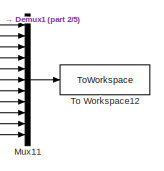
[diagram: root canvas - part 1/5, top center region]
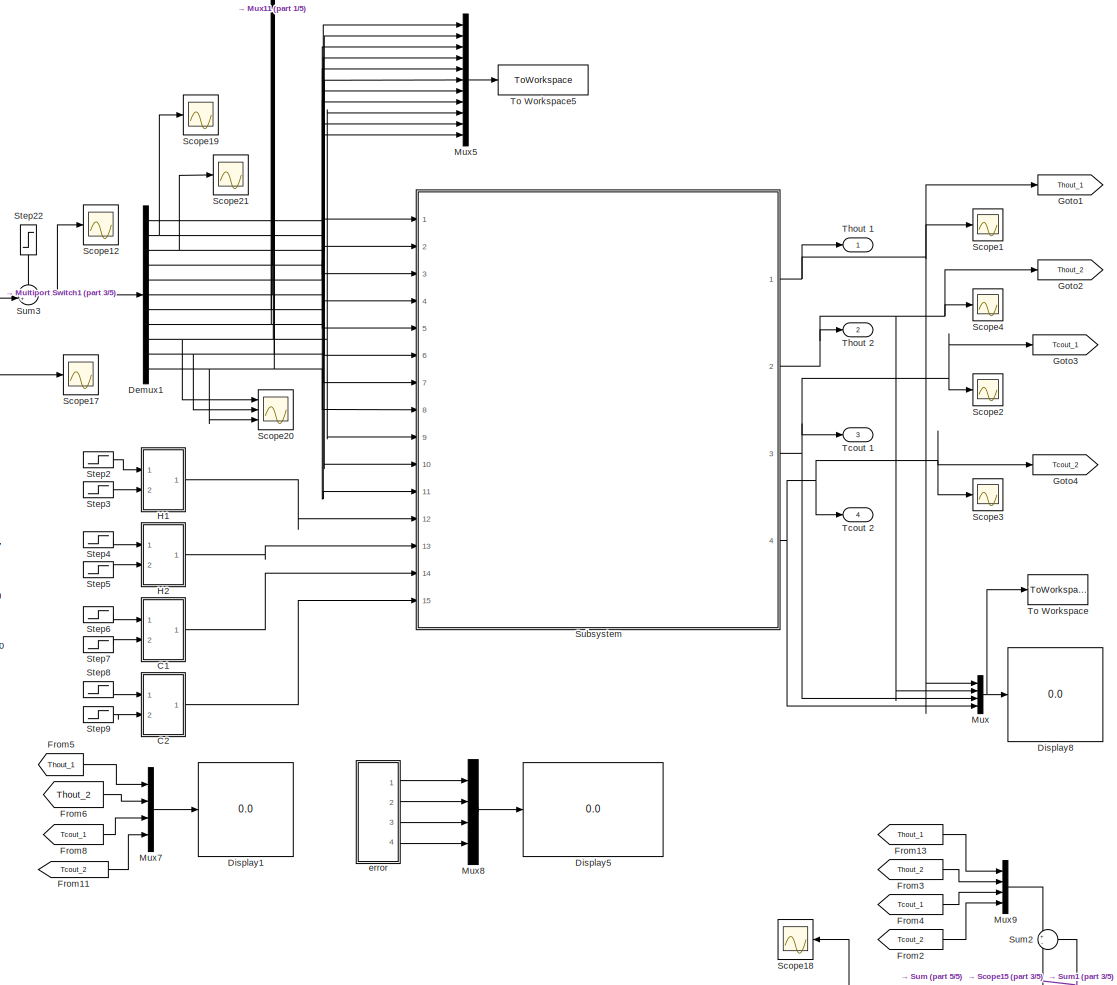
[diagram: root canvas - part 2/5, center side, full height]
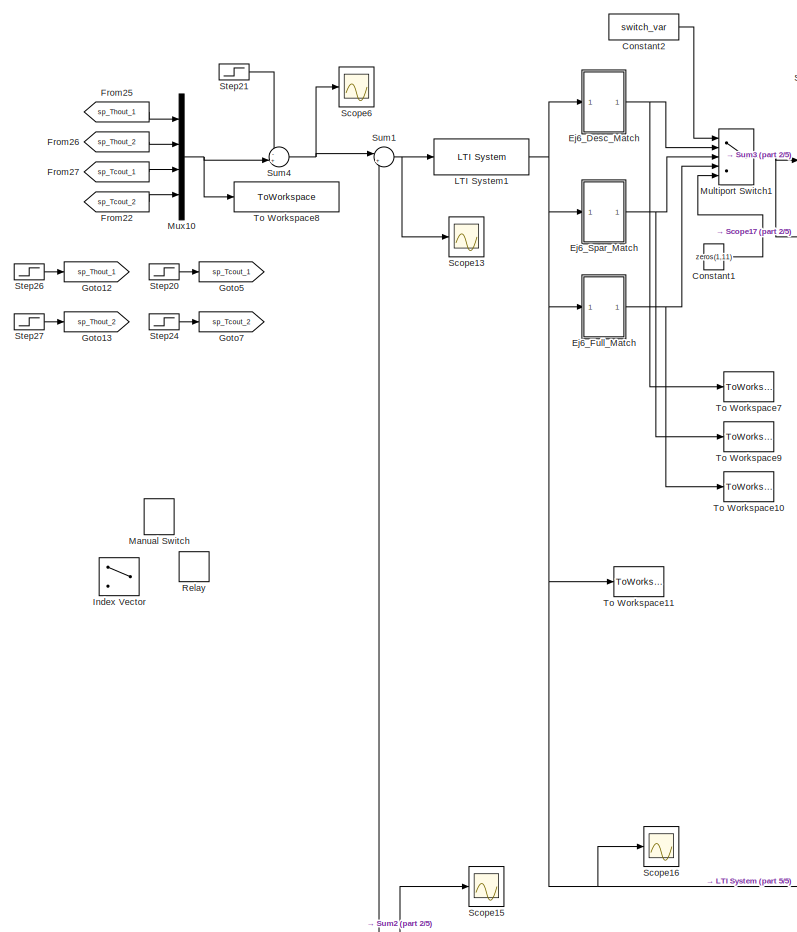
[diagram: root canvas - part 3/5, middle left region]
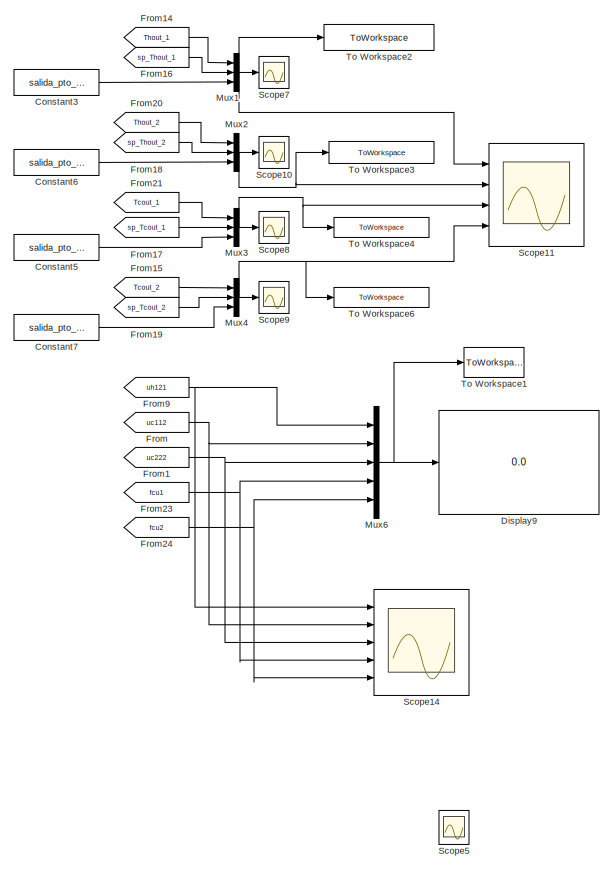
[diagram: root canvas - part 4/5, middle right region]
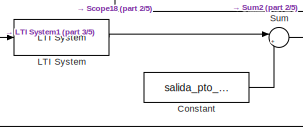
[diagram: root canvas - part 5/5, bottom center region]
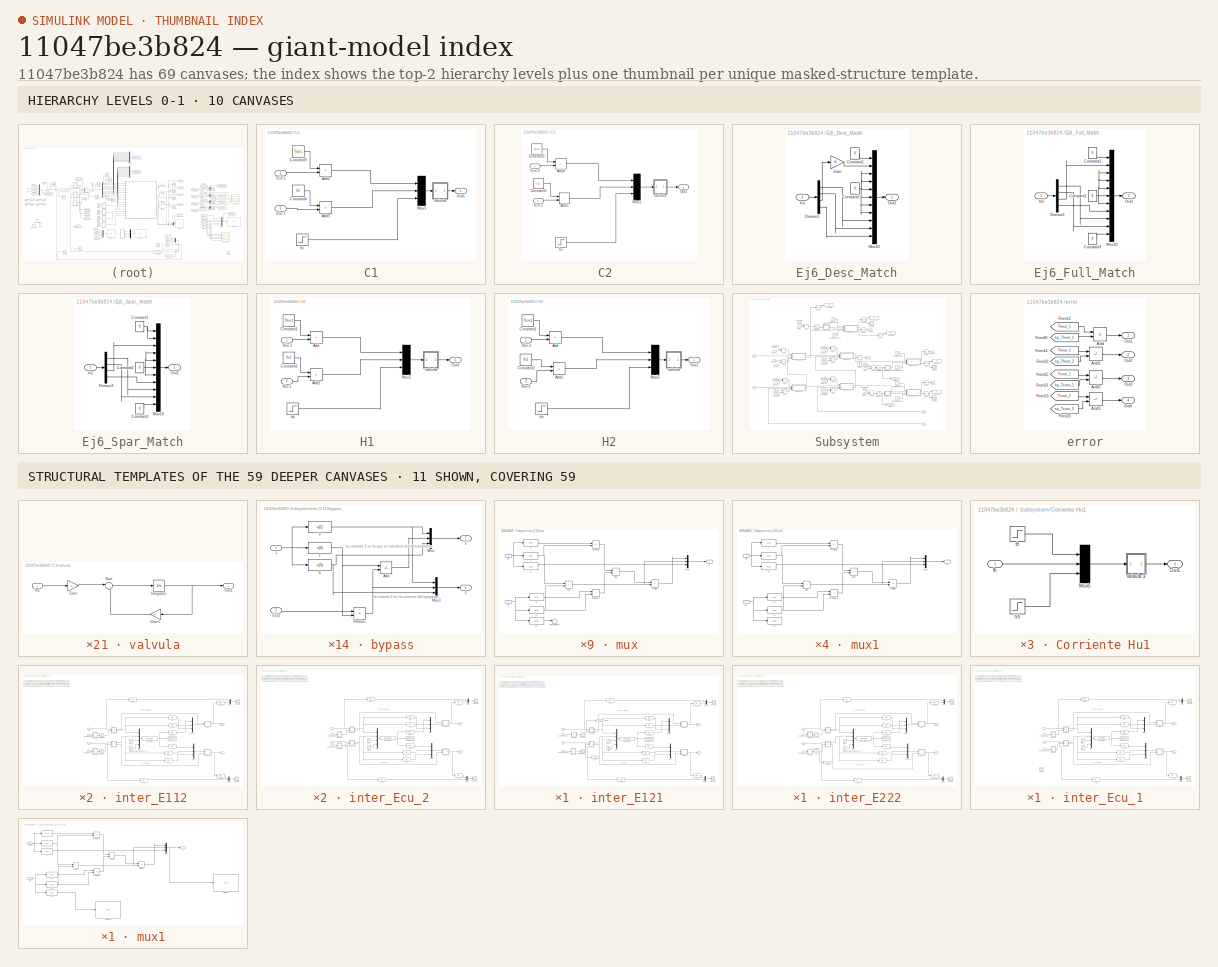
[diagram: thumbnail index - top-2 hierarchy levels (10 canvases) + 11 structural-template representatives of the remaining 59 canvases]
MODEL slx_11047be3b824
KIND model
CONFIG AbsTol = auto
CONFIG EnableMultiTasking = off
CONFIG FixedStep = auto
CONFIG MaxStep = 50
CONFIG MinStep = auto
CONFIG RelTol = 1e-3
CONFIG SampleTimeConstraint = Unconstrained
CONFIG SolverName = ode15s
CONFIG StartTime = 0.0
CONFIG StopTime = sim_time
BLOCK [SubSystem] C1
  Ports = [2, 1]
  RequestExecContextInheritance = off
BLOCK [Sum] C1/Add2
  IconShape = rectangular
  Ports = [2, 1]
BLOCK [Sum] C1/Add3
  IconShape = rectangular
  Ports = [2, 1]
BLOCK [Constant] C1/Constant3
  Value = Tcin1
BLOCK [Constant] C1/Constant4
  Value = fc1
BLOCK [Mux] C1/Mux5
  DisplayOption = bar
  Inputs = 3
  Ports = [3, 1]
BLOCK [Outport] C1/Out1
  VectorParamsAs1DForOutWhenUnconnected = off
BLOCK [Inport] C1/Tcin 1
BLOCK [Inport] C1/fcin 1
  Port = 2
BLOCK [Step] C1/hc
  After = hc1
  Before = hc1
BLOCK [SubSystem] C1/valvula
  Ports = [1, 1]
  RequestExecContextInheritance = off
BLOCK [Gain] C1/valvula/Gain
  Gain = s1
BLOCK [Gain] C1/valvula/Gain1
  Gain = s1
  NameLocation = top
BLOCK [Inport] C1/valvula/In1
BLOCK [Integrator] C1/valvula/Integrator
  InitialCondition = [Tcin1 fc1 hc1]
  Ports = [1, 1]
BLOCK [Outport] C1/valvula/Out1
  VectorParamsAs1DForOutWhenUnconnected = off
BLOCK [Sum] C1/valvula/Sum
  Inputs = |+-
  Ports = [2, 1]
BLOCK [SubSystem] C2 
  Ports = [2, 1]
  RequestExecContextInheritance = off
BLOCK [Sum] C2 /Add4
  IconShape = rectangular
  NameLocation = top
  Ports = [2, 1]
BLOCK [Sum] C2 /Add5
  IconShape = rectangular
  Ports = [2, 1]
BLOCK [Constant] C2 /Constant5
  Value = Tcin2
BLOCK [Constant] C2 /Constant6
  Value = fc2
BLOCK [Mux] C2 /Mux5
  DisplayOption = bar
  Inputs = 3
  Ports = [3, 1]
BLOCK [Outport] C2 /Out1
  VectorParamsAs1DForOutWhenUnconnected = off
BLOCK [Inport] C2 /Tcin 2
BLOCK [Inport] C2 /fcin 2
  Port = 2
BLOCK [Step] C2 /hc
  After = hc2
  Before = hc2
BLOCK [SubSystem] C2 /valvula
  Ports = [1, 1]
  RequestExecContextInheritance = off
BLOCK [Gain] C2 /valvula/Gain
  Gain = s1
BLOCK [Gain] C2 /valvula/Gain1
  Gain = s1
  NameLocation = top
BLOCK [Inport] C2 /valvula/In1
BLOCK [Integrator] C2 /valvula/Integrator
  InitialCondition = [Tcin2 fc2 hc2]
  Ports = [1, 1]
BLOCK [Outport] C2 /valvula/Out1
  VectorParamsAs1DForOutWhenUnconnected = off
BLOCK [Sum] C2 /valvula/Sum
  Inputs = |+-
  Ports = [2, 1]
BLOCK [Constant] Constant
  Value = salida_pto_op
BLOCK [Constant] Constant1
  Value = zeros(1,11)
BLOCK [Constant] Constant2
  Value = switch_var
BLOCK [Constant] Constant3
  Value = salida_pto_op(1)
BLOCK [Constant] Constant5
  Value = salida_pto_op(3)
BLOCK [Constant] Constant6
  Value = salida_pto_op(2)
BLOCK [Constant] Constant7
  Value = salida_pto_op(4)
BLOCK [Demux] Demux1
  Outputs = 11
  Ports = [1, 11]
BLOCK [Display] Display1
  Decimation = 1
  Format = long
  Ports = [1]
BLOCK [Display] Display5
  Decimation = 1
  Format = long
  Ports = [1]
BLOCK [Display] Display8
  Decimation = 1
  Format = long
  Ports = [1]
BLOCK [Display] Display9
  Decimation = 1
  Format = long
  Ports = [1]
BLOCK [SubSystem] Ej6_Desc_Match
  Ports = [1, 1]
  RequestExecContextInheritance = off
BLOCK [Constant] Ej6_Desc_Match/Constant1
  Value = 0
BLOCK [Constant] Ej6_Desc_Match/Constant2
  Value = 0
BLOCK [Demux] Ej6_Desc_Match/Demux3
  Ports = [1, 4]
BLOCK [Gain] Ej6_Desc_Match/Gain
BLOCK [Inport] Ej6_Desc_Match/In1
BLOCK [Mux] Ej6_Desc_Match/Mux10
  DisplayOption = bar
  Inputs = 11
  Ports = [11, 1]
BLOCK [Outport] Ej6_Desc_Match/Out1
BLOCK [SubSystem] Ej6_Full_Match
  Ports = [1, 1]
  RequestExecContextInheritance = off
BLOCK [Constant] Ej6_Full_Match/Constant1
  Value = 0
BLOCK [Constant] Ej6_Full_Match/Constant2
  Value = 0
BLOCK [Constant] Ej6_Full_Match/Constant3
  Value = 0
BLOCK [Demux] Ej6_Full_Match/Demux3
  Ports = [1, 4]
BLOCK [Inport] Ej6_Full_Match/In1
BLOCK [Mux] Ej6_Full_Match/Mux10
  DisplayOption = bar
  Inputs = 11
  Ports = [11, 1]
BLOCK [Outport] Ej6_Full_Match/Out1
BLOCK [SubSystem] Ej6_Spar_Match
  Ports = [1, 1]
  RequestExecContextInheritance = off
BLOCK [Constant] Ej6_Spar_Match/Constant1
  Value = 0
BLOCK [Constant] Ej6_Spar_Match/Constant2
  Value = 0
BLOCK [Constant] Ej6_Spar_Match/Constant3
  Value = 0
BLOCK [Demux] Ej6_Spar_Match/Demux3
  Ports = [1, 4]
BLOCK [Inport] Ej6_Spar_Match/In1
BLOCK [Mux] Ej6_Spar_Match/Mux10
  DisplayOption = bar
  Inputs = 11
  Ports = [11, 1]
BLOCK [Outport] Ej6_Spar_Match/Out1
BLOCK [From] From
  GotoTag = uc112
  TagVisibility = global
BLOCK [From] From1
  GotoTag = uc222
  TagVisibility = global
BLOCK [From] From11
  GotoTag = Tcout_2
  TagVisibility = global
BLOCK [From] From13
  GotoTag = Thout_1
  TagVisibility = global
BLOCK [From] From14
  GotoTag = Thout_1
  TagVisibility = global
BLOCK [From] From15
  GotoTag = Tcout_2
  TagVisibility = global
BLOCK [From] From16
  GotoTag = sp_Thout_1
  TagVisibility = global
BLOCK [From] From17
  GotoTag = sp_Tcout_1
  TagVisibility = global
BLOCK [From] From18
  GotoTag = sp_Thout_2
  TagVisibility = global
BLOCK [From] From19
  GotoTag = sp_Tcout_2
  TagVisibility = global
BLOCK [From] From2
  GotoTag = Tcout_2
  TagVisibility = global
BLOCK [From] From20
  GotoTag = Thout_2
  TagVisibility = global
BLOCK [From] From21
  GotoTag = Tcout_1
  TagVisibility = global
BLOCK [From] From22
  GotoTag = sp_Tcout_2
  TagVisibility = global
BLOCK [From] From23
  GotoTag = fcu1
  TagVisibility = global
BLOCK [From] From24
  GotoTag = fcu2
  TagVisibility = global
BLOCK [From] From25
  GotoTag = sp_Thout_1
  TagVisibility = global
BLOCK [From] From26
  GotoTag = sp_Thout_2
  TagVisibility = global
BLOCK [From] From27
  GotoTag = sp_Tcout_1
  TagVisibility = global
BLOCK [From] From3
  GotoTag = Thout_2
  TagVisibility = global
BLOCK [From] From4
  GotoTag = Tcout_1
  TagVisibility = global
BLOCK [From] From5
  GotoTag = Thout_1
  TagVisibility = global
BLOCK [From] From6
  GotoTag = Thout_2
  TagVisibility = global
BLOCK [From] From8
  GotoTag = Tcout_1
  TagVisibility = global
BLOCK [From] From9
  GotoTag = uh121
  TagVisibility = global
BLOCK [Goto] Goto1
  GotoTag = Thout_1
  TagVisibility = global
BLOCK [Goto] Goto12
  GotoTag = sp_Thout_1
  TagVisibility = global
BLOCK [Goto] Goto13
  GotoTag = sp_Thout_2
  TagVisibility = global
BLOCK [Goto] Goto2
  GotoTag = Thout_2
  TagVisibility = global
BLOCK [Goto] Goto3
  GotoTag = Tcout_1
  TagVisibility = global
BLOCK [Goto] Goto4
  GotoTag = Tcout_2
  TagVisibility = global
BLOCK [Goto] Goto5
  GotoTag = sp_Tcout_1
  TagVisibility = global
BLOCK [Goto] Goto7
  GotoTag = sp_Tcout_2
  TagVisibility = global
BLOCK [SubSystem] H1 
  Ports = [2, 1]
  RequestExecContextInheritance = off
BLOCK [Sum] H1 /Add
  IconShape = rectangular
  Ports = [2, 1]
BLOCK [Sum] H1 /Add1
  IconShape = rectangular
  Ports = [2, 1]
BLOCK [Constant] H1 /Constant1
  Value = Thin1
BLOCK [Constant] H1 /Constant2
  Value = fh1
BLOCK [Mux] H1 /Mux5
  DisplayOption = bar
  Inputs = 3
  Ports = [3, 1]
BLOCK [Outport] H1 /Out1
  VectorParamsAs1DForOutWhenUnconnected = off
BLOCK [Inport] H1 /Thin 1
BLOCK [Inport] H1 /fhin 1
  Port = 2
BLOCK [Step] H1 /hh
  After = hh1
  Before = hh1
BLOCK [SubSystem] H1 /valvula
  Ports = [1, 1]
  RequestExecContextInheritance = off
BLOCK [Gain] H1 /valvula/Gain
  Gain = s1
BLOCK [Gain] H1 /valvula/Gain1
  Gain = s1
  NameLocation = top
BLOCK [Inport] H1 /valvula/In1
BLOCK [Integrator] H1 /valvula/Integrator
  InitialCondition = [Thin1 fh1 hh1]
  Ports = [1, 1]
BLOCK [Outport] H1 /valvula/Out1
  VectorParamsAs1DForOutWhenUnconnected = off
BLOCK [Sum] H1 /valvula/Sum
  Inputs = |+-
  Ports = [2, 1]
BLOCK [SubSystem] H2
  Ports = [2, 1]
  RequestExecContextInheritance = off
BLOCK [Sum] H2/Add
  IconShape = rectangular
  Ports = [2, 1]
BLOCK [Sum] H2/Add1
  IconShape = rectangular
  Ports = [2, 1]
BLOCK [Constant] H2/Constant1
  Value = Thin2
BLOCK [Constant] H2/Constant2
  Value = fh2
BLOCK [Mux] H2/Mux5
  DisplayOption = bar
  Inputs = 3
  Ports = [3, 1]
BLOCK [Outport] H2/Out1
  VectorParamsAs1DForOutWhenUnconnected = off
BLOCK [Inport] H2/Thin 2
BLOCK [Inport] H2/fhin 2
  Port = 2
BLOCK [Step] H2/hh
  After = hh2
  Before = hh2
BLOCK [SubSystem] H2/valvula
  Ports = [1, 1]
  RequestExecContextInheritance = off
BLOCK [Gain] H2/valvula/Gain
  Gain = s1
BLOCK [Gain] H2/valvula/Gain1
  Gain = s1
  NameLocation = top
BLOCK [Inport] H2/valvula/In1
BLOCK [Integrator] H2/valvula/Integrator
  InitialCondition = [Thin2 fh2 hh2]
  Ports = [1, 1]
BLOCK [Outport] H2/valvula/Out1
  VectorParamsAs1DForOutWhenUnconnected = off
BLOCK [Sum] H2/valvula/Sum
  Inputs = |+-
  Ports = [2, 1]
BLOCK [MultiPortSwitch] Index Vector
  DataPortOrder = Zero-based contiguous
  InputSameDT = off
  Inputs = 1
  Ports = [2, 1]
  SaturateOnIntegerOverflow = off
  zeroidx = on
BLOCK [Reference] LTI System  REF=cstblocks/LTI System
  Ports = [1, 1]
  SourceBlock = cstblocks/LTI System
  SourceProductBaseCode = CT
  SourceType = LTI Block
BLOCK [Reference] LTI System1  REF=cstblocks/LTI System
  Ports = [1, 1]
  SourceBlock = cstblocks/LTI System
  SourceProductBaseCode = CT
  SourceType = LTI Block
BLOCK [ManualSwitch] Manual Switch
BLOCK [MultiPortSwitch] Multiport Switch1
  DataPortForDefault = Additional data port
  DataPortOrder = Zero-based contiguous
  DiagnosticForDefault = None
  InputSameDT = off
  Ports = [5, 1]
  SaturateOnIntegerOverflow = off
  zeroidx = on
BLOCK [Mux] Mux
  DisplayOption = bar
  Ports = [4, 1]
BLOCK [Mux] Mux1
  DisplayOption = bar
  Inputs = 3
  Ports = [3, 1]
BLOCK [Mux] Mux10
  DisplayOption = bar
  Ports = [4, 1]
BLOCK [Mux] Mux11
  DisplayOption = bar
  Inputs = 11
  Ports = [11, 1]
BLOCK [Mux] Mux2
  DisplayOption = bar
  Inputs = 3
  Ports = [3, 1]
BLOCK [Mux] Mux3
  DisplayOption = bar
  Inputs = 3
  Ports = [3, 1]
BLOCK [Mux] Mux4
  DisplayOption = bar
  Inputs = 3
  Ports = [3, 1]
BLOCK [Mux] Mux5
  DisplayOption = bar
  Inputs = 11
  Ports = [11, 1]
BLOCK [Mux] Mux6
  DisplayOption = bar
  Inputs = 5
  Ports = [5, 1]
BLOCK [Mux] Mux7
  DisplayOption = bar
  Ports = [4, 1]
BLOCK [Mux] Mux8
  DisplayOption = bar
  Ports = [4, 1]
BLOCK [Mux] Mux9
  DisplayOption = bar
  Ports = [4, 1]
BLOCK [Relay] Relay
BLOCK [Scope] Scope1
  Floating = off
  NumInputPorts = 1
  Ports = [1]
  ScopeSpecificationString = C++SS(StrPVP('Location','[188, 365, 512, 604]'),StrPVP('Open','off'),MxPVP('AxesTitles',54,'struct(''axes1'',''%<SignalLabel>'')'),MxPVP('ScopeGraphics',57,'struct(''FigureColor'',''[0.5 0.5 0.5]'',''AxesColor'',''[0 0 0]'',''AxesTickColor'',''[1 1 1]'',''LineColors'',''[1 1 0;1 0 1;0 1 1;1 0 0;0 1 0;0 0 1]'',''LineStyles'',''-|-|-|-|-|-'',''LineWidths'',''[0.5 0.5 0.5 0.5 0.5 0.5]'',''MarkerStyle...<+240ch>
BLOCK [Scope] Scope10
  Floating = off
  NumInputPorts = 1
  Ports = [1]
  ScopeSpecificationString = Simulink.scopes.TimeScopeBlockCfg('CurrentConfiguration', extmgr.ConfigurationSet(extmgr.Configuration('Core','General UI',true),extmgr.Configuration('Core','Source UI',true),extmgr.Configuration('Sources','WiredSimulink',true,'DataLoggingVariableName','ScopeData6','DataLoggingLimitDataPoints',true,'DataLoggingSaveFormat','Array','DataLoggingDecimation','1','DataLoggingDecimateData',true),extmgr.C...<+899ch>
BLOCK [Scope] Scope11
  Floating = off
  NumInputPorts = 4
  Ports = [4]
  ScopeSpecificationString = Simulink.scopes.TimeScopeBlockCfg('CurrentConfiguration', extmgr.ConfigurationSet(extmgr.Configuration('Core','General UI',true,'FigureColor',[1 1 1]),extmgr.Configuration('Core','Source UI',true),extmgr.Configuration('Sources','WiredSimulink',true,'DataLoggingVariableName','ScopeData7','DataLoggingSaveFormat','Array','DataLoggingDecimation','1','DataLoggingDecimateData',true),extmgr.Configuration...<+4824ch>
BLOCK [Scope] Scope12
  Floating = off
  NumInputPorts = 1
  Ports = [1]
  ScopeSpecificationString = Simulink.scopes.TimeScopeBlockCfg('CurrentConfiguration', extmgr.ConfigurationSet(extmgr.Configuration('Core','General UI',true,'FigureColor',[0 0 0]),extmgr.Configuration('Core','Source UI',true),extmgr.Configuration('Sources','WiredSimulink',true,'DataLoggingVariableName','ScopeData1','DataLoggingSaveFormat','StructureWithTime','DataLoggingLimitDataPoints',true,'DataLoggingDecimation','1','DataL...<+2026ch>
BLOCK [Scope] Scope13
  Floating = off
  NumInputPorts = 1
  Ports = [1]
  ScopeSpecificationString = Simulink.scopes.TimeScopeBlockCfg('CurrentConfiguration', extmgr.ConfigurationSet(extmgr.Configuration('Core','General UI',true,'FigureColor',[0 0 0]),extmgr.Configuration('Core','Source UI',true),extmgr.Configuration('Sources','WiredSimulink',true,'DataLoggingVariableName','ScopeData2','DataLoggingSaveFormat','StructureWithTime','DataLoggingLimitDataPoints',true,'DataLoggingDecimation','1','DataL...<+1964ch>
BLOCK [Scope] Scope14
  Floating = off
  NumInputPorts = 5
  Ports = [5]
  ScopeSpecificationString = Simulink.scopes.TimeScopeBlockCfg('CurrentConfiguration', extmgr.ConfigurationSet(extmgr.Configuration('Core','General UI',true,'FigureColor',[1 1 1]),extmgr.Configuration('Core','Source UI',true),extmgr.Configuration('Sources','WiredSimulink',true,'DataLoggingVariableName','ScopeData5','DataLoggingSaveFormat','Array','DataLoggingDecimation','1','DataLoggingDecimateData',true),extmgr.Configuration...<+6960ch>
BLOCK [Scope] Scope15
  Floating = off
  NumInputPorts = 1
  Ports = [1]
  ScopeSpecificationString = Simulink.scopes.TimeScopeBlockCfg('CurrentConfiguration', extmgr.ConfigurationSet(extmgr.Configuration('Core','General UI',true,'FigureColor',[0 0 0]),extmgr.Configuration('Core','Source UI',true),extmgr.Configuration('Sources','WiredSimulink',true,'DataLoggingVariableName','ScopeData1','DataLoggingSaveFormat','StructureWithTime','DataLoggingLimitDataPoints',true,'DataLoggingDecimation','1','DataL...<+1964ch>
BLOCK [Scope] Scope16
  Floating = off
  NumInputPorts = 1
  Ports = [1]
  ScopeSpecificationString = Simulink.scopes.TimeScopeBlockCfg('CurrentConfiguration', extmgr.ConfigurationSet(extmgr.Configuration('Core','General UI',true,'FigureColor',[0 0 0]),extmgr.Configuration('Core','Source UI',true),extmgr.Configuration('Sources','WiredSimulink',true,'DataLoggingVariableName','ScopeData1','DataLoggingSaveFormat','StructureWithTime','DataLoggingLimitDataPoints',true,'DataLoggingDecimation','1','DataL...<+1998ch>
BLOCK [Scope] Scope17
  Floating = off
  NumInputPorts = 1
  Ports = [1]
  ScopeSpecificationString = Simulink.scopes.TimeScopeBlockCfg('CurrentConfiguration', extmgr.ConfigurationSet(extmgr.Configuration('Core','General UI',true,'FigureColor',[0 0 0]),extmgr.Configuration('Core','Source UI',true),extmgr.Configuration('Sources','WiredSimulink',true,'DataLoggingVariableName','ScopeData2','DataLoggingSaveFormat','StructureWithTime','DataLoggingLimitDataPoints',true,'DataLoggingDecimation','1','DataL...<+2195ch>
BLOCK [Scope] Scope18
  Floating = off
  NameLocation = top
  NumInputPorts = 1
  Ports = [1]
  ScopeSpecificationString = Simulink.scopes.TimeScopeBlockCfg('CurrentConfiguration', extmgr.ConfigurationSet(extmgr.Configuration('Core','General UI',true,'FigureColor',[0 0 0]),extmgr.Configuration('Core','Source UI',true),extmgr.Configuration('Sources','WiredSimulink',true,'DataLoggingVariableName','ScopeData3','DataLoggingSaveFormat','StructureWithTime','DataLoggingLimitDataPoints',true,'DataLoggingDecimation','1','DataL...<+1974ch>
BLOCK [Scope] Scope19
  Floating = off
  NumInputPorts = 1
  Ports = [1]
  ScopeSpecificationString = Simulink.scopes.TimeScopeBlockCfg('CurrentConfiguration', extmgr.ConfigurationSet(extmgr.Configuration('Core','General UI',true,'FigureColor',[0 0 0]),extmgr.Configuration('Core','Source UI',true),extmgr.Configuration('Sources','WiredSimulink',true,'DataLoggingVariableName','ScopeData4','DataLoggingSaveFormat','StructureWithTime','DataLoggingLimitDataPoints',true,'DataLoggingDecimation','1','DataL...<+1935ch>
BLOCK [Scope] Scope2
  Floating = off
  NumInputPorts = 1
  Ports = [1]
  ScopeSpecificationString = C++SS(StrPVP('Location','[188, 365, 512, 604]'),StrPVP('Open','off'),MxPVP('AxesTitles',54,'struct(''axes1'',''%<SignalLabel>'')'),MxPVP('ScopeGraphics',57,'struct(''FigureColor'',''[0.5 0.5 0.5]'',''AxesColor'',''[0 0 0]'',''AxesTickColor'',''[1 1 1]'',''LineColors'',''[1 1 0;1 0 1;0 1 1;1 0 0;0 1 0;0 0 1]'',''LineStyles'',''-|-|-|-|-|-'',''LineWidths'',''[0.5 0.5 0.5 0.5 0.5 0.5]'',''MarkerStyle...<+192ch>  <repeated x3 — deduplicated; at blocks: Scope2, Scope3, Scope4>
BLOCK [Scope] Scope20
  Floating = off
  NumInputPorts = 3
  Ports = [3]
  ScopeSpecificationString = Simulink.scopes.TimeScopeBlockCfg('CurrentConfiguration', extmgr.ConfigurationSet(extmgr.Configuration('Core','General UI',true,'FigureColor',[0 0 0]),extmgr.Configuration('Core','Source UI',true),extmgr.Configuration('Sources','WiredSimulink',true,'DataLoggingVariableName','ScopeData1','DataLoggingSaveFormat','StructureWithTime','DataLoggingLimitDataPoints',true,'DataLoggingDecimation','1','DataL...<+1987ch>
BLOCK [Scope] Scope21
  Floating = off
  NumInputPorts = 1
  Ports = [1]
  ScopeSpecificationString = Simulink.scopes.TimeScopeBlockCfg('CurrentConfiguration', extmgr.ConfigurationSet(extmgr.Configuration('Core','General UI',true,'FigureColor',[0 0 0]),extmgr.Configuration('Core','Source UI',true),extmgr.Configuration('Sources','WiredSimulink',true,'DataLoggingVariableName','ScopeData2','DataLoggingSaveFormat','StructureWithTime','DataLoggingLimitDataPoints',true,'DataLoggingDecimation','1','DataL...<+1937ch>
BLOCK [Scope] Scope3
  Floating = off
  NumInputPorts = 1
  Ports = [1]
BLOCK [Scope] Scope4
  Floating = off
  NumInputPorts = 1
  Ports = [1]
BLOCK [Scope] Scope5
  Floating = off
  NumInputPorts = 1
  Ports = [1]
  ScopeSpecificationString = Simulink.scopes.TimeScopeBlockCfg('CurrentConfiguration', extmgr.ConfigurationSet(extmgr.Configuration('Core','General UI',true),extmgr.Configuration('Core','Source UI',true),extmgr.Configuration('Sources','WiredSimulink',true,'DataLoggingVariableName','ScopeData1','DataLoggingLimitDataPoints',true,'DataLoggingSaveFormat','Array','DataLoggingDecimation','1','DataLoggingDecimateData',true),extmgr.C...<+1709ch>
BLOCK [Scope] Scope6
  Floating = off
  NumInputPorts = 1
  Ports = [1]
  ScopeSpecificationString = Simulink.scopes.TimeScopeBlockCfg('CurrentConfiguration', extmgr.ConfigurationSet(extmgr.Configuration('Core','General UI',true,'FigureColor',[0 0 0]),extmgr.Configuration('Core','Source UI',true),extmgr.Configuration('Sources','WiredSimulink',true,'DataLoggingVariableName','ScopeData1','DataLoggingSaveFormat','StructureWithTime','DataLoggingLimitDataPoints',true,'DataLoggingDecimation','1','DataL...<+1964ch>
BLOCK [Scope] Scope7
  Floating = off
  NumInputPorts = 1
  Ports = [1]
  ScopeSpecificationString = Simulink.scopes.TimeScopeBlockCfg('CurrentConfiguration', extmgr.ConfigurationSet(extmgr.Configuration('Core','General UI',true),extmgr.Configuration('Core','Source UI',true),extmgr.Configuration('Sources','WiredSimulink',true,'DataLoggingVariableName','ScopeData8','DataLoggingLimitDataPoints',true,'DataLoggingSaveFormat','Array','DataLoggingDecimation','1','DataLoggingDecimateData',true),extmgr.C...<+1751ch>
BLOCK [Scope] Scope8
  Floating = off
  NumInputPorts = 1
  Ports = [1]
  ScopeSpecificationString = C++SS(StrPVP('Location','[188, 365, 512, 604]'),StrPVP('Open','off'),MxPVP('AxesTitles',54,'struct(''axes1'',''%<SignalLabel>'')'),StrPVP('ShowLegends','off'),StrPVP('SaveName','ScopeData9'),StrPVP('LimitDataPoints','on'),StrPVP('DataFormat','Array'),StrPVP('Decimation','1'),StrPVP('BlockParamSampleInput','off'))
BLOCK [Scope] Scope9
  Floating = off
  NumInputPorts = 1
  Ports = [1]
  ScopeSpecificationString = C++SS(StrPVP('Location','[188, 365, 512, 604]'),StrPVP('Open','off'),MxPVP('AxesTitles',54,'struct(''axes1'',''%<SignalLabel>'')'),StrPVP('ShowLegends','off'),StrPVP('SaveName','ScopeData11'),StrPVP('LimitDataPoints','on'),StrPVP('DataFormat','Array'),StrPVP('Decimation','1'),StrPVP('BlockParamSampleInput','off'))
BLOCK [Step] Step2
  After = d1_end
  Before = d1_in
  Time = t_step
BLOCK [Step] Step20
  After = 210+273+delta_sp_3
  Before = 210+273
  Time = t_sp_change
BLOCK [Step] Step21
  After = salida_pto_op'
  Before = setpoints'
  Time = -1
BLOCK [Step] Step22
  After = initials
  Before = initials
  NameLocation = left
  Time = 0
BLOCK [Step] Step24
  After = 210+273+delta_sp_4
  Before = 210+273
  Time = t_sp_change
BLOCK [Step] Step26
  After = 160+273+delta_sp_1
  Before = 160+273
  Time = t_sp_change
BLOCK [Step] Step27
  After = 60+273+delta_sp_2
  Before = 60+273
  Time = t_sp_change
BLOCK [Step] Step3
  After = d2_end
  Before = d2_in
  Time = t_step
BLOCK [Step] Step4
  After = d3_end
  Before = d3_in
  Time = t_step
BLOCK [Step] Step5
  After = d4_end
  Before = d4_in
  Time = t_step
BLOCK [Step] Step6
  After = d5_end
  Before = d5_in
  Time = t_step
BLOCK [Step] Step7
  After = d6_end
  Before = d6_in
  Time = t_step
BLOCK [Step] Step8
  After = d7_end
  Before = d7_in
  Time = t_step
BLOCK [Step] Step9
  After = d8_end
  Before = d8_in
  Time = t_step
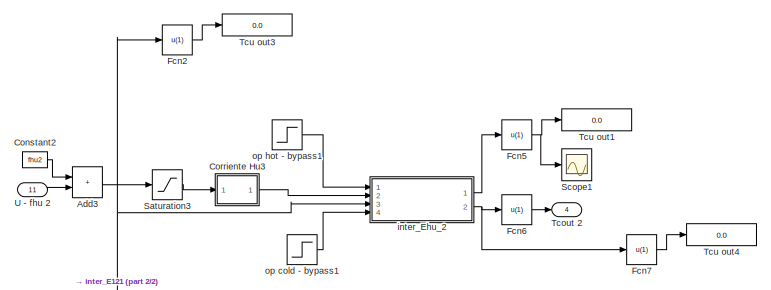
[diagram: Subsystem - part 1/2, top center region]
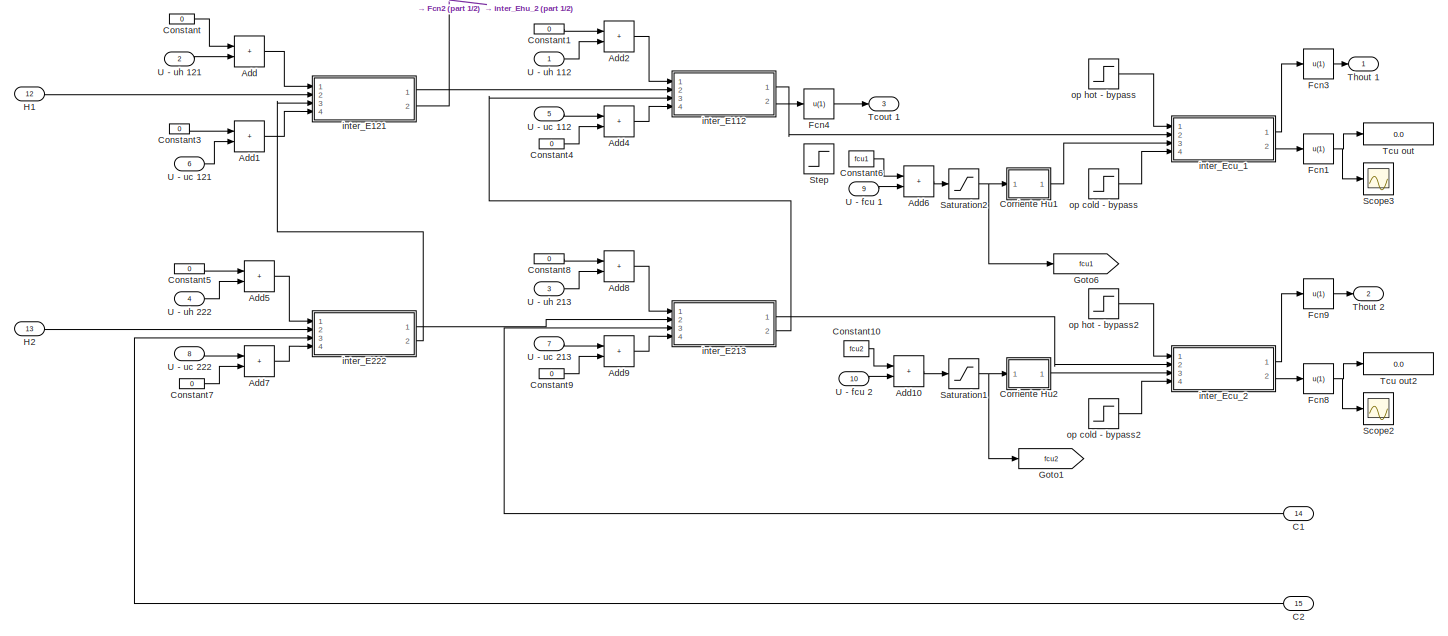
[diagram: Subsystem - part 2/2, full width, middle band]
BLOCK [SubSystem] Subsystem
  Ports = [15, 4]
  RequestExecContextInheritance = off
BLOCK [Sum] Subsystem/Add
  IconShape = rectangular
  Ports = [2, 1]
BLOCK [Sum] Subsystem/Add1
  IconShape = rectangular
  Ports = [2, 1]
BLOCK [Sum] Subsystem/Add10
  IconShape = rectangular
  Ports = [2, 1]
BLOCK [Sum] Subsystem/Add2
  IconShape = rectangular
  Ports = [2, 1]
BLOCK [Sum] Subsystem/Add3
  IconShape = rectangular
  Ports = [2, 1]
BLOCK [Sum] Subsystem/Add4
  IconShape = rectangular
  Ports = [2, 1]
BLOCK [Sum] Subsystem/Add5
  IconShape = rectangular
  Ports = [2, 1]
BLOCK [Sum] Subsystem/Add6
  IconShape = rectangular
  Ports = [2, 1]
BLOCK [Sum] Subsystem/Add7
  IconShape = rectangular
  Ports = [2, 1]
BLOCK [Sum] Subsystem/Add8
  IconShape = rectangular
  Ports = [2, 1]
BLOCK [Sum] Subsystem/Add9
  IconShape = rectangular
  Ports = [2, 1]
BLOCK [Inport] Subsystem/C1
  Port = 14
BLOCK [Inport] Subsystem/C2
  Port = 15
BLOCK [Constant] Subsystem/Constant
  Value = 0
BLOCK [Constant] Subsystem/Constant1
  Value = 0
BLOCK [Constant] Subsystem/Constant10
  Value = fcu2
BLOCK [Constant] Subsystem/Constant2
  Value = fhu2
BLOCK [Constant] Subsystem/Constant3
  Value = 0
BLOCK [Constant] Subsystem/Constant4
  Value = 0
BLOCK [Constant] Subsystem/Constant5
  Value = 0
BLOCK [Constant] Subsystem/Constant6
  Value = fcu1
BLOCK [Constant] Subsystem/Constant7
  Value = 0
BLOCK [Constant] Subsystem/Constant8
  Value = 0
BLOCK [Constant] Subsystem/Constant9
  Value = 0
BLOCK [SubSystem] Subsystem/Corriente Hu1
  Ports = [1, 1]
  RequestExecContextInheritance = off
BLOCK [Mux] Subsystem/Corriente Hu1/Mux5
  DisplayOption = bar
  Inputs = 3
  Ports = [3, 1]
BLOCK [Outport] Subsystem/Corriente Hu1/Out1
  VectorParamsAs1DForOutWhenUnconnected = off
BLOCK [Inport] Subsystem/Corriente Hu1/fh
BLOCK [Step] Subsystem/Corriente Hu1/hh
  Before = 1
  SampleTime = 0
BLOCK [Step] Subsystem/Corriente Hu1/th
  After = 15+273
  Before = 15+273
  SampleTime = 0
  Time = 2
BLOCK [SubSystem] Subsystem/Corriente Hu1/valvula 3
  Ports = [1, 1]
  RequestExecContextInheritance = off
BLOCK [Gain] Subsystem/Corriente Hu1/valvula 3/Gain
  Gain = s1
BLOCK [Gain] Subsystem/Corriente Hu1/valvula 3/Gain1
  Gain = s1
  NameLocation = top
BLOCK [Inport] Subsystem/Corriente Hu1/valvula 3/In1
BLOCK [Integrator] Subsystem/Corriente Hu1/valvula 3/Integrator
  InitialCondition = [Tcuin fcu1 hcu]
  Ports = [1, 1]
BLOCK [Outport] Subsystem/Corriente Hu1/valvula 3/Out1
  VectorParamsAs1DForOutWhenUnconnected = off
BLOCK [Sum] Subsystem/Corriente Hu1/valvula 3/Sum
  Inputs = |+-
  Ports = [2, 1]
BLOCK [SubSystem] Subsystem/Corriente Hu2
  Ports = [1, 1]
  RequestExecContextInheritance = off
BLOCK [Mux] Subsystem/Corriente Hu2/Mux5
  DisplayOption = bar
  Inputs = 3
  Ports = [3, 1]
BLOCK [Outport] Subsystem/Corriente Hu2/Out1
  VectorParamsAs1DForOutWhenUnconnected = off
BLOCK [Inport] Subsystem/Corriente Hu2/fh
BLOCK [Step] Subsystem/Corriente Hu2/hh
  Before = 1
  SampleTime = 0
BLOCK [Step] Subsystem/Corriente Hu2/th
  After = 15+273
  Before = 15+273
  SampleTime = 0
  Time = 2
BLOCK [SubSystem] Subsystem/Corriente Hu2/valvula 3
  Ports = [1, 1]
  RequestExecContextInheritance = off
BLOCK [Gain] Subsystem/Corriente Hu2/valvula 3/Gain
  Gain = s1
BLOCK [Gain] Subsystem/Corriente Hu2/valvula 3/Gain1
  Gain = s1
  NameLocation = top
BLOCK [Inport] Subsystem/Corriente Hu2/valvula 3/In1
BLOCK [Integrator] Subsystem/Corriente Hu2/valvula 3/Integrator
  InitialCondition = [Tcuin fcu2 hcu]
  Ports = [1, 1]
BLOCK [Outport] Subsystem/Corriente Hu2/valvula 3/Out1
  VectorParamsAs1DForOutWhenUnconnected = off
BLOCK [Sum] Subsystem/Corriente Hu2/valvula 3/Sum
  Inputs = |+-
  Ports = [2, 1]
BLOCK [SubSystem] Subsystem/Corriente Hu3
  Ports = [1, 1]
  RequestExecContextInheritance = off
BLOCK [Mux] Subsystem/Corriente Hu3/Mux5
  DisplayOption = bar
  Inputs = 3
  Ports = [3, 1]
BLOCK [Outport] Subsystem/Corriente Hu3/Out1
  VectorParamsAs1DForOutWhenUnconnected = off
BLOCK [Inport] Subsystem/Corriente Hu3/fh
BLOCK [Step] Subsystem/Corriente Hu3/hh
  Before = 1
  SampleTime = 0
BLOCK [Step] Subsystem/Corriente Hu3/th
  After = 250+273
  Before = 250+273
  SampleTime = 0
  Time = 2
BLOCK [SubSystem] Subsystem/Corriente Hu3/valvula 3
  Ports = [1, 1]
  RequestExecContextInheritance = off
BLOCK [Gain] Subsystem/Corriente Hu3/valvula 3/Gain
  Gain = s1
BLOCK [Gain] Subsystem/Corriente Hu3/valvula 3/Gain1
  Gain = s1
  NameLocation = top
BLOCK [Inport] Subsystem/Corriente Hu3/valvula 3/In1
BLOCK [Integrator] Subsystem/Corriente Hu3/valvula 3/Integrator
  InitialCondition = [Thuin fhu2 hhu]
  Ports = [1, 1]
BLOCK [Outport] Subsystem/Corriente Hu3/valvula 3/Out1
  VectorParamsAs1DForOutWhenUnconnected = off
BLOCK [Sum] Subsystem/Corriente Hu3/valvula 3/Sum
  Inputs = |+-
  Ports = [2, 1]
BLOCK [Fcn] Subsystem/Fcn1
  Expr = u(1)
BLOCK [Fcn] Subsystem/Fcn2
  Expr = u(1)
BLOCK [Fcn] Subsystem/Fcn3
  Expr = u(1)
BLOCK [Fcn] Subsystem/Fcn4
  Expr = u(1)
BLOCK [Fcn] Subsystem/Fcn5
  Expr = u(1)
BLOCK [Fcn] Subsystem/Fcn6
  Expr = u(1)
BLOCK [Fcn] Subsystem/Fcn7
  Expr = u(1)
BLOCK [Fcn] Subsystem/Fcn8
  Expr = u(1)
BLOCK [Fcn] Subsystem/Fcn9
  Expr = u(1)
BLOCK [Goto] Subsystem/Goto1
  GotoTag = fcu2
  TagVisibility = global
BLOCK [Goto] Subsystem/Goto6
  GotoTag = fcu1
  TagVisibility = global
BLOCK [Inport] Subsystem/H1
  Port = 12
BLOCK [Inport] Subsystem/H2
  Port = 13
BLOCK [Saturate] Subsystem/Saturation1
  LowerLimit = 0
  UpperLimit = 1e9
BLOCK [Saturate] Subsystem/Saturation2
  LowerLimit = 0
  UpperLimit = 1e9
BLOCK [Saturate] Subsystem/Saturation3
  LowerLimit = 0
  UpperLimit = 1e9
BLOCK [Scope] Subsystem/Scope1
  Floating = off
  NumInputPorts = 1
  Ports = [1]
  ScopeSpecificationString = C++SS(StrPVP('Location','[188, 365, 512, 604]'),StrPVP('Open','off'),MxPVP('AxesTitles',54,'struct(''axes1'',''%<SignalLabel>'')'),StrPVP('ShowLegends','off'),StrPVP('SaveName','ScopeData1'),StrPVP('LimitDataPoints','on'),StrPVP('DataFormat','Array'),StrPVP('Decimation','1'),StrPVP('BlockParamSampleInput','off'))
BLOCK [Scope] Subsystem/Scope2
  Floating = off
  NumInputPorts = 1
  Ports = [1]
  ScopeSpecificationString = C++SS(StrPVP('Location','[188, 365, 512, 604]'),StrPVP('Open','off'),MxPVP('AxesTitles',54,'struct(''axes1'',''%<SignalLabel>'')'),MxPVP('ScopeGraphics',57,'struct(''FigureColor'',''[0.5 0.5 0.5]'',''AxesColor'',''[0 0 0]'',''AxesTickColor'',''[1 1 1]'',''LineColors'',''[1 1 0;1 0 1;0 1 1;1 0 0;0 1 0;0 0 1]'',''LineStyles'',''-|-|-|-|-|-'',''LineWidths'',''[0.5 0.5 0.5 0.5 0.5 0.5]'',''MarkerStyle...<+224ch>
BLOCK [Scope] Subsystem/Scope3
  Floating = off
  NumInputPorts = 1
  Ports = [1]
  ScopeSpecificationString = C++SS(StrPVP('Location','[188, 365, 512, 604]'),StrPVP('Open','off'),MxPVP('AxesTitles',54,'struct(''axes1'',''%<SignalLabel>'')'),StrPVP('ShowLegends','off'),StrPVP('LimitDataPoints','on'),StrPVP('DataFormat','Array'),StrPVP('Decimation','1'),StrPVP('BlockParamSampleInput','off'))  <repeated x15 — deduplicated; at blocks: Scope3, Scope1, Scope8>
BLOCK [Step] Subsystem/Step
  After = fcu1+30
  Before = fcu1
  Commented = on
  SampleTime = 0
  Time = 2000
BLOCK [Outport] Subsystem/Tcout 1
  Port = 3
  VectorParamsAs1DForOutWhenUnconnected = off
BLOCK [Outport] Subsystem/Tcout 2
  Port = 4
  VectorParamsAs1DForOutWhenUnconnected = off
BLOCK [Display] Subsystem/Tcu out
  Decimation = 1
  NameLocation = top
  Ports = [1]
BLOCK [Display] Subsystem/Tcu out1
  Decimation = 1
  NameLocation = top
  Ports = [1]
BLOCK [Display] Subsystem/Tcu out2
  Decimation = 1
  NameLocation = top
  Ports = [1]
BLOCK [Display] Subsystem/Tcu out3
  Decimation = 1
  NameLocation = top
  Ports = [1]
BLOCK [Display] Subsystem/Tcu out4
  Decimation = 1
  NameLocation = top
  Ports = [1]
BLOCK [Outport] Subsystem/Thout 1
  VectorParamsAs1DForOutWhenUnconnected = off
BLOCK [Outport] Subsystem/Thout 2
  Port = 2
  VectorParamsAs1DForOutWhenUnconnected = off
BLOCK [Inport] Subsystem/U - fcu 1
  Port = 9
BLOCK [Inport] Subsystem/U - fcu 2
  Port = 10
BLOCK [Inport] Subsystem/U - fhu 2
  Port = 11
BLOCK [Inport] Subsystem/U - uc 112
  Port = 5
BLOCK [Inport] Subsystem/U - uc 121
  Port = 6
BLOCK [Inport] Subsystem/U - uc 213
  Port = 7
BLOCK [Inport] Subsystem/U - uc 222
  Port = 8
BLOCK [Inport] Subsystem/U - uh 112
BLOCK [Inport] Subsystem/U - uh 121
  Port = 2
BLOCK [Inport] Subsystem/U - uh 213
  Port = 3
BLOCK [Inport] Subsystem/U - uh 222
  Port = 4
BLOCK [SubSystem] Subsystem/inter_E112
  Ports = [4, 2]
  RequestExecContextInheritance = off
BLOCK [Step] Subsystem/inter_E112/Area
  After = aE112
  Before = aE112
  SampleTime = 0
  Time = 8
BLOCK [Inport] Subsystem/inter_E112/C in
  Port = 3
BLOCK [Outport] Subsystem/inter_E112/C out
  Port = 2
  VectorParamsAs1DForOutWhenUnconnected = off
BLOCK [Fcn] Subsystem/inter_E112/Fc
  Expr = u(2)
BLOCK [Fcn] Subsystem/inter_E112/Fh
  Expr = u(2)
BLOCK [Inport] Subsystem/inter_E112/H In
  Port = 2
BLOCK [Outport] Subsystem/inter_E112/H out
  VectorParamsAs1DForOutWhenUnconnected = off
BLOCK [Mux] Subsystem/inter_E112/Mux
  DisplayOption = bar
  Ports = [4, 1]
BLOCK [Mux] Subsystem/inter_E112/Mux1
  DisplayOption = bar
  Inputs = 3
  Ports = [3, 1]
BLOCK [Mux] Subsystem/inter_E112/Mux2
  DisplayOption = bar
  Inputs = 3
  Ports = [3, 1]
BLOCK [Mux] Subsystem/inter_E112/Mux3
  DisplayOption = bar
  Inputs = 2
  Ports = [2, 1]
BLOCK [Mux] Subsystem/inter_E112/Mux6
  DisplayOption = bar
  Inputs = 2
  Ports = [2, 1]
BLOCK [S-Function] Subsystem/inter_E112/S-Function2
  EnableBusSupport = off
  FunctionName = Int_er
  Parameters = 10 528.5 433 112 est
  Ports = [1, 1]
  SFcnIsStateOwnerBlock = off
  SFunctionDeploymentMode = off
BLOCK [Saturate] Subsystem/inter_E112/Saturation1
  LowerLimit = 0
  UpperLimit = 1
BLOCK [Saturate] Subsystem/inter_E112/Saturation2
  LowerLimit = 0
  UpperLimit = 1
BLOCK [Scope] Subsystem/inter_E112/Scope1
  Floating = off
  NumInputPorts = 1
  Ports = [1]
BLOCK [Scope] Subsystem/inter_E112/Scope8
  Floating = off
  NumInputPorts = 1
  Ports = [1]
BLOCK [Fcn] Subsystem/inter_E112/Tcin1
  Expr = u(1)
BLOCK [Fcn] Subsystem/inter_E112/Tcin2
  Expr = u(1)
BLOCK [Fcn] Subsystem/inter_E112/Tcout
  Expr = u(11)
BLOCK [Fcn] Subsystem/inter_E112/Tcout1
  Expr = u(1)
BLOCK [Fcn] Subsystem/inter_E112/Tcout2
  Expr = u(1)
BLOCK [Fcn] Subsystem/inter_E112/Thout
  Expr = u(10)
BLOCK [ToWorkspace] Subsystem/inter_E112/To Workspace
  MaxDataPoints = inf
  Ports = [1]
  SampleTime = -1
  VariableName = simout_int_E2
BLOCK [SubSystem] Subsystem/inter_E112/bypass
  Ports = [2, 2]
  RequestExecContextInheritance = off
BLOCK [Outport] Subsystem/inter_E112/bypass/ 1
  VectorParamsAs1DForOutWhenUnconnected = off
BLOCK [Outport] Subsystem/inter_E112/bypass/ 2
  Port = 2
  VectorParamsAs1DForOutWhenUnconnected = off
BLOCK [Inport] Subsystem/inter_E112/bypass/1
BLOCK [Sum] Subsystem/inter_E112/bypass/Add
  IconShape = rectangular
  Inputs = +-
  Ports = [2, 1]
BLOCK [Mux] Subsystem/inter_E112/bypass/Mux
  DisplayOption = bar
  Inputs = 3
  Ports = [3, 1]
BLOCK [Mux] Subsystem/inter_E112/bypass/Mux1
  DisplayOption = bar
  Inputs = 3
  Ports = [3, 1]
BLOCK [Product] Subsystem/inter_E112/bypass/Product
  Ports = [2, 1]
BLOCK [Fcn] Subsystem/inter_E112/bypass/T
  Expr = u(1)
BLOCK [Fcn] Subsystem/inter_E112/bypass/f
  Expr = u(2)
BLOCK [Fcn] Subsystem/inter_E112/bypass/h
  Expr = u(3)
BLOCK [Inport] Subsystem/inter_E112/bypass/u122
  Port = 2
BLOCK [SubSystem] Subsystem/inter_E112/bypass1
  Ports = [2, 2]
  RequestExecContextInheritance = off
BLOCK [Outport] Subsystem/inter_E112/bypass1/ 1
  VectorParamsAs1DForOutWhenUnconnected = off
BLOCK [Outport] Subsystem/inter_E112/bypass1/ 2
  Port = 2
  VectorParamsAs1DForOutWhenUnconnected = off
BLOCK [Inport] Subsystem/inter_E112/bypass1/1
BLOCK [Sum] Subsystem/inter_E112/bypass1/Add
  IconShape = rectangular
  Inputs = +-
  Ports = [2, 1]
BLOCK [Mux] Subsystem/inter_E112/bypass1/Mux
  DisplayOption = bar
  Inputs = 3
  Ports = [3, 1]
BLOCK [Mux] Subsystem/inter_E112/bypass1/Mux1
  DisplayOption = bar
  Inputs = 3
  Ports = [3, 1]
BLOCK [Product] Subsystem/inter_E112/bypass1/Product
  Ports = [2, 1]
BLOCK [Fcn] Subsystem/inter_E112/bypass1/T
  Expr = u(1)
BLOCK [Fcn] Subsystem/inter_E112/bypass1/f
  Expr = u(2)
BLOCK [Fcn] Subsystem/inter_E112/bypass1/h
  Expr = u(3)
BLOCK [Inport] Subsystem/inter_E112/bypass1/u122
  Port = 2
BLOCK [Step] Subsystem/inter_E112/fac
  After = 0
  SampleTime = 0
BLOCK [Fcn] Subsystem/inter_E112/hc
  Expr = u(3)
BLOCK [Fcn] Subsystem/inter_E112/hh
  Expr = u(3)
BLOCK [SubSystem] Subsystem/inter_E112/mux
  Ports = [2, 1]
  RequestExecContextInheritance = off
BLOCK [Sum] Subsystem/inter_E112/mux/Add
  IconShape = rectangular
  Ports = [2, 1]
BLOCK [Sum] Subsystem/inter_E112/mux/Add1
  IconShape = rectangular
  Ports = [2, 1]
BLOCK [Product] Subsystem/inter_E112/mux/Divide
  Inputs = */
  Ports = [2, 1]
BLOCK [Outport] Subsystem/inter_E112/mux/F 
  VectorParamsAs1DForOutWhenUnconnected = off
BLOCK [Inport] Subsystem/inter_E112/mux/F1
BLOCK [Inport] Subsystem/inter_E112/mux/F2
  Port = 2
BLOCK [Mux] Subsystem/inter_E112/mux/Mux
  DisplayOption = bar
  Inputs = 3
  Ports = [3, 1]
BLOCK [Product] Subsystem/inter_E112/mux/Product
  Ports = [2, 1]
BLOCK [Product] Subsystem/inter_E112/mux/Product1
  Ports = [2, 1]
BLOCK [Fcn] Subsystem/inter_E112/mux/T
  Expr = u(1)
BLOCK [Fcn] Subsystem/inter_E112/mux/T1
  Expr = u(1)
BLOCK [Terminator] Subsystem/inter_E112/mux/Terminator
BLOCK [Fcn] Subsystem/inter_E112/mux/f
  Expr = u(2)
BLOCK [Fcn] Subsystem/inter_E112/mux/f1
  Expr = u(2)
BLOCK [Fcn] Subsystem/inter_E112/mux/h
  Expr = u(3)
BLOCK [Fcn] Subsystem/inter_E112/mux/h1
  Expr = u(3)
BLOCK [SubSystem] Subsystem/inter_E112/mux1
  Ports = [2, 1]
  RequestExecContextInheritance = off
BLOCK [Sum] Subsystem/inter_E112/mux1/Add
  IconShape = rectangular
  Ports = [2, 1]
BLOCK [Sum] Subsystem/inter_E112/mux1/Add1
  IconShape = rectangular
  Ports = [2, 1]
BLOCK [Product] Subsystem/inter_E112/mux1/Divide
  Inputs = */
  Ports = [2, 1]
BLOCK [Outport] Subsystem/inter_E112/mux1/F 
  VectorParamsAs1DForOutWhenUnconnected = off
BLOCK [Inport] Subsystem/inter_E112/mux1/F1
BLOCK [Inport] Subsystem/inter_E112/mux1/F2
  Port = 2
BLOCK [Mux] Subsystem/inter_E112/mux1/Mux
  DisplayOption = bar
  Inputs = 3
  Ports = [3, 1]
BLOCK [Product] Subsystem/inter_E112/mux1/Product
  Ports = [2, 1]
BLOCK [Product] Subsystem/inter_E112/mux1/Product1
  Ports = [2, 1]
BLOCK [Fcn] Subsystem/inter_E112/mux1/T
  Expr = u(1)
BLOCK [Fcn] Subsystem/inter_E112/mux1/T1
  Expr = u(1)
BLOCK [Terminator] Subsystem/inter_E112/mux1/Terminator
BLOCK [Fcn] Subsystem/inter_E112/mux1/f
  Expr = u(2)
BLOCK [Fcn] Subsystem/inter_E112/mux1/f1
  Expr = u(2)
BLOCK [Fcn] Subsystem/inter_E112/mux1/h
  Expr = u(3)
BLOCK [Fcn] Subsystem/inter_E112/mux1/h1
  Expr = u(3)
BLOCK [Inport] Subsystem/inter_E112/op cold - bypass 
  Port = 4
BLOCK [Inport] Subsystem/inter_E112/op hot - bypass 
BLOCK [SubSystem] Subsystem/inter_E112/valvula 1
  Ports = [1, 1]
  RequestExecContextInheritance = off
BLOCK [Gain] Subsystem/inter_E112/valvula 1/Gain
  Gain = s1
BLOCK [Gain] Subsystem/inter_E112/valvula 1/Gain1
  Gain = s1
  NameLocation = top
BLOCK [Inport] Subsystem/inter_E112/valvula 1/In1
BLOCK [Integrator] Subsystem/inter_E112/valvula 1/Integrator
  Ports = [1, 1]
BLOCK [Outport] Subsystem/inter_E112/valvula 1/Out1
  VectorParamsAs1DForOutWhenUnconnected = off
BLOCK [Sum] Subsystem/inter_E112/valvula 1/Sum
  Inputs = |+-
  Ports = [2, 1]
BLOCK [SubSystem] Subsystem/inter_E112/valvula 3
  Ports = [1, 1]
  RequestExecContextInheritance = off
BLOCK [Gain] Subsystem/inter_E112/valvula 3/Gain
  Gain = s1
BLOCK [Gain] Subsystem/inter_E112/valvula 3/Gain1
  Gain = s1
  NameLocation = top
BLOCK [Inport] Subsystem/inter_E112/valvula 3/In1
BLOCK [Integrator] Subsystem/inter_E112/valvula 3/Integrator
  Ports = [1, 1]
BLOCK [Outport] Subsystem/inter_E112/valvula 3/Out1
  VectorParamsAs1DForOutWhenUnconnected = off
BLOCK [Sum] Subsystem/inter_E112/valvula 3/Sum
  Inputs = |+-
  Ports = [2, 1]
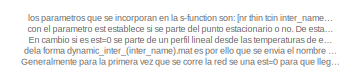
[diagram: Subsystem/inter_E121 - part 1/2, top left region]
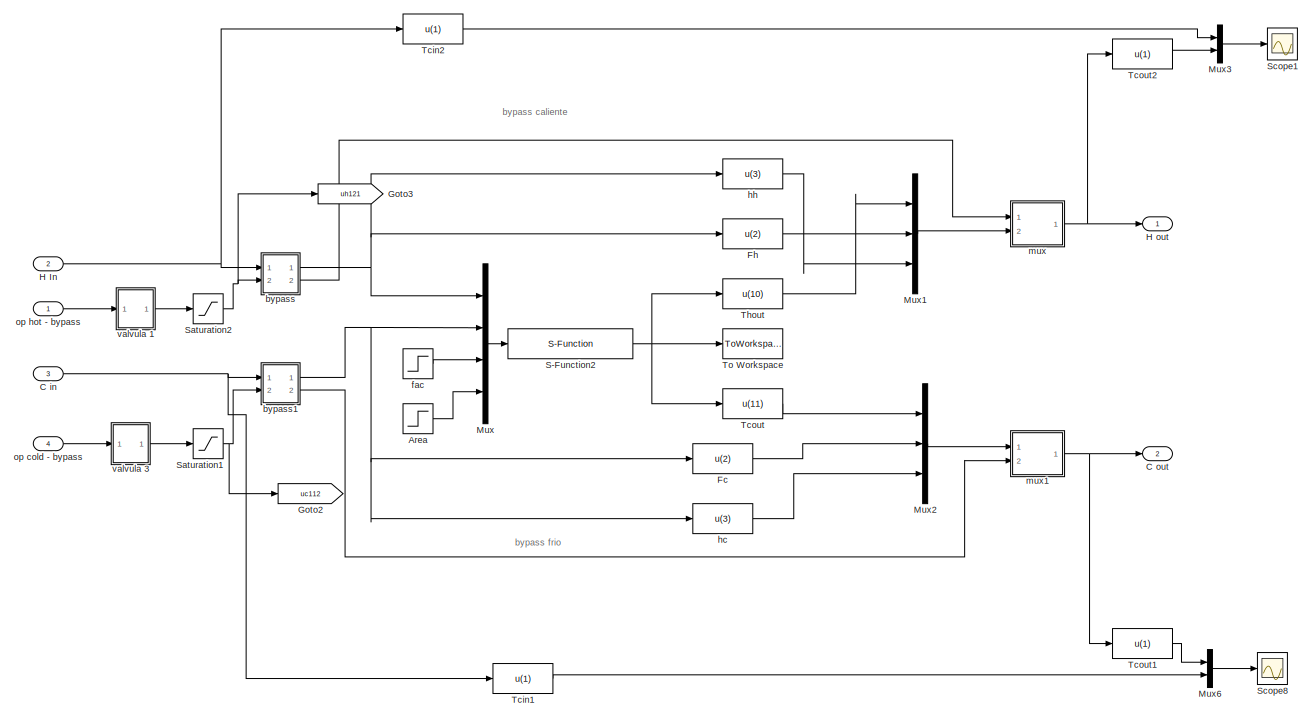
[diagram: Subsystem/inter_E121 - part 2/2, most of the canvas]
BLOCK [SubSystem] Subsystem/inter_E121
  Ports = [4, 2]
  RequestExecContextInheritance = off
BLOCK [Step] Subsystem/inter_E121/Area
  After = aE121
  Before = aE121
  SampleTime = 0
  Time = 0
BLOCK [Inport] Subsystem/inter_E121/C in
  Port = 3
BLOCK [Outport] Subsystem/inter_E121/C out
  Port = 2
  VectorParamsAs1DForOutWhenUnconnected = off
BLOCK [Fcn] Subsystem/inter_E121/Fc
  Expr = u(2)
BLOCK [Fcn] Subsystem/inter_E121/Fh
  Expr = u(2)
BLOCK [Goto] Subsystem/inter_E121/Goto2
  GotoTag = uc112
  TagVisibility = global
BLOCK [Goto] Subsystem/inter_E121/Goto3
  GotoTag = uh121
  TagVisibility = global
BLOCK [Inport] Subsystem/inter_E121/H In
  Port = 2
BLOCK [Outport] Subsystem/inter_E121/H out
  VectorParamsAs1DForOutWhenUnconnected = off
BLOCK [Mux] Subsystem/inter_E121/Mux
  DisplayOption = bar
  Ports = [4, 1]
BLOCK [Mux] Subsystem/inter_E121/Mux1
  DisplayOption = bar
  Inputs = 3
  Ports = [3, 1]
BLOCK [Mux] Subsystem/inter_E121/Mux2
  DisplayOption = bar
  Inputs = 3
  Ports = [3, 1]
BLOCK [Mux] Subsystem/inter_E121/Mux3
  DisplayOption = bar
  Inputs = 2
  Ports = [2, 1]
BLOCK [Mux] Subsystem/inter_E121/Mux6
  DisplayOption = bar
  Inputs = 2
  Ports = [2, 1]
BLOCK [S-Function] Subsystem/inter_E121/S-Function2
  EnableBusSupport = off
  FunctionName = Int_er
  Parameters = 10 543 455 121 est
  Ports = [1, 1]
  SFcnIsStateOwnerBlock = off
  SFunctionDeploymentMode = off
BLOCK [Saturate] Subsystem/inter_E121/Saturation1
  LowerLimit = 0
  UpperLimit = 1
BLOCK [Saturate] Subsystem/inter_E121/Saturation2
  LowerLimit = 0
  UpperLimit = 1
BLOCK [Scope] Subsystem/inter_E121/Scope1
  Floating = off
  NumInputPorts = 1
  Ports = [1]
BLOCK [Scope] Subsystem/inter_E121/Scope8
  Floating = off
  NumInputPorts = 1
  Ports = [1]
BLOCK [Fcn] Subsystem/inter_E121/Tcin1
  Expr = u(1)
BLOCK [Fcn] Subsystem/inter_E121/Tcin2
  Expr = u(1)
BLOCK [Fcn] Subsystem/inter_E121/Tcout
  Expr = u(11)
BLOCK [Fcn] Subsystem/inter_E121/Tcout1
  Expr = u(1)
BLOCK [Fcn] Subsystem/inter_E121/Tcout2
  Expr = u(1)
BLOCK [Fcn] Subsystem/inter_E121/Thout
  Expr = u(10)
BLOCK [ToWorkspace] Subsystem/inter_E121/To Workspace
  MaxDataPoints = inf
  Ports = [1]
  SampleTime = -1
  VariableName = simout_inter_E1
BLOCK [SubSystem] Subsystem/inter_E121/bypass
  Ports = [2, 2]
  RequestExecContextInheritance = off
BLOCK [Outport] Subsystem/inter_E121/bypass/ 1
  VectorParamsAs1DForOutWhenUnconnected = off
BLOCK [Outport] Subsystem/inter_E121/bypass/ 2
  Port = 2
  VectorParamsAs1DForOutWhenUnconnected = off
BLOCK [Inport] Subsystem/inter_E121/bypass/1
BLOCK [Sum] Subsystem/inter_E121/bypass/Add
  IconShape = rectangular
  Inputs = +-
  Ports = [2, 1]
BLOCK [Mux] Subsystem/inter_E121/bypass/Mux
  DisplayOption = bar
  Inputs = 3
  Ports = [3, 1]
BLOCK [Mux] Subsystem/inter_E121/bypass/Mux1
  DisplayOption = bar
  Inputs = 3
  Ports = [3, 1]
BLOCK [Product] Subsystem/inter_E121/bypass/Product
  Ports = [2, 1]
BLOCK [Fcn] Subsystem/inter_E121/bypass/T
  Expr = u(1)
BLOCK [Fcn] Subsystem/inter_E121/bypass/f
  Expr = u(2)
BLOCK [Fcn] Subsystem/inter_E121/bypass/h
  Expr = u(3)
BLOCK [Inport] Subsystem/inter_E121/bypass/u122
  Port = 2
BLOCK [SubSystem] Subsystem/inter_E121/bypass1
  Ports = [2, 2]
  RequestExecContextInheritance = off
BLOCK [Outport] Subsystem/inter_E121/bypass1/ 1
  VectorParamsAs1DForOutWhenUnconnected = off
BLOCK [Outport] Subsystem/inter_E121/bypass1/ 2
  Port = 2
  VectorParamsAs1DForOutWhenUnconnected = off
BLOCK [Inport] Subsystem/inter_E121/bypass1/1
BLOCK [Sum] Subsystem/inter_E121/bypass1/Add
  IconShape = rectangular
  Inputs = +-
  Ports = [2, 1]
BLOCK [Mux] Subsystem/inter_E121/bypass1/Mux
  DisplayOption = bar
  Inputs = 3
  Ports = [3, 1]
BLOCK [Mux] Subsystem/inter_E121/bypass1/Mux1
  DisplayOption = bar
  Inputs = 3
  Ports = [3, 1]
BLOCK [Product] Subsystem/inter_E121/bypass1/Product
  Ports = [2, 1]
BLOCK [Fcn] Subsystem/inter_E121/bypass1/T
  Expr = u(1)
BLOCK [Fcn] Subsystem/inter_E121/bypass1/f
  Expr = u(2)
BLOCK [Fcn] Subsystem/inter_E121/bypass1/h
  Expr = u(3)
BLOCK [Inport] Subsystem/inter_E121/bypass1/u122
  Port = 2
BLOCK [Step] Subsystem/inter_E121/fac
  After = 0
  SampleTime = 0
BLOCK [Fcn] Subsystem/inter_E121/hc
  Expr = u(3)
BLOCK [Fcn] Subsystem/inter_E121/hh
  Expr = u(3)
BLOCK [SubSystem] Subsystem/inter_E121/mux
  Ports = [2, 1]
  RequestExecContextInheritance = off
BLOCK [Sum] Subsystem/inter_E121/mux/Add
  IconShape = rectangular
  Ports = [2, 1]
BLOCK [Sum] Subsystem/inter_E121/mux/Add1
  IconShape = rectangular
  Ports = [2, 1]
BLOCK [Product] Subsystem/inter_E121/mux/Divide
  Inputs = */
  Ports = [2, 1]
BLOCK [Outport] Subsystem/inter_E121/mux/F 
  VectorParamsAs1DForOutWhenUnconnected = off
BLOCK [Inport] Subsystem/inter_E121/mux/F1
BLOCK [Inport] Subsystem/inter_E121/mux/F2
  Port = 2
BLOCK [Mux] Subsystem/inter_E121/mux/Mux
  DisplayOption = bar
  Inputs = 3
  Ports = [3, 1]
BLOCK [Product] Subsystem/inter_E121/mux/Product
  Ports = [2, 1]
BLOCK [Product] Subsystem/inter_E121/mux/Product1
  Ports = [2, 1]
BLOCK [Fcn] Subsystem/inter_E121/mux/T
  Expr = u(1)
BLOCK [Fcn] Subsystem/inter_E121/mux/T1
  Expr = u(1)
BLOCK [Terminator] Subsystem/inter_E121/mux/Terminator
BLOCK [Fcn] Subsystem/inter_E121/mux/f
  Expr = u(2)
BLOCK [Fcn] Subsystem/inter_E121/mux/f1
  Expr = u(2)
BLOCK [Fcn] Subsystem/inter_E121/mux/h
  Expr = u(3)
BLOCK [Fcn] Subsystem/inter_E121/mux/h1
  Expr = u(3)
BLOCK [SubSystem] Subsystem/inter_E121/mux1
  Ports = [2, 1]
  RequestExecContextInheritance = off
BLOCK [Sum] Subsystem/inter_E121/mux1/Add
  IconShape = rectangular
  Ports = [2, 1]
BLOCK [Sum] Subsystem/inter_E121/mux1/Add1
  IconShape = rectangular
  Ports = [2, 1]
BLOCK [Product] Subsystem/inter_E121/mux1/Divide
  Inputs = */
  Ports = [2, 1]
BLOCK [Outport] Subsystem/inter_E121/mux1/F 
  VectorParamsAs1DForOutWhenUnconnected = off
BLOCK [Inport] Subsystem/inter_E121/mux1/F1
BLOCK [Inport] Subsystem/inter_E121/mux1/F2
  Port = 2
BLOCK [Mux] Subsystem/inter_E121/mux1/Mux
  DisplayOption = bar
  Inputs = 3
  Ports = [3, 1]
BLOCK [Product] Subsystem/inter_E121/mux1/Product
  Ports = [2, 1]
BLOCK [Product] Subsystem/inter_E121/mux1/Product1
  Ports = [2, 1]
BLOCK [Fcn] Subsystem/inter_E121/mux1/T
  Expr = u(1)
BLOCK [Fcn] Subsystem/inter_E121/mux1/T1
  Expr = u(1)
BLOCK [Terminator] Subsystem/inter_E121/mux1/Terminator
BLOCK [Fcn] Subsystem/inter_E121/mux1/f
  Expr = u(2)
BLOCK [Fcn] Subsystem/inter_E121/mux1/f1
  Expr = u(2)
BLOCK [Fcn] Subsystem/inter_E121/mux1/h
  Expr = u(3)
BLOCK [Fcn] Subsystem/inter_E121/mux1/h1
  Expr = u(3)
BLOCK [Inport] Subsystem/inter_E121/op cold - bypass 
  Port = 4
BLOCK [Inport] Subsystem/inter_E121/op hot - bypass 
BLOCK [SubSystem] Subsystem/inter_E121/valvula 1
  Ports = [1, 1]
  RequestExecContextInheritance = off
BLOCK [Gain] Subsystem/inter_E121/valvula 1/Gain
  Gain = s1
BLOCK [Gain] Subsystem/inter_E121/valvula 1/Gain1
  Gain = s1
  NameLocation = top
BLOCK [Inport] Subsystem/inter_E121/valvula 1/In1
BLOCK [Integrator] Subsystem/inter_E121/valvula 1/Integrator
  Ports = [1, 1]
BLOCK [Outport] Subsystem/inter_E121/valvula 1/Out1
  VectorParamsAs1DForOutWhenUnconnected = off
BLOCK [Sum] Subsystem/inter_E121/valvula 1/Sum
  Inputs = |+-
  Ports = [2, 1]
BLOCK [SubSystem] Subsystem/inter_E121/valvula 3
  Ports = [1, 1]
  RequestExecContextInheritance = off
BLOCK [Gain] Subsystem/inter_E121/valvula 3/Gain
  Gain = s1
BLOCK [Gain] Subsystem/inter_E121/valvula 3/Gain1
  Gain = s1
  NameLocation = top
BLOCK [Inport] Subsystem/inter_E121/valvula 3/In1
BLOCK [Integrator] Subsystem/inter_E121/valvula 3/Integrator
  Ports = [1, 1]
BLOCK [Outport] Subsystem/inter_E121/valvula 3/Out1
  VectorParamsAs1DForOutWhenUnconnected = off
BLOCK [Sum] Subsystem/inter_E121/valvula 3/Sum
  Inputs = |+-
  Ports = [2, 1]
BLOCK [SubSystem] Subsystem/inter_E213
  Ports = [4, 2]
  RequestExecContextInheritance = off
BLOCK [Step] Subsystem/inter_E213/Area
  After = aE213
  Before = aE213
  SampleTime = 0
  Time = 8
BLOCK [Inport] Subsystem/inter_E213/C in
  Port = 3
BLOCK [Outport] Subsystem/inter_E213/C out
  Port = 2
  VectorParamsAs1DForOutWhenUnconnected = off
BLOCK [Fcn] Subsystem/inter_E213/Fc
  Expr = u(2)
BLOCK [Fcn] Subsystem/inter_E213/Fh
  Expr = u(2)
BLOCK [Inport] Subsystem/inter_E213/H In
  Port = 2
BLOCK [Outport] Subsystem/inter_E213/H out
  VectorParamsAs1DForOutWhenUnconnected = off
BLOCK [Mux] Subsystem/inter_E213/Mux
  DisplayOption = bar
  Ports = [4, 1]
BLOCK [Mux] Subsystem/inter_E213/Mux1
  DisplayOption = bar
  Inputs = 3
  Ports = [3, 1]
BLOCK [Mux] Subsystem/inter_E213/Mux2
  DisplayOption = bar
  Inputs = 3
  Ports = [3, 1]
BLOCK [Mux] Subsystem/inter_E213/Mux3
  DisplayOption = bar
  Inputs = 2
  Ports = [2, 1]
BLOCK [Mux] Subsystem/inter_E213/Mux6
  DisplayOption = bar
  Inputs = 2
  Ports = [2, 1]
BLOCK [S-Function] Subsystem/inter_E213/S-Function2
  EnableBusSupport = off
  FunctionName = Int_er
  Parameters = 10 343 323 213 est
  Ports = [1, 1]
  SFcnIsStateOwnerBlock = off
  SFunctionDeploymentMode = off
BLOCK [Saturate] Subsystem/inter_E213/Saturation1
  LowerLimit = 0
  UpperLimit = 1
BLOCK [Saturate] Subsystem/inter_E213/Saturation2
  LowerLimit = 0
  UpperLimit = 1
BLOCK [Scope] Subsystem/inter_E213/Scope1
  Floating = off
  NumInputPorts = 1
  Ports = [1]
BLOCK [Scope] Subsystem/inter_E213/Scope8
  Floating = off
  NumInputPorts = 1
  Ports = [1]
BLOCK [Fcn] Subsystem/inter_E213/Tcin1
  Expr = u(1)
BLOCK [Fcn] Subsystem/inter_E213/Tcin2
  Expr = u(1)
BLOCK [Fcn] Subsystem/inter_E213/Tcout
  Expr = u(11)
BLOCK [Fcn] Subsystem/inter_E213/Tcout1
  Expr = u(1)
BLOCK [Fcn] Subsystem/inter_E213/Tcout2
  Expr = u(1)
BLOCK [Fcn] Subsystem/inter_E213/Thout
  Expr = u(10)
BLOCK [ToWorkspace] Subsystem/inter_E213/To Workspace
  MaxDataPoints = inf
  Ports = [1]
  SampleTime = -1
  VariableName = simout_int_E4
BLOCK [SubSystem] Subsystem/inter_E213/bypass
  Ports = [2, 2]
  RequestExecContextInheritance = off
BLOCK [Outport] Subsystem/inter_E213/bypass/ 1
  VectorParamsAs1DForOutWhenUnconnected = off
BLOCK [Outport] Subsystem/inter_E213/bypass/ 2
  Port = 2
  VectorParamsAs1DForOutWhenUnconnected = off
BLOCK [Inport] Subsystem/inter_E213/bypass/1
BLOCK [Sum] Subsystem/inter_E213/bypass/Add
  IconShape = rectangular
  Inputs = +-
  Ports = [2, 1]
BLOCK [Mux] Subsystem/inter_E213/bypass/Mux
  DisplayOption = bar
  Inputs = 3
  Ports = [3, 1]
BLOCK [Mux] Subsystem/inter_E213/bypass/Mux1
  DisplayOption = bar
  Inputs = 3
  Ports = [3, 1]
BLOCK [Product] Subsystem/inter_E213/bypass/Product
  Ports = [2, 1]
BLOCK [Fcn] Subsystem/inter_E213/bypass/T
  Expr = u(1)
BLOCK [Fcn] Subsystem/inter_E213/bypass/f
  Expr = u(2)
BLOCK [Fcn] Subsystem/inter_E213/bypass/h
  Expr = u(3)
BLOCK [Inport] Subsystem/inter_E213/bypass/u122
  Port = 2
BLOCK [SubSystem] Subsystem/inter_E213/bypass1
  Ports = [2, 2]
  RequestExecContextInheritance = off
BLOCK [Outport] Subsystem/inter_E213/bypass1/ 1
  VectorParamsAs1DForOutWhenUnconnected = off
BLOCK [Outport] Subsystem/inter_E213/bypass1/ 2
  Port = 2
  VectorParamsAs1DForOutWhenUnconnected = off
BLOCK [Inport] Subsystem/inter_E213/bypass1/1
BLOCK [Sum] Subsystem/inter_E213/bypass1/Add
  IconShape = rectangular
  Inputs = +-
  Ports = [2, 1]
BLOCK [Mux] Subsystem/inter_E213/bypass1/Mux
  DisplayOption = bar
  Inputs = 3
  Ports = [3, 1]
BLOCK [Mux] Subsystem/inter_E213/bypass1/Mux1
  DisplayOption = bar
  Inputs = 3
  Ports = [3, 1]
BLOCK [Product] Subsystem/inter_E213/bypass1/Product
  Ports = [2, 1]
BLOCK [Fcn] Subsystem/inter_E213/bypass1/T
  Expr = u(1)
BLOCK [Fcn] Subsystem/inter_E213/bypass1/f
  Expr = u(2)
BLOCK [Fcn] Subsystem/inter_E213/bypass1/h
  Expr = u(3)
BLOCK [Inport] Subsystem/inter_E213/bypass1/u122
  Port = 2
BLOCK [Step] Subsystem/inter_E213/fac
  After = 0
  SampleTime = 0
BLOCK [Fcn] Subsystem/inter_E213/hc
  Expr = u(3)
BLOCK [Fcn] Subsystem/inter_E213/hh
  Expr = u(3)
BLOCK [SubSystem] Subsystem/inter_E213/mux
  Ports = [2, 1]
  RequestExecContextInheritance = off
BLOCK [Sum] Subsystem/inter_E213/mux/Add
  IconShape = rectangular
  Ports = [2, 1]
BLOCK [Sum] Subsystem/inter_E213/mux/Add1
  IconShape = rectangular
  Ports = [2, 1]
BLOCK [Product] Subsystem/inter_E213/mux/Divide
  Inputs = */
  Ports = [2, 1]
BLOCK [Outport] Subsystem/inter_E213/mux/F 
  VectorParamsAs1DForOutWhenUnconnected = off
BLOCK [Inport] Subsystem/inter_E213/mux/F1
BLOCK [Inport] Subsystem/inter_E213/mux/F2
  Port = 2
BLOCK [Mux] Subsystem/inter_E213/mux/Mux
  DisplayOption = bar
  Inputs = 3
  Ports = [3, 1]
BLOCK [Product] Subsystem/inter_E213/mux/Product
  Ports = [2, 1]
BLOCK [Product] Subsystem/inter_E213/mux/Product1
  Ports = [2, 1]
BLOCK [Fcn] Subsystem/inter_E213/mux/T
  Expr = u(1)
BLOCK [Fcn] Subsystem/inter_E213/mux/T1
  Expr = u(1)
BLOCK [Terminator] Subsystem/inter_E213/mux/Terminator
BLOCK [Fcn] Subsystem/inter_E213/mux/f
  Expr = u(2)
BLOCK [Fcn] Subsystem/inter_E213/mux/f1
  Expr = u(2)
BLOCK [Fcn] Subsystem/inter_E213/mux/h
  Expr = u(3)
BLOCK [Fcn] Subsystem/inter_E213/mux/h1
  Expr = u(3)
BLOCK [SubSystem] Subsystem/inter_E213/mux1
  Ports = [2, 1]
  RequestExecContextInheritance = off
BLOCK [Sum] Subsystem/inter_E213/mux1/Add
  IconShape = rectangular
  Ports = [2, 1]
BLOCK [Sum] Subsystem/inter_E213/mux1/Add1
  IconShape = rectangular
  Ports = [2, 1]
BLOCK [Product] Subsystem/inter_E213/mux1/Divide
  Inputs = */
  Ports = [2, 1]
BLOCK [Outport] Subsystem/inter_E213/mux1/F 
  VectorParamsAs1DForOutWhenUnconnected = off
BLOCK [Inport] Subsystem/inter_E213/mux1/F1
BLOCK [Inport] Subsystem/inter_E213/mux1/F2
  Port = 2
BLOCK [Mux] Subsystem/inter_E213/mux1/Mux
  DisplayOption = bar
  Inputs = 3
  Ports = [3, 1]
BLOCK [Product] Subsystem/inter_E213/mux1/Product
  Ports = [2, 1]
BLOCK [Product] Subsystem/inter_E213/mux1/Product1
  Ports = [2, 1]
BLOCK [Fcn] Subsystem/inter_E213/mux1/T
  Expr = u(1)
BLOCK [Fcn] Subsystem/inter_E213/mux1/T1
  Expr = u(1)
BLOCK [Fcn] Subsystem/inter_E213/mux1/f
  Expr = u(2)
BLOCK [Fcn] Subsystem/inter_E213/mux1/f1
  Expr = u(2)
BLOCK [Fcn] Subsystem/inter_E213/mux1/h
  Expr = u(3)
BLOCK [Fcn] Subsystem/inter_E213/mux1/h1
  Expr = u(3)
BLOCK [Inport] Subsystem/inter_E213/op cold - bypass 
  Port = 4
BLOCK [Inport] Subsystem/inter_E213/op hot - bypass 
BLOCK [SubSystem] Subsystem/inter_E213/valvula 1
  Ports = [1, 1]
  RequestExecContextInheritance = off
BLOCK [Gain] Subsystem/inter_E213/valvula 1/Gain
  Gain = s1
BLOCK [Gain] Subsystem/inter_E213/valvula 1/Gain1
  Gain = s1
  NameLocation = top
BLOCK [Inport] Subsystem/inter_E213/valvula 1/In1
BLOCK [Integrator] Subsystem/inter_E213/valvula 1/Integrator
  Ports = [1, 1]
BLOCK [Outport] Subsystem/inter_E213/valvula 1/Out1
  VectorParamsAs1DForOutWhenUnconnected = off
BLOCK [Sum] Subsystem/inter_E213/valvula 1/Sum
  Inputs = |+-
  Ports = [2, 1]
BLOCK [SubSystem] Subsystem/inter_E213/valvula 3
  Ports = [1, 1]
  RequestExecContextInheritance = off
BLOCK [Gain] Subsystem/inter_E213/valvula 3/Gain
  Gain = s1
BLOCK [Gain] Subsystem/inter_E213/valvula 3/Gain1
  Gain = s1
  NameLocation = top
BLOCK [Inport] Subsystem/inter_E213/valvula 3/In1
BLOCK [Integrator] Subsystem/inter_E213/valvula 3/Integrator
  Ports = [1, 1]
BLOCK [Outport] Subsystem/inter_E213/valvula 3/Out1
  VectorParamsAs1DForOutWhenUnconnected = off
BLOCK [Sum] Subsystem/inter_E213/valvula 3/Sum
  Inputs = |+-
  Ports = [2, 1]
BLOCK [SubSystem] Subsystem/inter_E222
  Ports = [4, 2]
  RequestExecContextInheritance = off
BLOCK [Step] Subsystem/inter_E222/Area
  After = aE222
  Before = aE222
  SampleTime = 0
  Time = 8
BLOCK [Inport] Subsystem/inter_E222/C in
  Port = 3
BLOCK [Outport] Subsystem/inter_E222/C out
  Port = 2
  VectorParamsAs1DForOutWhenUnconnected = off
BLOCK [Fcn] Subsystem/inter_E222/Fc
  Expr = u(2)
BLOCK [Fcn] Subsystem/inter_E222/Fh
  Expr = u(2)
BLOCK [Goto] Subsystem/inter_E222/Goto3
  GotoTag = uc222
  TagVisibility = global
BLOCK [Inport] Subsystem/inter_E222/H In
  Port = 2
BLOCK [Outport] Subsystem/inter_E222/H out
  VectorParamsAs1DForOutWhenUnconnected = off
BLOCK [Mux] Subsystem/inter_E222/Mux
  DisplayOption = bar
  Ports = [4, 1]
BLOCK [Mux] Subsystem/inter_E222/Mux1
  DisplayOption = bar
  Inputs = 3
  Ports = [3, 1]
BLOCK [Mux] Subsystem/inter_E222/Mux2
  DisplayOption = bar
  Inputs = 3
  Ports = [3, 1]
BLOCK [Mux] Subsystem/inter_E222/Mux3
  DisplayOption = bar
  Inputs = 2
  Ports = [2, 1]
BLOCK [Mux] Subsystem/inter_E222/Mux6
  DisplayOption = bar
  Inputs = 2
  Ports = [2, 1]
BLOCK [S-Function] Subsystem/inter_E222/S-Function2
  EnableBusSupport = off
  FunctionName = Int_er
  Parameters = 10 493 433 222 est
  Ports = [1, 1]
  SFcnIsStateOwnerBlock = off
  SFunctionDeploymentMode = off
BLOCK [Saturate] Subsystem/inter_E222/Saturation1
  LowerLimit = 0
  UpperLimit = 1
BLOCK [Saturate] Subsystem/inter_E222/Saturation2
  LowerLimit = 0
  UpperLimit = 1
BLOCK [Scope] Subsystem/inter_E222/Scope1
  Floating = off
  NumInputPorts = 1
  Ports = [1]
BLOCK [Scope] Subsystem/inter_E222/Scope8
  Floating = off
  NumInputPorts = 1
  Ports = [1]
BLOCK [Fcn] Subsystem/inter_E222/Tcin1
  Expr = u(1)
BLOCK [Fcn] Subsystem/inter_E222/Tcin2
  Expr = u(1)
BLOCK [Fcn] Subsystem/inter_E222/Tcout
  Expr = u(11)
BLOCK [Fcn] Subsystem/inter_E222/Tcout1
  Expr = u(1)
BLOCK [Fcn] Subsystem/inter_E222/Tcout2
  Expr = u(1)
BLOCK [Fcn] Subsystem/inter_E222/Thout
  Expr = u(10)
BLOCK [ToWorkspace] Subsystem/inter_E222/To Workspace
  MaxDataPoints = inf
  Ports = [1]
  SampleTime = -1
  VariableName = simout_int_E3
BLOCK [SubSystem] Subsystem/inter_E222/bypass
  Ports = [2, 2]
  RequestExecContextInheritance = off
BLOCK [Outport] Subsystem/inter_E222/bypass/ 1
  VectorParamsAs1DForOutWhenUnconnected = off
BLOCK [Outport] Subsystem/inter_E222/bypass/ 2
  Port = 2
  VectorParamsAs1DForOutWhenUnconnected = off
BLOCK [Inport] Subsystem/inter_E222/bypass/1
BLOCK [Sum] Subsystem/inter_E222/bypass/Add
  IconShape = rectangular
  Inputs = +-
  Ports = [2, 1]
BLOCK [Mux] Subsystem/inter_E222/bypass/Mux
  DisplayOption = bar
  Inputs = 3
  Ports = [3, 1]
BLOCK [Mux] Subsystem/inter_E222/bypass/Mux1
  DisplayOption = bar
  Inputs = 3
  Ports = [3, 1]
BLOCK [Product] Subsystem/inter_E222/bypass/Product
  Ports = [2, 1]
BLOCK [Fcn] Subsystem/inter_E222/bypass/T
  Expr = u(1)
BLOCK [Fcn] Subsystem/inter_E222/bypass/f
  Expr = u(2)
BLOCK [Fcn] Subsystem/inter_E222/bypass/h
  Expr = u(3)
BLOCK [Inport] Subsystem/inter_E222/bypass/u122
  Port = 2
BLOCK [SubSystem] Subsystem/inter_E222/bypass1
  Ports = [2, 2]
  RequestExecContextInheritance = off
BLOCK [Outport] Subsystem/inter_E222/bypass1/ 1
  VectorParamsAs1DForOutWhenUnconnected = off
BLOCK [Outport] Subsystem/inter_E222/bypass1/ 2
  Port = 2
  VectorParamsAs1DForOutWhenUnconnected = off
BLOCK [Inport] Subsystem/inter_E222/bypass1/1
BLOCK [Sum] Subsystem/inter_E222/bypass1/Add
  IconShape = rectangular
  Inputs = +-
  Ports = [2, 1]
BLOCK [Mux] Subsystem/inter_E222/bypass1/Mux
  DisplayOption = bar
  Inputs = 3
  Ports = [3, 1]
BLOCK [Mux] Subsystem/inter_E222/bypass1/Mux1
  DisplayOption = bar
  Inputs = 3
  Ports = [3, 1]
BLOCK [Product] Subsystem/inter_E222/bypass1/Product
  Ports = [2, 1]
BLOCK [Fcn] Subsystem/inter_E222/bypass1/T
  Expr = u(1)
BLOCK [Fcn] Subsystem/inter_E222/bypass1/f
  Expr = u(2)
BLOCK [Fcn] Subsystem/inter_E222/bypass1/h
  Expr = u(3)
BLOCK [Inport] Subsystem/inter_E222/bypass1/u122
  Port = 2
BLOCK [Step] Subsystem/inter_E222/fac
  After = 0
  SampleTime = 0
BLOCK [Fcn] Subsystem/inter_E222/hc
  Expr = u(3)
BLOCK [Fcn] Subsystem/inter_E222/hh
  Expr = u(3)
BLOCK [SubSystem] Subsystem/inter_E222/mux
  Ports = [2, 1]
  RequestExecContextInheritance = off
BLOCK [Sum] Subsystem/inter_E222/mux/Add
  IconShape = rectangular
  Ports = [2, 1]
BLOCK [Sum] Subsystem/inter_E222/mux/Add1
  IconShape = rectangular
  Ports = [2, 1]
BLOCK [Product] Subsystem/inter_E222/mux/Divide
  Inputs = */
  Ports = [2, 1]
BLOCK [Outport] Subsystem/inter_E222/mux/F 
  VectorParamsAs1DForOutWhenUnconnected = off
BLOCK [Inport] Subsystem/inter_E222/mux/F1
BLOCK [Inport] Subsystem/inter_E222/mux/F2
  Port = 2
BLOCK [Mux] Subsystem/inter_E222/mux/Mux
  DisplayOption = bar
  Inputs = 3
  Ports = [3, 1]
BLOCK [Product] Subsystem/inter_E222/mux/Product
  Ports = [2, 1]
BLOCK [Product] Subsystem/inter_E222/mux/Product1
  Ports = [2, 1]
BLOCK [Fcn] Subsystem/inter_E222/mux/T
  Expr = u(1)
BLOCK [Fcn] Subsystem/inter_E222/mux/T1
  Expr = u(1)
BLOCK [Terminator] Subsystem/inter_E222/mux/Terminator
BLOCK [Fcn] Subsystem/inter_E222/mux/f
  Expr = u(2)
BLOCK [Fcn] Subsystem/inter_E222/mux/f1
  Expr = u(2)
BLOCK [Fcn] Subsystem/inter_E222/mux/h
  Expr = u(3)
BLOCK [Fcn] Subsystem/inter_E222/mux/h1
  Expr = u(3)
BLOCK [SubSystem] Subsystem/inter_E222/mux1
  Ports = [2, 1]
  RequestExecContextInheritance = off
BLOCK [Sum] Subsystem/inter_E222/mux1/Add
  IconShape = rectangular
  Ports = [2, 1]
BLOCK [Sum] Subsystem/inter_E222/mux1/Add1
  IconShape = rectangular
  Ports = [2, 1]
BLOCK [Product] Subsystem/inter_E222/mux1/Divide
  Inputs = */
  Ports = [2, 1]
BLOCK [Outport] Subsystem/inter_E222/mux1/F 
  VectorParamsAs1DForOutWhenUnconnected = off
BLOCK [Inport] Subsystem/inter_E222/mux1/F1
BLOCK [Inport] Subsystem/inter_E222/mux1/F2
  Port = 2
BLOCK [Mux] Subsystem/inter_E222/mux1/Mux
  DisplayOption = bar
  Inputs = 3
  Ports = [3, 1]
BLOCK [Product] Subsystem/inter_E222/mux1/Product
  Ports = [2, 1]
BLOCK [Product] Subsystem/inter_E222/mux1/Product1
  Ports = [2, 1]
BLOCK [Fcn] Subsystem/inter_E222/mux1/T
  Expr = u(1)
BLOCK [Fcn] Subsystem/inter_E222/mux1/T1
  Expr = u(1)
BLOCK [Fcn] Subsystem/inter_E222/mux1/f
  Expr = u(2)
BLOCK [Fcn] Subsystem/inter_E222/mux1/f1
  Expr = u(2)
BLOCK [Fcn] Subsystem/inter_E222/mux1/h
  Expr = u(3)
BLOCK [Fcn] Subsystem/inter_E222/mux1/h1
  Expr = u(3)
BLOCK [Inport] Subsystem/inter_E222/op cold - bypass 
  Port = 4
BLOCK [Inport] Subsystem/inter_E222/op hot - bypass 
BLOCK [SubSystem] Subsystem/inter_E222/valvula 1
  Ports = [1, 1]
  RequestExecContextInheritance = off
BLOCK [Gain] Subsystem/inter_E222/valvula 1/Gain
  Gain = s1
BLOCK [Gain] Subsystem/inter_E222/valvula 1/Gain1
  Gain = s1
  NameLocation = top
BLOCK [Inport] Subsystem/inter_E222/valvula 1/In1
BLOCK [Integrator] Subsystem/inter_E222/valvula 1/Integrator
  Ports = [1, 1]
BLOCK [Outport] Subsystem/inter_E222/valvula 1/Out1
  VectorParamsAs1DForOutWhenUnconnected = off
BLOCK [Sum] Subsystem/inter_E222/valvula 1/Sum
  Inputs = |+-
  Ports = [2, 1]
BLOCK [SubSystem] Subsystem/inter_E222/valvula 3
  Ports = [1, 1]
  RequestExecContextInheritance = off
BLOCK [Gain] Subsystem/inter_E222/valvula 3/Gain
  Gain = s1
BLOCK [Gain] Subsystem/inter_E222/valvula 3/Gain1
  Gain = s1
  NameLocation = top
BLOCK [Inport] Subsystem/inter_E222/valvula 3/In1
BLOCK [Integrator] Subsystem/inter_E222/valvula 3/Integrator
  Ports = [1, 1]
BLOCK [Outport] Subsystem/inter_E222/valvula 3/Out1
  VectorParamsAs1DForOutWhenUnconnected = off
BLOCK [Sum] Subsystem/inter_E222/valvula 3/Sum
  Inputs = |+-
  Ports = [2, 1]
BLOCK [SubSystem] Subsystem/inter_Ecu_1
  Ports = [4, 2]
  RequestExecContextInheritance = off
BLOCK [Step] Subsystem/inter_Ecu_1/Area
  After = aEcu1
  Before = aEcu1
  SampleTime = 0
  Time = 8
BLOCK [Inport] Subsystem/inter_Ecu_1/C in
  Port = 3
BLOCK [Outport] Subsystem/inter_Ecu_1/C out
  Port = 2
  VectorParamsAs1DForOutWhenUnconnected = off
BLOCK [Fcn] Subsystem/inter_Ecu_1/Fc
  Expr = u(2)
BLOCK [Fcn] Subsystem/inter_Ecu_1/Fh
  Expr = u(2)
BLOCK [Inport] Subsystem/inter_Ecu_1/H In
  Port = 2
BLOCK [Outport] Subsystem/inter_Ecu_1/H out
  VectorParamsAs1DForOutWhenUnconnected = off
BLOCK [Mux] Subsystem/inter_Ecu_1/Mux
  DisplayOption = bar
  Ports = [4, 1]
BLOCK [Mux] Subsystem/inter_Ecu_1/Mux1
  DisplayOption = bar
  Inputs = 3
  Ports = [3, 1]
BLOCK [Mux] Subsystem/inter_Ecu_1/Mux2
  DisplayOption = bar
  Inputs = 3
  Ports = [3, 1]
BLOCK [Mux] Subsystem/inter_Ecu_1/Mux3
  DisplayOption = bar
  Inputs = 2
  Ports = [2, 1]
BLOCK [Mux] Subsystem/inter_Ecu_1/Mux6
  DisplayOption = bar
  Inputs = 2
  Ports = [2, 1]
BLOCK [Reference] Subsystem/inter_Ecu_1/Ramp  REF=simulink/Sources/Ramp
  Ports = [0, 1]
  SourceBlock = simulink/Sources/Ramp
  SourceProductBaseCode = SL
  SourceType = Ramp
BLOCK [S-Function] Subsystem/inter_Ecu_1/S-Function1
  EnableBusSupport = off
  FunctionName = Int_er
  Parameters = 10 443 288 01 est
  Ports = [1, 1]
  SFcnIsStateOwnerBlock = off
  SFunctionDeploymentMode = off
BLOCK [Scope] Subsystem/inter_Ecu_1/Scope1
  Floating = off
  NumInputPorts = 1
  Ports = [1]
BLOCK [Scope] Subsystem/inter_Ecu_1/Scope8
  Floating = off
  NumInputPorts = 1
  Ports = [1]
BLOCK [Fcn] Subsystem/inter_Ecu_1/Tcin1
  Expr = u(1)
BLOCK [Fcn] Subsystem/inter_Ecu_1/Tcin2
  Expr = u(1)
BLOCK [Fcn] Subsystem/inter_Ecu_1/Tcout
  Expr = u(11)
BLOCK [Fcn] Subsystem/inter_Ecu_1/Tcout1
  Expr = u(1)
BLOCK [Fcn] Subsystem/inter_Ecu_1/Tcout2
  Expr = u(1)
BLOCK [Fcn] Subsystem/inter_Ecu_1/Thout
  Expr = u(10)
BLOCK [ToWorkspace] Subsystem/inter_Ecu_1/To Workspace
  MaxDataPoints = inf
  Ports = [1]
  SampleTime = -1
  VariableName = simout_cu1
BLOCK [SubSystem] Subsystem/inter_Ecu_1/bypass
  Ports = [2, 2]
  RequestExecContextInheritance = off
BLOCK [Outport] Subsystem/inter_Ecu_1/bypass/ 1
  VectorParamsAs1DForOutWhenUnconnected = off
BLOCK [Outport] Subsystem/inter_Ecu_1/bypass/ 2
  Port = 2
  VectorParamsAs1DForOutWhenUnconnected = off
BLOCK [Inport] Subsystem/inter_Ecu_1/bypass/1
BLOCK [Sum] Subsystem/inter_Ecu_1/bypass/Add
  IconShape = rectangular
  Inputs = +-
  Ports = [2, 1]
BLOCK [Mux] Subsystem/inter_Ecu_1/bypass/Mux
  DisplayOption = bar
  Inputs = 3
  Ports = [3, 1]
BLOCK [Mux] Subsystem/inter_Ecu_1/bypass/Mux1
  DisplayOption = bar
  Inputs = 3
  Ports = [3, 1]
BLOCK [Product] Subsystem/inter_Ecu_1/bypass/Product
  Ports = [2, 1]
BLOCK [Fcn] Subsystem/inter_Ecu_1/bypass/T
  Expr = u(1)
BLOCK [Fcn] Subsystem/inter_Ecu_1/bypass/f
  Expr = u(2)
BLOCK [Fcn] Subsystem/inter_Ecu_1/bypass/h
  Expr = u(3)
BLOCK [Inport] Subsystem/inter_Ecu_1/bypass/u122
  Port = 2
BLOCK [SubSystem] Subsystem/inter_Ecu_1/bypass1
  Ports = [2, 2]
  RequestExecContextInheritance = off
BLOCK [Outport] Subsystem/inter_Ecu_1/bypass1/ 1
  VectorParamsAs1DForOutWhenUnconnected = off
BLOCK [Outport] Subsystem/inter_Ecu_1/bypass1/ 2
  Port = 2
  VectorParamsAs1DForOutWhenUnconnected = off
BLOCK [Inport] Subsystem/inter_Ecu_1/bypass1/1
BLOCK [Sum] Subsystem/inter_Ecu_1/bypass1/Add
  IconShape = rectangular
  Inputs = +-
  Ports = [2, 1]
BLOCK [Mux] Subsystem/inter_Ecu_1/bypass1/Mux
  DisplayOption = bar
  Inputs = 3
  Ports = [3, 1]
BLOCK [Mux] Subsystem/inter_Ecu_1/bypass1/Mux1
  DisplayOption = bar
  Inputs = 3
  Ports = [3, 1]
BLOCK [Product] Subsystem/inter_Ecu_1/bypass1/Product
  Ports = [2, 1]
BLOCK [Fcn] Subsystem/inter_Ecu_1/bypass1/T
  Expr = u(1)
BLOCK [Fcn] Subsystem/inter_Ecu_1/bypass1/f
  Expr = u(2)
BLOCK [Fcn] Subsystem/inter_Ecu_1/bypass1/h
  Expr = u(3)
BLOCK [Inport] Subsystem/inter_Ecu_1/bypass1/u122
  Port = 2
BLOCK [Step] Subsystem/inter_Ecu_1/fac
  After = 0
  SampleTime = 0
BLOCK [Fcn] Subsystem/inter_Ecu_1/hc
  Expr = u(3)
BLOCK [Fcn] Subsystem/inter_Ecu_1/hh
  Expr = u(3)
BLOCK [SubSystem] Subsystem/inter_Ecu_1/mux
  Ports = [2, 1]
  RequestExecContextInheritance = off
BLOCK [Sum] Subsystem/inter_Ecu_1/mux/Add
  IconShape = rectangular
  Ports = [2, 1]
BLOCK [Sum] Subsystem/inter_Ecu_1/mux/Add1
  IconShape = rectangular
  Ports = [2, 1]
BLOCK [Product] Subsystem/inter_Ecu_1/mux/Divide
  Inputs = */
  Ports = [2, 1]
BLOCK [Outport] Subsystem/inter_Ecu_1/mux/F 
  VectorParamsAs1DForOutWhenUnconnected = off
BLOCK [Inport] Subsystem/inter_Ecu_1/mux/F1
BLOCK [Inport] Subsystem/inter_Ecu_1/mux/F2
  Port = 2
BLOCK [Mux] Subsystem/inter_Ecu_1/mux/Mux
  DisplayOption = bar
  Inputs = 3
  Ports = [3, 1]
BLOCK [Product] Subsystem/inter_Ecu_1/mux/Product
  Ports = [2, 1]
BLOCK [Product] Subsystem/inter_Ecu_1/mux/Product1
  Ports = [2, 1]
BLOCK [Fcn] Subsystem/inter_Ecu_1/mux/T
  Expr = u(1)
BLOCK [Fcn] Subsystem/inter_Ecu_1/mux/T1
  Expr = u(1)
BLOCK [Terminator] Subsystem/inter_Ecu_1/mux/Terminator
BLOCK [Fcn] Subsystem/inter_Ecu_1/mux/f
  Expr = u(2)
BLOCK [Fcn] Subsystem/inter_Ecu_1/mux/f1
  Expr = u(2)
BLOCK [Fcn] Subsystem/inter_Ecu_1/mux/h
  Expr = u(3)
BLOCK [Fcn] Subsystem/inter_Ecu_1/mux/h1
  Expr = u(3)
BLOCK [SubSystem] Subsystem/inter_Ecu_1/mux1
  Ports = [2, 1]
  RequestExecContextInheritance = off
BLOCK [Sum] Subsystem/inter_Ecu_1/mux1/Add
  IconShape = rectangular
  Ports = [2, 1]
BLOCK [Sum] Subsystem/inter_Ecu_1/mux1/Add1
  IconShape = rectangular
  Ports = [2, 1]
BLOCK [Product] Subsystem/inter_Ecu_1/mux1/Divide
  Inputs = */
  Ports = [2, 1]
BLOCK [Outport] Subsystem/inter_Ecu_1/mux1/F 
  VectorParamsAs1DForOutWhenUnconnected = off
BLOCK [Inport] Subsystem/inter_Ecu_1/mux1/F1
BLOCK [Inport] Subsystem/inter_Ecu_1/mux1/F2
  Port = 2
BLOCK [Mux] Subsystem/inter_Ecu_1/mux1/Mux
  DisplayOption = bar
  Inputs = 3
  Ports = [3, 1]
BLOCK [Product] Subsystem/inter_Ecu_1/mux1/Product
  Ports = [2, 1]
BLOCK [Product] Subsystem/inter_Ecu_1/mux1/Product1
  Ports = [2, 1]
BLOCK [Fcn] Subsystem/inter_Ecu_1/mux1/T
  Expr = u(1)
BLOCK [Fcn] Subsystem/inter_Ecu_1/mux1/T1
  Expr = u(1)
BLOCK [Fcn] Subsystem/inter_Ecu_1/mux1/f
  Expr = u(2)
BLOCK [Fcn] Subsystem/inter_Ecu_1/mux1/f1
  Expr = u(2)
BLOCK [Fcn] Subsystem/inter_Ecu_1/mux1/h
  Expr = u(3)
BLOCK [Fcn] Subsystem/inter_Ecu_1/mux1/h1
  Expr = u(3)
BLOCK [Inport] Subsystem/inter_Ecu_1/op cold - bypass 
  Port = 4
BLOCK [Inport] Subsystem/inter_Ecu_1/op hot - bypass 
BLOCK [SubSystem] Subsystem/inter_Ecu_1/valvula 1
  Ports = [1, 1]
  RequestExecContextInheritance = off
BLOCK [Gain] Subsystem/inter_Ecu_1/valvula 1/Gain
  Gain = s1
BLOCK [Gain] Subsystem/inter_Ecu_1/valvula 1/Gain1
  Gain = s1
  NameLocation = top
BLOCK [Inport] Subsystem/inter_Ecu_1/valvula 1/In1
BLOCK [Integrator] Subsystem/inter_Ecu_1/valvula 1/Integrator
  Ports = [1, 1]
BLOCK [Outport] Subsystem/inter_Ecu_1/valvula 1/Out1
  VectorParamsAs1DForOutWhenUnconnected = off
BLOCK [Sum] Subsystem/inter_Ecu_1/valvula 1/Sum
  Inputs = |+-
  Ports = [2, 1]
BLOCK [SubSystem] Subsystem/inter_Ecu_1/valvula 3
  Ports = [1, 1]
  RequestExecContextInheritance = off
BLOCK [Gain] Subsystem/inter_Ecu_1/valvula 3/Gain
  Gain = s1
BLOCK [Gain] Subsystem/inter_Ecu_1/valvula 3/Gain1
  Gain = s1
  NameLocation = top
BLOCK [Inport] Subsystem/inter_Ecu_1/valvula 3/In1
BLOCK [Integrator] Subsystem/inter_Ecu_1/valvula 3/Integrator
  Ports = [1, 1]
BLOCK [Outport] Subsystem/inter_Ecu_1/valvula 3/Out1
  VectorParamsAs1DForOutWhenUnconnected = off
BLOCK [Sum] Subsystem/inter_Ecu_1/valvula 3/Sum
  Inputs = |+-
  Ports = [2, 1]
BLOCK [SubSystem] Subsystem/inter_Ecu_2
  Ports = [4, 2]
  RequestExecContextInheritance = off
BLOCK [Step] Subsystem/inter_Ecu_2/Area
  After = aEcu2
  Before = aEcu2
  SampleTime = 0
  Time = 0
BLOCK [Inport] Subsystem/inter_Ecu_2/C in
  Port = 3
BLOCK [Outport] Subsystem/inter_Ecu_2/C out
  Port = 2
  VectorParamsAs1DForOutWhenUnconnected = off
BLOCK [Fcn] Subsystem/inter_Ecu_2/Fc
  Expr = u(2)
BLOCK [Fcn] Subsystem/inter_Ecu_2/Fh
  Expr = u(2)
BLOCK [Inport] Subsystem/inter_Ecu_2/H In
  Port = 2
BLOCK [Outport] Subsystem/inter_Ecu_2/H out
  VectorParamsAs1DForOutWhenUnconnected = off
BLOCK [Mux] Subsystem/inter_Ecu_2/Mux
  DisplayOption = bar
  Ports = [4, 1]
BLOCK [Mux] Subsystem/inter_Ecu_2/Mux1
  DisplayOption = bar
  Inputs = 3
  Ports = [3, 1]
BLOCK [Mux] Subsystem/inter_Ecu_2/Mux2
  DisplayOption = bar
  Inputs = 3
  Ports = [3, 1]
BLOCK [Mux] Subsystem/inter_Ecu_2/Mux3
  DisplayOption = bar
  Inputs = 2
  Ports = [2, 1]
BLOCK [Mux] Subsystem/inter_Ecu_2/Mux6
  DisplayOption = bar
  Inputs = 2
  Ports = [2, 1]
BLOCK [S-Function] Subsystem/inter_Ecu_2/S-Function1
  EnableBusSupport = off
  FunctionName = Int_er
  Parameters = 10 343 288 02 est
  Ports = [1, 1]
  SFcnIsStateOwnerBlock = off
  SFunctionDeploymentMode = off
BLOCK [Scope] Subsystem/inter_Ecu_2/Scope1
  Floating = off
  NumInputPorts = 1
  Ports = [1]
BLOCK [Scope] Subsystem/inter_Ecu_2/Scope8
  Floating = off
  NumInputPorts = 1
  Ports = [1]
BLOCK [Fcn] Subsystem/inter_Ecu_2/Tcin1
  Expr = u(1)
BLOCK [Fcn] Subsystem/inter_Ecu_2/Tcin2
  Expr = u(1)
BLOCK [Fcn] Subsystem/inter_Ecu_2/Tcout
  Expr = u(11)
BLOCK [Fcn] Subsystem/inter_Ecu_2/Tcout1
  Expr = u(1)
BLOCK [Fcn] Subsystem/inter_Ecu_2/Tcout2
  Expr = u(1)
BLOCK [Fcn] Subsystem/inter_Ecu_2/Thout
  Expr = u(10)
BLOCK [ToWorkspace] Subsystem/inter_Ecu_2/To Workspace
  MaxDataPoints = inf
  Ports = [1]
  SampleTime = -1
  VariableName = simout_cu2
BLOCK [SubSystem] Subsystem/inter_Ecu_2/bypass
  Ports = [2, 2]
  RequestExecContextInheritance = off
BLOCK [Outport] Subsystem/inter_Ecu_2/bypass/ 1
  VectorParamsAs1DForOutWhenUnconnected = off
BLOCK [Outport] Subsystem/inter_Ecu_2/bypass/ 2
  Port = 2
  VectorParamsAs1DForOutWhenUnconnected = off
BLOCK [Inport] Subsystem/inter_Ecu_2/bypass/1
BLOCK [Sum] Subsystem/inter_Ecu_2/bypass/Add
  IconShape = rectangular
  Inputs = +-
  Ports = [2, 1]
BLOCK [Mux] Subsystem/inter_Ecu_2/bypass/Mux
  DisplayOption = bar
  Inputs = 3
  Ports = [3, 1]
BLOCK [Mux] Subsystem/inter_Ecu_2/bypass/Mux1
  DisplayOption = bar
  Inputs = 3
  Ports = [3, 1]
BLOCK [Product] Subsystem/inter_Ecu_2/bypass/Product
  Ports = [2, 1]
BLOCK [Fcn] Subsystem/inter_Ecu_2/bypass/T
  Expr = u(1)
BLOCK [Fcn] Subsystem/inter_Ecu_2/bypass/f
  Expr = u(2)
BLOCK [Fcn] Subsystem/inter_Ecu_2/bypass/h
  Expr = u(3)
BLOCK [Inport] Subsystem/inter_Ecu_2/bypass/u122
  Port = 2
BLOCK [SubSystem] Subsystem/inter_Ecu_2/bypass1
  Ports = [2, 2]
  RequestExecContextInheritance = off
BLOCK [Outport] Subsystem/inter_Ecu_2/bypass1/ 1
  VectorParamsAs1DForOutWhenUnconnected = off
BLOCK [Outport] Subsystem/inter_Ecu_2/bypass1/ 2
  Port = 2
  VectorParamsAs1DForOutWhenUnconnected = off
BLOCK [Inport] Subsystem/inter_Ecu_2/bypass1/1
BLOCK [Sum] Subsystem/inter_Ecu_2/bypass1/Add
  IconShape = rectangular
  Inputs = +-
  Ports = [2, 1]
BLOCK [Mux] Subsystem/inter_Ecu_2/bypass1/Mux
  DisplayOption = bar
  Inputs = 3
  Ports = [3, 1]
BLOCK [Mux] Subsystem/inter_Ecu_2/bypass1/Mux1
  DisplayOption = bar
  Inputs = 3
  Ports = [3, 1]
BLOCK [Product] Subsystem/inter_Ecu_2/bypass1/Product
  Ports = [2, 1]
BLOCK [Fcn] Subsystem/inter_Ecu_2/bypass1/T
  Expr = u(1)
BLOCK [Fcn] Subsystem/inter_Ecu_2/bypass1/f
  Expr = u(2)
BLOCK [Fcn] Subsystem/inter_Ecu_2/bypass1/h
  Expr = u(3)
BLOCK [Inport] Subsystem/inter_Ecu_2/bypass1/u122
  Port = 2
BLOCK [Step] Subsystem/inter_Ecu_2/fac
  After = 0
  SampleTime = 0
BLOCK [Fcn] Subsystem/inter_Ecu_2/hc
  Expr = u(3)
BLOCK [Fcn] Subsystem/inter_Ecu_2/hh
  Expr = u(3)
BLOCK [SubSystem] Subsystem/inter_Ecu_2/mux
  Ports = [2, 1]
  RequestExecContextInheritance = off
BLOCK [Sum] Subsystem/inter_Ecu_2/mux/Add
  IconShape = rectangular
  Ports = [2, 1]
BLOCK [Sum] Subsystem/inter_Ecu_2/mux/Add1
  IconShape = rectangular
  Ports = [2, 1]
BLOCK [Product] Subsystem/inter_Ecu_2/mux/Divide
  Inputs = */
  Ports = [2, 1]
BLOCK [Outport] Subsystem/inter_Ecu_2/mux/F 
  VectorParamsAs1DForOutWhenUnconnected = off
BLOCK [Inport] Subsystem/inter_Ecu_2/mux/F1
BLOCK [Inport] Subsystem/inter_Ecu_2/mux/F2
  Port = 2
BLOCK [Mux] Subsystem/inter_Ecu_2/mux/Mux
  DisplayOption = bar
  Inputs = 3
  Ports = [3, 1]
BLOCK [Product] Subsystem/inter_Ecu_2/mux/Product
  Ports = [2, 1]
BLOCK [Product] Subsystem/inter_Ecu_2/mux/Product1
  Ports = [2, 1]
BLOCK [Fcn] Subsystem/inter_Ecu_2/mux/T
  Expr = u(1)
BLOCK [Fcn] Subsystem/inter_Ecu_2/mux/T1
  Expr = u(1)
BLOCK [Terminator] Subsystem/inter_Ecu_2/mux/Terminator
BLOCK [Fcn] Subsystem/inter_Ecu_2/mux/f
  Expr = u(2)
BLOCK [Fcn] Subsystem/inter_Ecu_2/mux/f1
  Expr = u(2)
BLOCK [Fcn] Subsystem/inter_Ecu_2/mux/h
  Expr = u(3)
BLOCK [Fcn] Subsystem/inter_Ecu_2/mux/h1
  Expr = u(3)
BLOCK [SubSystem] Subsystem/inter_Ecu_2/mux1
  Ports = [2, 1]
  RequestExecContextInheritance = off
BLOCK [Sum] Subsystem/inter_Ecu_2/mux1/Add
  IconShape = rectangular
  Ports = [2, 1]
BLOCK [Sum] Subsystem/inter_Ecu_2/mux1/Add1
  IconShape = rectangular
  Ports = [2, 1]
BLOCK [Product] Subsystem/inter_Ecu_2/mux1/Divide
  Inputs = */
  Ports = [2, 1]
BLOCK [Outport] Subsystem/inter_Ecu_2/mux1/F 
  VectorParamsAs1DForOutWhenUnconnected = off
BLOCK [Inport] Subsystem/inter_Ecu_2/mux1/F1
BLOCK [Inport] Subsystem/inter_Ecu_2/mux1/F2
  Port = 2
BLOCK [Mux] Subsystem/inter_Ecu_2/mux1/Mux
  DisplayOption = bar
  Inputs = 3
  Ports = [3, 1]
BLOCK [Product] Subsystem/inter_Ecu_2/mux1/Product
  Ports = [2, 1]
BLOCK [Product] Subsystem/inter_Ecu_2/mux1/Product1
  Ports = [2, 1]
BLOCK [Fcn] Subsystem/inter_Ecu_2/mux1/T
  Expr = u(1)
BLOCK [Fcn] Subsystem/inter_Ecu_2/mux1/T1
  Expr = u(1)
BLOCK [Fcn] Subsystem/inter_Ecu_2/mux1/f
  Expr = u(2)
BLOCK [Fcn] Subsystem/inter_Ecu_2/mux1/f1
  Expr = u(2)
BLOCK [Fcn] Subsystem/inter_Ecu_2/mux1/h
  Expr = u(3)
BLOCK [Fcn] Subsystem/inter_Ecu_2/mux1/h1
  Expr = u(3)
BLOCK [Inport] Subsystem/inter_Ecu_2/op cold - bypass 
  Port = 4
BLOCK [Inport] Subsystem/inter_Ecu_2/op hot - bypass 
BLOCK [SubSystem] Subsystem/inter_Ecu_2/valvula 1
  Ports = [1, 1]
  RequestExecContextInheritance = off
BLOCK [Gain] Subsystem/inter_Ecu_2/valvula 1/Gain
  Gain = s1
BLOCK [Gain] Subsystem/inter_Ecu_2/valvula 1/Gain1
  Gain = s1
  NameLocation = top
BLOCK [Inport] Subsystem/inter_Ecu_2/valvula 1/In1
BLOCK [Integrator] Subsystem/inter_Ecu_2/valvula 1/Integrator
  Ports = [1, 1]
BLOCK [Outport] Subsystem/inter_Ecu_2/valvula 1/Out1
  VectorParamsAs1DForOutWhenUnconnected = off
BLOCK [Sum] Subsystem/inter_Ecu_2/valvula 1/Sum
  Inputs = |+-
  Ports = [2, 1]
BLOCK [SubSystem] Subsystem/inter_Ecu_2/valvula 3
  Ports = [1, 1]
  RequestExecContextInheritance = off
BLOCK [Gain] Subsystem/inter_Ecu_2/valvula 3/Gain
  Gain = s1
BLOCK [Gain] Subsystem/inter_Ecu_2/valvula 3/Gain1
  Gain = s1
  NameLocation = top
BLOCK [Inport] Subsystem/inter_Ecu_2/valvula 3/In1
BLOCK [Integrator] Subsystem/inter_Ecu_2/valvula 3/Integrator
  Ports = [1, 1]
BLOCK [Outport] Subsystem/inter_Ecu_2/valvula 3/Out1
  VectorParamsAs1DForOutWhenUnconnected = off
BLOCK [Sum] Subsystem/inter_Ecu_2/valvula 3/Sum
  Inputs = |+-
  Ports = [2, 1]
BLOCK [SubSystem] Subsystem/inter_Ehu_2
  Ports = [4, 2]
  RequestExecContextInheritance = off
BLOCK [Step] Subsystem/inter_Ehu_2/Area
  After = aEhu2
  Before = aEhu2
  SampleTime = 0
  Time = 8
BLOCK [Inport] Subsystem/inter_Ehu_2/C in
  Port = 3
BLOCK [Outport] Subsystem/inter_Ehu_2/C out
  Port = 2
  VectorParamsAs1DForOutWhenUnconnected = off
BLOCK [Fcn] Subsystem/inter_Ehu_2/Fc
  Expr = u(2)
BLOCK [Fcn] Subsystem/inter_Ehu_2/Fh
  Expr = u(2)
BLOCK [Inport] Subsystem/inter_Ehu_2/H In
  Port = 2
BLOCK [Outport] Subsystem/inter_Ehu_2/H out
  VectorParamsAs1DForOutWhenUnconnected = off
BLOCK [Mux] Subsystem/inter_Ehu_2/Mux
  DisplayOption = bar
  Ports = [4, 1]
BLOCK [Mux] Subsystem/inter_Ehu_2/Mux1
  DisplayOption = bar
  Inputs = 3
  Ports = [3, 1]
BLOCK [Mux] Subsystem/inter_Ehu_2/Mux2
  DisplayOption = bar
  Inputs = 3
  Ports = [3, 1]
BLOCK [Mux] Subsystem/inter_Ehu_2/Mux3
  DisplayOption = bar
  Inputs = 2
  Ports = [2, 1]
BLOCK [Mux] Subsystem/inter_Ehu_2/Mux6
  DisplayOption = bar
  Inputs = 2
  Ports = [2, 1]
BLOCK [S-Function] Subsystem/inter_Ehu_2/S-Function1
  EnableBusSupport = off
  FunctionName = Int_er
  Parameters = 10 523 471 03 est
  Ports = [1, 1]
  SFcnIsStateOwnerBlock = off
  SFunctionDeploymentMode = off
BLOCK [Scope] Subsystem/inter_Ehu_2/Scope1
  Floating = off
  NumInputPorts = 1
  Ports = [1]
BLOCK [Scope] Subsystem/inter_Ehu_2/Scope8
  Floating = off
  NumInputPorts = 1
  Ports = [1]
BLOCK [Fcn] Subsystem/inter_Ehu_2/Tcin1
  Expr = u(1)
BLOCK [Fcn] Subsystem/inter_Ehu_2/Tcin2
  Expr = u(1)
BLOCK [Fcn] Subsystem/inter_Ehu_2/Tcout
  Expr = u(11)
BLOCK [Fcn] Subsystem/inter_Ehu_2/Tcout1
  Expr = u(1)
BLOCK [Fcn] Subsystem/inter_Ehu_2/Tcout2
  Expr = u(1)
BLOCK [Fcn] Subsystem/inter_Ehu_2/Thout
  Expr = u(10)
BLOCK [ToWorkspace] Subsystem/inter_Ehu_2/To Workspace
  MaxDataPoints = inf
  Ports = [1]
  SampleTime = -1
  VariableName = simout_hu3
BLOCK [SubSystem] Subsystem/inter_Ehu_2/bypass
  Ports = [2, 2]
  RequestExecContextInheritance = off
BLOCK [Outport] Subsystem/inter_Ehu_2/bypass/ 1
  VectorParamsAs1DForOutWhenUnconnected = off
BLOCK [Outport] Subsystem/inter_Ehu_2/bypass/ 2
  Port = 2
  VectorParamsAs1DForOutWhenUnconnected = off
BLOCK [Inport] Subsystem/inter_Ehu_2/bypass/1
BLOCK [Sum] Subsystem/inter_Ehu_2/bypass/Add
  IconShape = rectangular
  Inputs = +-
  Ports = [2, 1]
BLOCK [Mux] Subsystem/inter_Ehu_2/bypass/Mux
  DisplayOption = bar
  Inputs = 3
  Ports = [3, 1]
BLOCK [Mux] Subsystem/inter_Ehu_2/bypass/Mux1
  DisplayOption = bar
  Inputs = 3
  Ports = [3, 1]
BLOCK [Product] Subsystem/inter_Ehu_2/bypass/Product
  Ports = [2, 1]
BLOCK [Fcn] Subsystem/inter_Ehu_2/bypass/T
  Expr = u(1)
BLOCK [Fcn] Subsystem/inter_Ehu_2/bypass/f
  Expr = u(2)
BLOCK [Fcn] Subsystem/inter_Ehu_2/bypass/h
  Expr = u(3)
BLOCK [Inport] Subsystem/inter_Ehu_2/bypass/u122
  Port = 2
BLOCK [SubSystem] Subsystem/inter_Ehu_2/bypass1
  Ports = [2, 2]
  RequestExecContextInheritance = off
BLOCK [Outport] Subsystem/inter_Ehu_2/bypass1/ 1
  VectorParamsAs1DForOutWhenUnconnected = off
BLOCK [Outport] Subsystem/inter_Ehu_2/bypass1/ 2
  Port = 2
  VectorParamsAs1DForOutWhenUnconnected = off
BLOCK [Inport] Subsystem/inter_Ehu_2/bypass1/1
BLOCK [Sum] Subsystem/inter_Ehu_2/bypass1/Add
  IconShape = rectangular
  Inputs = +-
  Ports = [2, 1]
BLOCK [Mux] Subsystem/inter_Ehu_2/bypass1/Mux
  DisplayOption = bar
  Inputs = 3
  Ports = [3, 1]
BLOCK [Mux] Subsystem/inter_Ehu_2/bypass1/Mux1
  DisplayOption = bar
  Inputs = 3
  Ports = [3, 1]
BLOCK [Product] Subsystem/inter_Ehu_2/bypass1/Product
  Ports = [2, 1]
BLOCK [Fcn] Subsystem/inter_Ehu_2/bypass1/T
  Expr = u(1)
BLOCK [Fcn] Subsystem/inter_Ehu_2/bypass1/f
  Expr = u(2)
BLOCK [Fcn] Subsystem/inter_Ehu_2/bypass1/h
  Expr = u(3)
BLOCK [Inport] Subsystem/inter_Ehu_2/bypass1/u122
  Port = 2
BLOCK [Step] Subsystem/inter_Ehu_2/fac
  After = 0
  SampleTime = 0
BLOCK [Fcn] Subsystem/inter_Ehu_2/hc
  Expr = u(3)
BLOCK [Fcn] Subsystem/inter_Ehu_2/hh
  Expr = u(3)
BLOCK [SubSystem] Subsystem/inter_Ehu_2/mux
  Ports = [2, 1]
  RequestExecContextInheritance = off
BLOCK [Sum] Subsystem/inter_Ehu_2/mux/Add
  IconShape = rectangular
  Ports = [2, 1]
BLOCK [Sum] Subsystem/inter_Ehu_2/mux/Add1
  IconShape = rectangular
  Ports = [2, 1]
BLOCK [Product] Subsystem/inter_Ehu_2/mux/Divide
  Inputs = */
  Ports = [2, 1]
BLOCK [Outport] Subsystem/inter_Ehu_2/mux/F 
  VectorParamsAs1DForOutWhenUnconnected = off
BLOCK [Inport] Subsystem/inter_Ehu_2/mux/F1
BLOCK [Inport] Subsystem/inter_Ehu_2/mux/F2
  Port = 2
BLOCK [Mux] Subsystem/inter_Ehu_2/mux/Mux
  DisplayOption = bar
  Inputs = 3
  Ports = [3, 1]
BLOCK [Product] Subsystem/inter_Ehu_2/mux/Product
  Ports = [2, 1]
BLOCK [Product] Subsystem/inter_Ehu_2/mux/Product1
  Ports = [2, 1]
BLOCK [Fcn] Subsystem/inter_Ehu_2/mux/T
  Expr = u(1)
BLOCK [Fcn] Subsystem/inter_Ehu_2/mux/T1
  Expr = u(1)
BLOCK [Terminator] Subsystem/inter_Ehu_2/mux/Terminator
BLOCK [Fcn] Subsystem/inter_Ehu_2/mux/f
  Expr = u(2)
BLOCK [Fcn] Subsystem/inter_Ehu_2/mux/f1
  Expr = u(2)
BLOCK [Fcn] Subsystem/inter_Ehu_2/mux/h
  Expr = u(3)
BLOCK [Fcn] Subsystem/inter_Ehu_2/mux/h1
  Expr = u(3)
BLOCK [SubSystem] Subsystem/inter_Ehu_2/mux1
  Ports = [2, 1]
  RequestExecContextInheritance = off
BLOCK [Sum] Subsystem/inter_Ehu_2/mux1/Add
  IconShape = rectangular
  Ports = [2, 1]
BLOCK [Sum] Subsystem/inter_Ehu_2/mux1/Add1
  IconShape = rectangular
  Ports = [2, 1]
BLOCK [Display] Subsystem/inter_Ehu_2/mux1/Display1
  Decimation = 1
  Format = long
  Ports = [1]
BLOCK [Display] Subsystem/inter_Ehu_2/mux1/Display2
  Decimation = 1
  Format = long
  Ports = [1]
BLOCK [Product] Subsystem/inter_Ehu_2/mux1/Divide
  Inputs = */
  Ports = [2, 1]
BLOCK [Outport] Subsystem/inter_Ehu_2/mux1/F 
  VectorParamsAs1DForOutWhenUnconnected = off
BLOCK [Inport] Subsystem/inter_Ehu_2/mux1/F1
BLOCK [Inport] Subsystem/inter_Ehu_2/mux1/F2
  Port = 2
BLOCK [Mux] Subsystem/inter_Ehu_2/mux1/Mux
  DisplayOption = bar
  Inputs = 3
  Ports = [3, 1]
BLOCK [Product] Subsystem/inter_Ehu_2/mux1/Product
  Ports = [2, 1]
BLOCK [Product] Subsystem/inter_Ehu_2/mux1/Product1
  Ports = [2, 1]
BLOCK [Fcn] Subsystem/inter_Ehu_2/mux1/T
  Expr = u(1)
BLOCK [Fcn] Subsystem/inter_Ehu_2/mux1/T1
  Expr = u(1)
BLOCK [Fcn] Subsystem/inter_Ehu_2/mux1/f
  Expr = u(2)
BLOCK [Fcn] Subsystem/inter_Ehu_2/mux1/f1
  Expr = u(2)
BLOCK [Fcn] Subsystem/inter_Ehu_2/mux1/h
  Expr = u(3)
BLOCK [Fcn] Subsystem/inter_Ehu_2/mux1/h1
  Expr = u(3)
BLOCK [Inport] Subsystem/inter_Ehu_2/op cold - bypass 
  Port = 4
BLOCK [Inport] Subsystem/inter_Ehu_2/op hot - bypass 
BLOCK [SubSystem] Subsystem/inter_Ehu_2/valvula 1
  Ports = [1, 1]
  RequestExecContextInheritance = off
BLOCK [Gain] Subsystem/inter_Ehu_2/valvula 1/Gain
  Gain = s1
BLOCK [Gain] Subsystem/inter_Ehu_2/valvula 1/Gain1
  Gain = s1
  NameLocation = top
BLOCK [Inport] Subsystem/inter_Ehu_2/valvula 1/In1
BLOCK [Integrator] Subsystem/inter_Ehu_2/valvula 1/Integrator
  Ports = [1, 1]
BLOCK [Outport] Subsystem/inter_Ehu_2/valvula 1/Out1
  VectorParamsAs1DForOutWhenUnconnected = off
BLOCK [Sum] Subsystem/inter_Ehu_2/valvula 1/Sum
  Inputs = |+-
  Ports = [2, 1]
BLOCK [SubSystem] Subsystem/inter_Ehu_2/valvula 3
  Ports = [1, 1]
  RequestExecContextInheritance = off
BLOCK [Gain] Subsystem/inter_Ehu_2/valvula 3/Gain
  Gain = s1
BLOCK [Gain] Subsystem/inter_Ehu_2/valvula 3/Gain1
  Gain = s1
  NameLocation = top
BLOCK [Inport] Subsystem/inter_Ehu_2/valvula 3/In1
BLOCK [Integrator] Subsystem/inter_Ehu_2/valvula 3/Integrator
  Ports = [1, 1]
BLOCK [Outport] Subsystem/inter_Ehu_2/valvula 3/Out1
  VectorParamsAs1DForOutWhenUnconnected = off
BLOCK [Sum] Subsystem/inter_Ehu_2/valvula 3/Sum
  Inputs = |+-
  Ports = [2, 1]
BLOCK [Step] Subsystem/op cold - bypass
  After = 0
  SampleTime = 0
  Time = 0
BLOCK [Step] Subsystem/op cold - bypass1
  After = 0
  SampleTime = 0
  Time = 0
BLOCK [Step] Subsystem/op cold - bypass2
  After = 0
  SampleTime = 0
  Time = 0
BLOCK [Step] Subsystem/op hot - bypass
  After = 0
  SampleTime = 0
  Time = 0
BLOCK [Step] Subsystem/op hot - bypass1
  After = 0
  SampleTime = 0
  Time = 0
BLOCK [Step] Subsystem/op hot - bypass2
  After = 0
  SampleTime = 0
  Time = 0
BLOCK [Sum] Sum
  Inputs = |++
  Ports = [2, 1]
BLOCK [Sum] Sum1
  Inputs = |+-
  Ports = [2, 1]
BLOCK [Sum] Sum2
  Inputs = +-
  Ports = [2, 1]
BLOCK [Sum] Sum3
  Inputs = ++|
  Ports = [2, 1]
BLOCK [Sum] Sum4
  Inputs = -+|
  Ports = [2, 1]
BLOCK [Outport] Tcout 1
  Port = 3
  VectorParamsAs1DForOutWhenUnconnected = off
BLOCK [Outport] Tcout 2
  Port = 4
  VectorParamsAs1DForOutWhenUnconnected = off
BLOCK [Outport] Thout 1
  VectorParamsAs1DForOutWhenUnconnected = off
BLOCK [Outport] Thout 2
  Port = 2
  VectorParamsAs1DForOutWhenUnconnected = off
BLOCK [ToWorkspace] To Workspace
  FixptAsFi = on
  MaxDataPoints = inf
  Ports = [1]
  SampleTime = -1
  SaveFormat = Timeseries
  VariableName = y
BLOCK [ToWorkspace] To Workspace1
  FixptAsFi = on
  MaxDataPoints = inf
  Ports = [1]
  SampleTime = -1
  SaveFormat = Timeseries
  VariableName = MV
BLOCK [ToWorkspace] To Workspace10
  FixptAsFi = on
  MaxDataPoints = inf
  Ports = [1]
  SampleTime = -1
  Save2DSignal = 2-D array (concatenate along first dimension)
  SaveFormat = Timeseries
  VariableName = u_f
BLOCK [ToWorkspace] To Workspace11
  FixptAsFi = on
  MaxDataPoints = inf
  Ports = [1]
  SampleTime = -1
  Save2DSignal = 2-D array (concatenate along first dimension)
  SaveFormat = Timeseries
  VariableName = u_K
BLOCK [ToWorkspace] To Workspace12
  FixptAsFi = on
  MaxDataPoints = inf
  Ports = [1]
  SampleTime = -1
  Save2DSignal = 2-D array (concatenate along first dimension)
  SaveFormat = Timeseries
  VariableName = u_exc_new
BLOCK [ToWorkspace] To Workspace2
  MaxDataPoints = inf
  Ports = [1]
  SampleTime = -1
  SaveFormat = Timeseries
  VariableName = Thout1_Thsp1
BLOCK [ToWorkspace] To Workspace3
  MaxDataPoints = inf
  Ports = [1]
  SampleTime = -1
  VariableName = Thout2_Thsp2
BLOCK [ToWorkspace] To Workspace4
  MaxDataPoints = inf
  Ports = [1]
  SampleTime = -1
  VariableName = Tcout1_Tcsp1
BLOCK [ToWorkspace] To Workspace5
  FixptAsFi = on
  MaxDataPoints = inf
  Ports = [1]
  SampleTime = -1
  Save2DSignal = 2-D array (concatenate along first dimension)
  SaveFormat = Timeseries
  VariableName = u_exc
BLOCK [ToWorkspace] To Workspace6
  MaxDataPoints = inf
  Ports = [1]
  SampleTime = -1
  VariableName = Tcout2_Tcsp2
BLOCK [ToWorkspace] To Workspace7
  FixptAsFi = on
  MaxDataPoints = inf
  Ports = [1]
  SampleTime = -1
  Save2DSignal = 2-D array (concatenate along first dimension)
  SaveFormat = Timeseries
  VariableName = u_d
BLOCK [ToWorkspace] To Workspace8
  FixptAsFi = on
  MaxDataPoints = inf
  Ports = [1]
  SampleTime = -1
  VariableName = sp_deseados
BLOCK [ToWorkspace] To Workspace9
  FixptAsFi = on
  MaxDataPoints = inf
  Ports = [1]
  SampleTime = -1
  Save2DSignal = 2-D array (concatenate along first dimension)
  SaveFormat = Timeseries
  VariableName = u_s
BLOCK [SubSystem] error
  Ports = [0, 4]
  RequestExecContextInheritance = off
BLOCK [Sum] error/Add
  IconShape = rectangular
  Inputs = +-
  Ports = [2, 1]
BLOCK [Sum] error/Add1
  IconShape = rectangular
  Inputs = +-
  Ports = [2, 1]
BLOCK [Sum] error/Add2
  IconShape = rectangular
  Inputs = +-
  Ports = [2, 1]
BLOCK [Sum] error/Add3
  IconShape = rectangular
  Inputs = +-
  Ports = [2, 1]
BLOCK [From] error/From12
  GotoTag = Thout_1
  TagVisibility = global
BLOCK [From] error/From13
  GotoTag = Tcout_2
  TagVisibility = global
BLOCK [From] error/From14
  GotoTag = Thout_2
  TagVisibility = global
BLOCK [From] error/From15
  GotoTag = Tcout_1
  TagVisibility = global
BLOCK [From] error/From20
  GotoTag = sp_Thout_1
  TagVisibility = global
BLOCK [From] error/From21
  GotoTag = sp_Tcout_1
  TagVisibility = global
BLOCK [From] error/From22
  GotoTag = sp_Thout_2
  TagVisibility = global
BLOCK [From] error/From23
  GotoTag = sp_Tcout_2
  TagVisibility = global
BLOCK [Outport] error/Out1
  VectorParamsAs1DForOutWhenUnconnected = off
BLOCK [Outport] error/Out2
  Port = 2
  VectorParamsAs1DForOutWhenUnconnected = off
BLOCK [Outport] error/Out3
  Port = 3
  VectorParamsAs1DForOutWhenUnconnected = off
BLOCK [Outport] error/Out4
  Port = 4
  VectorParamsAs1DForOutWhenUnconnected = off
ANNOTATION Subsystem/inter_E112: Area para la red original : 214.37
ANNOTATION Subsystem/inter_E112: bypass caliente
ANNOTATION Subsystem/inter_E112: bypass frio
ANNOTATION Subsystem/inter_E112: los parametros que se incorporan en la s-function son: [nr thin tcin inter_name est] con el parametro est establece si se parte del punto estacionario o no. De esta manera si est= 1 se parte del putno guardado (para cada intercambiador) de estado estacionario. Los mismos deben estar en un .mat En cambio si es est=0 se parte de un perfil lineal desde las temperaturas de entrada para la corriente ca...<+402ch>
ANNOTATION Subsystem/inter_E112/bypass: la corriente 1 es la que se introduce al intercambiador
ANNOTATION Subsystem/inter_E112/bypass: la corriete 2 es la corriente del byapass
ANNOTATION Subsystem/inter_E112/bypass1: la corriente 1 es la que se introduce al intercambiador
ANNOTATION Subsystem/inter_E112/bypass1: la corriete 2 es la corriente del byapass
ANNOTATION Subsystem/inter_E121: bypass caliente
ANNOTATION Subsystem/inter_E121: bypass frio
ANNOTATION Subsystem/inter_E121: los parametros que se incorporan en la s-function son: [nr thin tcin inter_name est] con el parametro est establece si se parte del punto estacionario o no. De esta manera si est= 1 se parte del putno guardado (para cada intercambiador) de estado estacionario. Los mismos deben estar en un .mat En cambio si es est=0 se parte de un perfil lineal desde las temperaturas de entrada para la corriente ca...<+402ch>
ANNOTATION Subsystem/inter_E121/bypass: la corriente 1 es la que se introduce al intercambiador
ANNOTATION Subsystem/inter_E121/bypass: la corriete 2 es la corriente del byapass
ANNOTATION Subsystem/inter_E121/bypass1: la corriente 1 es la que se introduce al intercambiador
ANNOTATION Subsystem/inter_E121/bypass1: la corriete 2 es la corriente del byapass
ANNOTATION Subsystem/inter_E213: Area para la red original : 214.37
ANNOTATION Subsystem/inter_E213: bypass caliente
ANNOTATION Subsystem/inter_E213: bypass frio
ANNOTATION Subsystem/inter_E213: los parametros que se incorporan en la s-function son: [nr thin tcin inter_name est] con el parametro est establece si se parte del punto estacionario o no. De esta manera si est= 1 se parte del putno guardado (para cada intercambiador) de estado estacionario. Los mismos deben estar en un .mat En cambio si es est=0 se parte de un perfil lineal desde las temperaturas de entrada para la corriente ca...<+402ch>
ANNOTATION Subsystem/inter_E213/bypass: la corriente 1 es la que se introduce al intercambiador
ANNOTATION Subsystem/inter_E213/bypass: la corriete 2 es la corriente del byapass
ANNOTATION Subsystem/inter_E213/bypass1: la corriente 1 es la que se introduce al intercambiador
ANNOTATION Subsystem/inter_E213/bypass1: la corriete 2 es la corriente del byapass
ANNOTATION Subsystem/inter_E222: Area para la red original : 214.37
ANNOTATION Subsystem/inter_E222: bypass caliente
ANNOTATION Subsystem/inter_E222: bypass frio
ANNOTATION Subsystem/inter_E222: los parametros que se incorporan en la s-function son: [nr thin tcin inter_name est] con el parametro est establece si se parte del punto estacionario o no. De esta manera si est= 1 se parte del putno guardado (para cada intercambiador) de estado estacionario. Los mismos deben estar en un .mat En cambio si es est=0 se parte de un perfil lineal desde las temperaturas de entrada para la corriente ca...<+402ch>
ANNOTATION Subsystem/inter_E222/bypass: la corriente 1 es la que se introduce al intercambiador
ANNOTATION Subsystem/inter_E222/bypass: la corriete 2 es la corriente del byapass
ANNOTATION Subsystem/inter_E222/bypass1: la corriente 1 es la que se introduce al intercambiador
ANNOTATION Subsystem/inter_E222/bypass1: la corriete 2 es la corriente del byapass
ANNOTATION Subsystem/inter_Ecu_1: bypass caliente
ANNOTATION Subsystem/inter_Ecu_1: bypass frio
ANNOTATION Subsystem/inter_Ecu_1: los parametros que se incorporan en la s-function son: [nr thin tcin inter_name est] con el parametro est establece si se parte del punto estacionario o no. De esta manera si est= 1 se parte del putno guardado (para cada intercambiador) de estado estacionario. Los mismos deben estar en un .mat En cambio si es est=0 se parte de un perfil lineal desde las temperaturas de entrada para la corriente ca...<+402ch>
ANNOTATION Subsystem/inter_Ecu_1/bypass: la corriente 1 es la que se introduce al intercambiador
ANNOTATION Subsystem/inter_Ecu_1/bypass: la corriete 2 es la corriente del byapass
ANNOTATION Subsystem/inter_Ecu_1/bypass1: la corriente 1 es la que se introduce al intercambiador
ANNOTATION Subsystem/inter_Ecu_1/bypass1: la corriete 2 es la corriente del byapass
ANNOTATION Subsystem/inter_Ecu_2: bypass caliente
ANNOTATION Subsystem/inter_Ecu_2: bypass frio
ANNOTATION Subsystem/inter_Ecu_2: los parametros que se incorporan en la s-function son: [nr thin tcin inter_name est] con el parametro est establece si se parte del punto estacionario o no. De esta manera si est= 1 se parte del putno guardado (para cada intercambiador) de estado estacionario. Los mismos deben estar en un .mat En cambio si es est=0 se parte de un perfil lineal desde las temperaturas de entrada para la corriente ca...<+402ch>
ANNOTATION Subsystem/inter_Ecu_2/bypass: la corriente 1 es la que se introduce al intercambiador
ANNOTATION Subsystem/inter_Ecu_2/bypass: la corriete 2 es la corriente del byapass
ANNOTATION Subsystem/inter_Ecu_2/bypass1: la corriente 1 es la que se introduce al intercambiador
ANNOTATION Subsystem/inter_Ecu_2/bypass1: la corriete 2 es la corriente del byapass
ANNOTATION Subsystem/inter_Ehu_2: bypass caliente
ANNOTATION Subsystem/inter_Ehu_2: bypass frio
ANNOTATION Subsystem/inter_Ehu_2: los parametros que se incorporan en la s-function son: [nr thin tcin inter_name est] con el parametro est establece si se parte del punto estacionario o no. De esta manera si est= 1 se parte del putno guardado (para cada intercambiador) de estado estacionario. Los mismos deben estar en un .mat En cambio si es est=0 se parte de un perfil lineal desde las temperaturas de entrada para la corriente ca...<+402ch>
ANNOTATION Subsystem/inter_Ehu_2/bypass: la corriente 1 es la que se introduce al intercambiador
ANNOTATION Subsystem/inter_Ehu_2/bypass: la corriete 2 es la corriente del byapass
ANNOTATION Subsystem/inter_Ehu_2/bypass1: la corriente 1 es la que se introduce al intercambiador
ANNOTATION Subsystem/inter_Ehu_2/bypass1: la corriete 2 es la corriente del byapass
LINE C1/Add2:1 -> C1/Mux5:1
LINE C1/Add3:1 -> C1/Mux5:2
LINE C1/Constant3:1 -> C1/Add2:1
LINE C1/Constant4:1 -> C1/Add3:1
LINE C1/Mux5:1 -> C1/valvula:1
LINE C1/Tcin 1:1 -> C1/Add2:2
LINE C1/fcin 1:1 -> C1/Add3:2
LINE C1/hc:1 -> C1/Mux5:3
LINE C1/valvula/Gain1:1 -> C1/valvula/Sum:2
LINE C1/valvula/Gain:1 -> C1/valvula/Sum:1
LINE C1/valvula/In1:1 -> C1/valvula/Gain:1
NET C1/valvula/Integrator:1 -> C1/valvula/Gain1:1, C1/valvula/Out1:1
LINE C1/valvula/Sum:1 -> C1/valvula/Integrator:1
LINE C1/valvula:1 -> C1/Out1:1
LINE C1:1 -> Subsystem:14
LINE C2 /Add4:1 -> C2 /Mux5:1
LINE C2 /Add5:1 -> C2 /Mux5:2
LINE C2 /Constant5:1 -> C2 /Add4:1
LINE C2 /Constant6:1 -> C2 /Add5:1
LINE C2 /Mux5:1 -> C2 /valvula:1
LINE C2 /Tcin 2:1 -> C2 /Add4:2
LINE C2 /fcin 2:1 -> C2 /Add5:2
LINE C2 /hc:1 -> C2 /Mux5:3
LINE C2 /valvula/Gain1:1 -> C2 /valvula/Sum:2
LINE C2 /valvula/Gain:1 -> C2 /valvula/Sum:1
LINE C2 /valvula/In1:1 -> C2 /valvula/Gain:1
NET C2 /valvula/Integrator:1 -> C2 /valvula/Gain1:1, C2 /valvula/Out1:1
LINE C2 /valvula/Sum:1 -> C2 /valvula/Integrator:1
LINE C2 /valvula:1 -> C2 /Out1:1
LINE C2 :1 -> Subsystem:15
LINE Constant1:1 -> Multiport Switch1:5
LINE Constant2:1 -> Multiport Switch1:1
LINE Constant3:1 -> Mux1:3
LINE Constant5:1 -> Mux3:3
LINE Constant6:1 -> Mux2:3
LINE Constant7:1 -> Mux4:3
LINE Constant:1 -> Sum:2
NET Demux1:1 -> Mux11:1, Mux5:1, Subsystem:1
NET Demux1:10 -> Mux11:10, Mux5:10, Scope20:2, Subsystem:10
NET Demux1:11 -> Mux11:11, Mux5:11, Scope20:3, Subsystem:11
NET Demux1:2 -> Mux11:2, Mux5:5, Scope19:1, Subsystem:5
NET Demux1:3 -> Mux11:3, Mux5:2, Scope21:1, Subsystem:2
NET Demux1:4 -> Mux11:4, Mux5:6, Subsystem:6
NET Demux1:5 -> Mux11:5, Mux5:3, Subsystem:3
NET Demux1:6 -> Mux11:6, Mux5:7, Subsystem:7
NET Demux1:7 -> Mux11:7, Mux5:4, Subsystem:4
NET Demux1:8 -> Mux11:8, Mux5:8, Subsystem:8
NET Demux1:9 -> Mux11:9, Mux5:9, Scope20:1, Subsystem:9
LINE Ej6_Desc_Match/Constant1:1 -> Ej6_Desc_Match/Mux10:1
NET Ej6_Desc_Match/Constant2:1 -> Ej6_Desc_Match/Mux10:3, Ej6_Desc_Match/Mux10:4, Ej6_Desc_Match/Mux10:5, Ej6_Desc_Match/Mux10:6, Ej6_Desc_Match/Mux10:7, Ej6_Desc_Match/Mux10:8
LINE Ej6_Desc_Match/Demux3:1 -> Ej6_Desc_Match/Mux10:9
LINE Ej6_Desc_Match/Demux3:2 -> Ej6_Desc_Match/Mux10:10
LINE Ej6_Desc_Match/Demux3:3 -> Ej6_Desc_Match/Gain:1
LINE Ej6_Desc_Match/Demux3:4 -> Ej6_Desc_Match/Mux10:11
LINE Ej6_Desc_Match/Gain:1 -> Ej6_Desc_Match/Mux10:2
LINE Ej6_Desc_Match/In1:1 -> Ej6_Desc_Match/Demux3:1
LINE Ej6_Desc_Match/Mux10:1 -> Ej6_Desc_Match/Out1:1
NET Ej6_Desc_Match:1 -> Multiport Switch1:2, To Workspace7:1
LINE Ej6_Full_Match/Constant1:1 -> Ej6_Full_Match/Mux10:1
NET Ej6_Full_Match/Constant2:1 -> Ej6_Full_Match/Mux10:3, Ej6_Full_Match/Mux10:4, Ej6_Full_Match/Mux10:5, Ej6_Full_Match/Mux10:6, Ej6_Full_Match/Mux10:7
LINE Ej6_Full_Match/Constant3:1 -> Ej6_Full_Match/Mux10:11
LINE Ej6_Full_Match/Demux3:1 -> Ej6_Full_Match/Mux10:9
LINE Ej6_Full_Match/Demux3:2 -> Ej6_Full_Match/Mux10:10
LINE Ej6_Full_Match/Demux3:3 -> Ej6_Full_Match/Mux10:2
LINE Ej6_Full_Match/Demux3:4 -> Ej6_Full_Match/Mux10:8
LINE Ej6_Full_Match/In1:1 -> Ej6_Full_Match/Demux3:1
LINE Ej6_Full_Match/Mux10:1 -> Ej6_Full_Match/Out1:1
NET Ej6_Full_Match:1 -> Multiport Switch1:4, To Workspace10:1
NET Ej6_Spar_Match/Constant1:1 -> Ej6_Spar_Match/Mux10:1, Ej6_Spar_Match/Mux10:2
NET Ej6_Spar_Match/Constant2:1 -> Ej6_Spar_Match/Mux10:4, Ej6_Spar_Match/Mux10:5, Ej6_Spar_Match/Mux10:6, Ej6_Spar_Match/Mux10:7
LINE Ej6_Spar_Match/Constant3:1 -> Ej6_Spar_Match/Mux10:11
LINE Ej6_Spar_Match/Demux3:1 -> Ej6_Spar_Match/Mux10:9
LINE Ej6_Spar_Match/Demux3:2 -> Ej6_Spar_Match/Mux10:10
LINE Ej6_Spar_Match/Demux3:3 -> Ej6_Spar_Match/Mux10:3
LINE Ej6_Spar_Match/Demux3:4 -> Ej6_Spar_Match/Mux10:8
LINE Ej6_Spar_Match/In1:1 -> Ej6_Spar_Match/Demux3:1
LINE Ej6_Spar_Match/Mux10:1 -> Ej6_Spar_Match/Out1:1
NET Ej6_Spar_Match:1 -> Multiport Switch1:3, To Workspace9:1
LINE From11:1 -> Mux7:4
LINE From13:1 -> Mux9:1
LINE From14:1 -> Mux1:1
LINE From15:1 -> Mux4:1
LINE From16:1 -> Mux1:2
LINE From17:1 -> Mux3:2
LINE From18:1 -> Mux2:2
LINE From19:1 -> Mux4:2
NET From1:1 -> Mux6:3, Scope14:3
LINE From20:1 -> Mux2:1
LINE From21:1 -> Mux3:1
LINE From22:1 -> Mux10:4
NET From23:1 -> Mux6:4, Scope14:4
NET From24:1 -> Mux6:5, Scope14:5
LINE From25:1 -> Mux10:1
LINE From26:1 -> Mux10:2
LINE From27:1 -> Mux10:3
LINE From2:1 -> Mux9:4
LINE From3:1 -> Mux9:2
LINE From4:1 -> Mux9:3
LINE From5:1 -> Mux7:1
LINE From6:1 -> Mux7:2
LINE From8:1 -> Mux7:3
NET From9:1 -> Mux6:1, Scope14:1
NET From:1 -> Mux6:2, Scope14:2
LINE H1 /Add1:1 -> H1 /Mux5:2
LINE H1 /Add:1 -> H1 /Mux5:1
LINE H1 /Constant1:1 -> H1 /Add:1
LINE H1 /Constant2:1 -> H1 /Add1:1
LINE H1 /Mux5:1 -> H1 /valvula:1
LINE H1 /Thin 1:1 -> H1 /Add:2
LINE H1 /fhin 1:1 -> H1 /Add1:2
LINE H1 /hh:1 -> H1 /Mux5:3
LINE H1 /valvula/Gain1:1 -> H1 /valvula/Sum:2
LINE H1 /valvula/Gain:1 -> H1 /valvula/Sum:1
LINE H1 /valvula/In1:1 -> H1 /valvula/Gain:1
NET H1 /valvula/Integrator:1 -> H1 /valvula/Gain1:1, H1 /valvula/Out1:1
LINE H1 /valvula/Sum:1 -> H1 /valvula/Integrator:1
LINE H1 /valvula:1 -> H1 /Out1:1
LINE H1 :1 -> Subsystem:12
LINE H2/Add1:1 -> H2/Mux5:2
LINE H2/Add:1 -> H2/Mux5:1
LINE H2/Constant1:1 -> H2/Add:1
LINE H2/Constant2:1 -> H2/Add1:1
LINE H2/Mux5:1 -> H2/valvula:1
LINE H2/Thin 2:1 -> H2/Add:2
LINE H2/fhin 2:1 -> H2/Add1:2
LINE H2/hh:1 -> H2/Mux5:3
LINE H2/valvula/Gain1:1 -> H2/valvula/Sum:2
LINE H2/valvula/Gain:1 -> H2/valvula/Sum:1
LINE H2/valvula/In1:1 -> H2/valvula/Gain:1
NET H2/valvula/Integrator:1 -> H2/valvula/Gain1:1, H2/valvula/Out1:1
LINE H2/valvula/Sum:1 -> H2/valvula/Integrator:1
LINE H2/valvula:1 -> H2/Out1:1
LINE H2:1 -> Subsystem:13
NET LTI System1:1 -> Ej6_Desc_Match:1, Ej6_Full_Match:1, Ej6_Spar_Match:1, LTI System:1, Scope16:1, To Workspace11:1
LINE LTI System:1 -> Sum:1
NET Multiport Switch1:1 -> Scope17:1, Sum3:2
NET Mux10:1 -> Sum4:2, To Workspace8:1
LINE Mux11:1 -> To Workspace12:1
NET Mux1:1 -> Scope11:1, Scope7:1, To Workspace2:1
NET Mux2:1 -> Scope10:1, Scope11:2, To Workspace3:1
NET Mux3:1 -> Scope11:3, Scope8:1, To Workspace4:1
NET Mux4:1 -> Scope11:4, Scope9:1, To Workspace6:1
LINE Mux5:1 -> To Workspace5:1
NET Mux6:1 -> Display9:1, To Workspace1:1
LINE Mux7:1 -> Display1:1
LINE Mux8:1 -> Display5:1
LINE Mux9:1 -> Sum2:1
NET Mux:1 -> Display8:1, To Workspace:1
LINE Step20:1 -> Goto5:1
LINE Step21:1 -> Sum4:1
LINE Step22:1 -> Sum3:1
LINE Step24:1 -> Goto7:1
LINE Step26:1 -> Goto12:1
LINE Step27:1 -> Goto13:1
LINE Step2:1 -> H1 :1
LINE Step3:1 -> H1 :2
LINE Step4:1 -> H2:1
LINE Step5:1 -> H2:2
LINE Step6:1 -> C1:1
LINE Step7:1 -> C1:2
LINE Step8:1 -> C2 :1
LINE Step9:1 -> C2 :2
LINE Subsystem/Add10:1 -> Subsystem/Saturation1:1
LINE Subsystem/Add1:1 -> Subsystem/inter_E121:4
LINE Subsystem/Add2:1 -> Subsystem/inter_E112:1
LINE Subsystem/Add3:1 -> Subsystem/Saturation3:1
LINE Subsystem/Add4:1 -> Subsystem/inter_E112:4
LINE Subsystem/Add5:1 -> Subsystem/inter_E222:1
LINE Subsystem/Add6:1 -> Subsystem/Saturation2:1
LINE Subsystem/Add7:1 -> Subsystem/inter_E222:4
LINE Subsystem/Add8:1 -> Subsystem/inter_E213:1
LINE Subsystem/Add9:1 -> Subsystem/inter_E213:4
LINE Subsystem/Add:1 -> Subsystem/inter_E121:1
LINE Subsystem/C1:1 -> Subsystem/inter_E213:3
LINE Subsystem/C2:1 -> Subsystem/inter_E222:3
LINE Subsystem/Constant10:1 -> Subsystem/Add10:1
LINE Subsystem/Constant1:1 -> Subsystem/Add2:1
LINE Subsystem/Constant2:1 -> Subsystem/Add3:1
LINE Subsystem/Constant3:1 -> Subsystem/Add1:1
LINE Subsystem/Constant4:1 -> Subsystem/Add4:2
LINE Subsystem/Constant5:1 -> Subsystem/Add5:1
LINE Subsystem/Constant6:1 -> Subsystem/Add6:1
LINE Subsystem/Constant7:1 -> Subsystem/Add7:2
LINE Subsystem/Constant8:1 -> Subsystem/Add8:1
LINE Subsystem/Constant9:1 -> Subsystem/Add9:2
LINE Subsystem/Constant:1 -> Subsystem/Add:1
LINE Subsystem/Corriente Hu1/Mux5:1 -> Subsystem/Corriente Hu1/valvula 3:1
LINE Subsystem/Corriente Hu1/fh:1 -> Subsystem/Corriente Hu1/Mux5:2
LINE Subsystem/Corriente Hu1/hh:1 -> Subsystem/Corriente Hu1/Mux5:3
LINE Subsystem/Corriente Hu1/th:1 -> Subsystem/Corriente Hu1/Mux5:1
LINE Subsystem/Corriente Hu1/valvula 3/Gain1:1 -> Subsystem/Corriente Hu1/valvula 3/Sum:2
LINE Subsystem/Corriente Hu1/valvula 3/Gain:1 -> Subsystem/Corriente Hu1/valvula 3/Sum:1
LINE Subsystem/Corriente Hu1/valvula 3/In1:1 -> Subsystem/Corriente Hu1/valvula 3/Gain:1
NET Subsystem/Corriente Hu1/valvula 3/Integrator:1 -> Subsystem/Corriente Hu1/valvula 3/Gain1:1, Subsystem/Corriente Hu1/valvula 3/Out1:1
LINE Subsystem/Corriente Hu1/valvula 3/Sum:1 -> Subsystem/Corriente Hu1/valvula 3/Integrator:1
LINE Subsystem/Corriente Hu1/valvula 3:1 -> Subsystem/Corriente Hu1/Out1:1
LINE Subsystem/Corriente Hu1:1 -> Subsystem/inter_Ecu_1:3
LINE Subsystem/Corriente Hu2/Mux5:1 -> Subsystem/Corriente Hu2/valvula 3:1
LINE Subsystem/Corriente Hu2/fh:1 -> Subsystem/Corriente Hu2/Mux5:2
LINE Subsystem/Corriente Hu2/hh:1 -> Subsystem/Corriente Hu2/Mux5:3
LINE Subsystem/Corriente Hu2/th:1 -> Subsystem/Corriente Hu2/Mux5:1
LINE Subsystem/Corriente Hu2/valvula 3/Gain1:1 -> Subsystem/Corriente Hu2/valvula 3/Sum:2
LINE Subsystem/Corriente Hu2/valvula 3/Gain:1 -> Subsystem/Corriente Hu2/valvula 3/Sum:1
LINE Subsystem/Corriente Hu2/valvula 3/In1:1 -> Subsystem/Corriente Hu2/valvula 3/Gain:1
NET Subsystem/Corriente Hu2/valvula 3/Integrator:1 -> Subsystem/Corriente Hu2/valvula 3/Gain1:1, Subsystem/Corriente Hu2/valvula 3/Out1:1
LINE Subsystem/Corriente Hu2/valvula 3/Sum:1 -> Subsystem/Corriente Hu2/valvula 3/Integrator:1
LINE Subsystem/Corriente Hu2/valvula 3:1 -> Subsystem/Corriente Hu2/Out1:1
LINE Subsystem/Corriente Hu2:1 -> Subsystem/inter_Ecu_2:3
LINE Subsystem/Corriente Hu3/Mux5:1 -> Subsystem/Corriente Hu3/valvula 3:1
LINE Subsystem/Corriente Hu3/fh:1 -> Subsystem/Corriente Hu3/Mux5:2
LINE Subsystem/Corriente Hu3/hh:1 -> Subsystem/Corriente Hu3/Mux5:3
LINE Subsystem/Corriente Hu3/th:1 -> Subsystem/Corriente Hu3/Mux5:1
LINE Subsystem/Corriente Hu3/valvula 3/Gain1:1 -> Subsystem/Corriente Hu3/valvula 3/Sum:2
LINE Subsystem/Corriente Hu3/valvula 3/Gain:1 -> Subsystem/Corriente Hu3/valvula 3/Sum:1
LINE Subsystem/Corriente Hu3/valvula 3/In1:1 -> Subsystem/Corriente Hu3/valvula 3/Gain:1
NET Subsystem/Corriente Hu3/valvula 3/Integrator:1 -> Subsystem/Corriente Hu3/valvula 3/Gain1:1, Subsystem/Corriente Hu3/valvula 3/Out1:1
LINE Subsystem/Corriente Hu3/valvula 3/Sum:1 -> Subsystem/Corriente Hu3/valvula 3/Integrator:1
LINE Subsystem/Corriente Hu3/valvula 3:1 -> Subsystem/Corriente Hu3/Out1:1
LINE Subsystem/Corriente Hu3:1 -> Subsystem/inter_Ehu_2:2
NET Subsystem/Fcn1:1 -> Subsystem/Scope3:1, Subsystem/Tcu out:1
LINE Subsystem/Fcn2:1 -> Subsystem/Tcu out3:1
LINE Subsystem/Fcn3:1 -> Subsystem/Thout 1:1
LINE Subsystem/Fcn4:1 -> Subsystem/Tcout 1:1
NET Subsystem/Fcn5:1 -> Subsystem/Scope1:1, Subsystem/Tcu out1:1
LINE Subsystem/Fcn6:1 -> Subsystem/Tcout 2:1
LINE Subsystem/Fcn7:1 -> Subsystem/Tcu out4:1
NET Subsystem/Fcn8:1 -> Subsystem/Scope2:1, Subsystem/Tcu out2:1
LINE Subsystem/Fcn9:1 -> Subsystem/Thout 2:1
LINE Subsystem/H1:1 -> Subsystem/inter_E121:2
LINE Subsystem/H2:1 -> Subsystem/inter_E222:2
NET Subsystem/Saturation1:1 -> Subsystem/Corriente Hu2:1, Subsystem/Goto1:1
NET Subsystem/Saturation2:1 -> Subsystem/Corriente Hu1:1, Subsystem/Goto6:1
LINE Subsystem/Saturation3:1 -> Subsystem/Corriente Hu3:1
LINE Subsystem/U - fcu 1:1 -> Subsystem/Add6:2
LINE Subsystem/U - fcu 2:1 -> Subsystem/Add10:2
LINE Subsystem/U - fhu 2:1 -> Subsystem/Add3:2
LINE Subsystem/U - uc 112:1 -> Subsystem/Add4:1
LINE Subsystem/U - uc 121:1 -> Subsystem/Add1:2
LINE Subsystem/U - uc 213:1 -> Subsystem/Add9:1
LINE Subsystem/U - uc 222:1 -> Subsystem/Add7:1
LINE Subsystem/U - uh 112:1 -> Subsystem/Add2:2
LINE Subsystem/U - uh 121:1 -> Subsystem/Add:2
LINE Subsystem/U - uh 213:1 -> Subsystem/Add8:2
LINE Subsystem/U - uh 222:1 -> Subsystem/Add5:2
LINE Subsystem/inter_E112/Area:1 -> Subsystem/inter_E112/Mux:4
NET Subsystem/inter_E112/C in:1 -> Subsystem/inter_E112/Tcin1:1, Subsystem/inter_E112/bypass1:1
LINE Subsystem/inter_E112/Fc:1 -> Subsystem/inter_E112/Mux2:2
LINE Subsystem/inter_E112/Fh:1 -> Subsystem/inter_E112/Mux1:2
NET Subsystem/inter_E112/H In:1 -> Subsystem/inter_E112/Tcin2:1, Subsystem/inter_E112/bypass:1
LINE Subsystem/inter_E112/Mux1:1 -> Subsystem/inter_E112/mux:2
LINE Subsystem/inter_E112/Mux2:1 -> Subsystem/inter_E112/mux1:1
LINE Subsystem/inter_E112/Mux3:1 -> Subsystem/inter_E112/Scope1:1
LINE Subsystem/inter_E112/Mux6:1 -> Subsystem/inter_E112/Scope8:1
LINE Subsystem/inter_E112/Mux:1 -> Subsystem/inter_E112/S-Function2:1
NET Subsystem/inter_E112/S-Function2:1 -> Subsystem/inter_E112/Tcout:1, Subsystem/inter_E112/Thout:1, Subsystem/inter_E112/To Workspace:1
LINE Subsystem/inter_E112/Saturation1:1 -> Subsystem/inter_E112/bypass1:2
LINE Subsystem/inter_E112/Saturation2:1 -> Subsystem/inter_E112/bypass:2
LINE Subsystem/inter_E112/Tcin1:1 -> Subsystem/inter_E112/Mux6:2
LINE Subsystem/inter_E112/Tcin2:1 -> Subsystem/inter_E112/Mux3:1
LINE Subsystem/inter_E112/Tcout1:1 -> Subsystem/inter_E112/Mux6:1
LINE Subsystem/inter_E112/Tcout2:1 -> Subsystem/inter_E112/Mux3:2
LINE Subsystem/inter_E112/Tcout:1 -> Subsystem/inter_E112/Mux2:1
LINE Subsystem/inter_E112/Thout:1 -> Subsystem/inter_E112/Mux1:1
NET Subsystem/inter_E112/bypass/1:1 -> Subsystem/inter_E112/bypass/T:1, Subsystem/inter_E112/bypass/f:1, Subsystem/inter_E112/bypass/h:1
LINE Subsystem/inter_E112/bypass/Add:1 -> Subsystem/inter_E112/bypass/Mux:2
LINE Subsystem/inter_E112/bypass/Mux1:1 -> Subsystem/inter_E112/bypass/ 2:1
LINE Subsystem/inter_E112/bypass/Mux:1 -> Subsystem/inter_E112/bypass/ 1:1
NET Subsystem/inter_E112/bypass/Product:1 -> Subsystem/inter_E112/bypass/Add:2, Subsystem/inter_E112/bypass/Mux1:2
NET Subsystem/inter_E112/bypass/T:1 -> Subsystem/inter_E112/bypass/Mux1:1, Subsystem/inter_E112/bypass/Mux:1
NET Subsystem/inter_E112/bypass/f:1 -> Subsystem/inter_E112/bypass/Add:1, Subsystem/inter_E112/bypass/Product:2
NET Subsystem/inter_E112/bypass/h:1 -> Subsystem/inter_E112/bypass/Mux1:3, Subsystem/inter_E112/bypass/Mux:3
LINE Subsystem/inter_E112/bypass/u122:1 -> Subsystem/inter_E112/bypass/Product:1
NET Subsystem/inter_E112/bypass1/1:1 -> Subsystem/inter_E112/bypass1/T:1, Subsystem/inter_E112/bypass1/f:1, Subsystem/inter_E112/bypass1/h:1
LINE Subsystem/inter_E112/bypass1/Add:1 -> Subsystem/inter_E112/bypass1/Mux:2
LINE Subsystem/inter_E112/bypass1/Mux1:1 -> Subsystem/inter_E112/bypass1/ 2:1
LINE Subsystem/inter_E112/bypass1/Mux:1 -> Subsystem/inter_E112/bypass1/ 1:1
NET Subsystem/inter_E112/bypass1/Product:1 -> Subsystem/inter_E112/bypass1/Add:2, Subsystem/inter_E112/bypass1/Mux1:2
NET Subsystem/inter_E112/bypass1/T:1 -> Subsystem/inter_E112/bypass1/Mux1:1, Subsystem/inter_E112/bypass1/Mux:1
NET Subsystem/inter_E112/bypass1/f:1 -> Subsystem/inter_E112/bypass1/Add:1, Subsystem/inter_E112/bypass1/Product:2
NET Subsystem/inter_E112/bypass1/h:1 -> Subsystem/inter_E112/bypass1/Mux1:3, Subsystem/inter_E112/bypass1/Mux:3
LINE Subsystem/inter_E112/bypass1/u122:1 -> Subsystem/inter_E112/bypass1/Product:1
NET Subsystem/inter_E112/bypass1:1 -> Subsystem/inter_E112/Fc:1, Subsystem/inter_E112/Mux:2, Subsystem/inter_E112/hc:1
LINE Subsystem/inter_E112/bypass1:2 -> Subsystem/inter_E112/mux1:2
NET Subsystem/inter_E112/bypass:1 -> Subsystem/inter_E112/Fh:1, Subsystem/inter_E112/Mux:1, Subsystem/inter_E112/hh:1
LINE Subsystem/inter_E112/bypass:2 -> Subsystem/inter_E112/mux:1
LINE Subsystem/inter_E112/fac:1 -> Subsystem/inter_E112/Mux:3
LINE Subsystem/inter_E112/hc:1 -> Subsystem/inter_E112/Mux2:3
LINE Subsystem/inter_E112/hh:1 -> Subsystem/inter_E112/Mux1:3
LINE Subsystem/inter_E112/mux/Add1:1 -> Subsystem/inter_E112/mux/Divide:1
NET Subsystem/inter_E112/mux/Add:1 -> Subsystem/inter_E112/mux/Divide:2, Subsystem/inter_E112/mux/Mux:2
LINE Subsystem/inter_E112/mux/Divide:1 -> Subsystem/inter_E112/mux/Mux:1
NET Subsystem/inter_E112/mux/F1:1 -> Subsystem/inter_E112/mux/T:1, Subsystem/inter_E112/mux/f:1, Subsystem/inter_E112/mux/h:1
NET Subsystem/inter_E112/mux/F2:1 -> Subsystem/inter_E112/mux/T1:1, Subsystem/inter_E112/mux/f1:1, Subsystem/inter_E112/mux/h1:1
LINE Subsystem/inter_E112/mux/Mux:1 -> Subsystem/inter_E112/mux/F :1
LINE Subsystem/inter_E112/mux/Product1:1 -> Subsystem/inter_E112/mux/Add1:2
LINE Subsystem/inter_E112/mux/Product:1 -> Subsystem/inter_E112/mux/Add1:1
LINE Subsystem/inter_E112/mux/T1:1 -> Subsystem/inter_E112/mux/Product1:1
LINE Subsystem/inter_E112/mux/T:1 -> Subsystem/inter_E112/mux/Product:1
NET Subsystem/inter_E112/mux/f1:1 -> Subsystem/inter_E112/mux/Add:2, Subsystem/inter_E112/mux/Product1:2
NET Subsystem/inter_E112/mux/f:1 -> Subsystem/inter_E112/mux/Add:1, Subsystem/inter_E112/mux/Product:2
LINE Subsystem/inter_E112/mux/h1:1 -> Subsystem/inter_E112/mux/Terminator:1
LINE Subsystem/inter_E112/mux/h:1 -> Subsystem/inter_E112/mux/Mux:3
LINE Subsystem/inter_E112/mux1/Add1:1 -> Subsystem/inter_E112/mux1/Divide:1
NET Subsystem/inter_E112/mux1/Add:1 -> Subsystem/inter_E112/mux1/Divide:2, Subsystem/inter_E112/mux1/Mux:2
LINE Subsystem/inter_E112/mux1/Divide:1 -> Subsystem/inter_E112/mux1/Mux:1
NET Subsystem/inter_E112/mux1/F1:1 -> Subsystem/inter_E112/mux1/T:1, Subsystem/inter_E112/mux1/f:1, Subsystem/inter_E112/mux1/h:1
NET Subsystem/inter_E112/mux1/F2:1 -> Subsystem/inter_E112/mux1/T1:1, Subsystem/inter_E112/mux1/f1:1, Subsystem/inter_E112/mux1/h1:1
LINE Subsystem/inter_E112/mux1/Mux:1 -> Subsystem/inter_E112/mux1/F :1
LINE Subsystem/inter_E112/mux1/Product1:1 -> Subsystem/inter_E112/mux1/Add1:2
LINE Subsystem/inter_E112/mux1/Product:1 -> Subsystem/inter_E112/mux1/Add1:1
LINE Subsystem/inter_E112/mux1/T1:1 -> Subsystem/inter_E112/mux1/Product1:1
LINE Subsystem/inter_E112/mux1/T:1 -> Subsystem/inter_E112/mux1/Product:1
NET Subsystem/inter_E112/mux1/f1:1 -> Subsystem/inter_E112/mux1/Add:2, Subsystem/inter_E112/mux1/Product1:2
NET Subsystem/inter_E112/mux1/f:1 -> Subsystem/inter_E112/mux1/Add:1, Subsystem/inter_E112/mux1/Product:2
LINE Subsystem/inter_E112/mux1/h1:1 -> Subsystem/inter_E112/mux1/Terminator:1
LINE Subsystem/inter_E112/mux1/h:1 -> Subsystem/inter_E112/mux1/Mux:3
NET Subsystem/inter_E112/mux1:1 -> Subsystem/inter_E112/C out:1, Subsystem/inter_E112/Tcout1:1
NET Subsystem/inter_E112/mux:1 -> Subsystem/inter_E112/H out:1, Subsystem/inter_E112/Tcout2:1
LINE Subsystem/inter_E112/op cold - bypass :1 -> Subsystem/inter_E112/valvula 1:1
LINE Subsystem/inter_E112/op hot - bypass :1 -> Subsystem/inter_E112/valvula 3:1
LINE Subsystem/inter_E112/valvula 1/Gain1:1 -> Subsystem/inter_E112/valvula 1/Sum:2
LINE Subsystem/inter_E112/valvula 1/Gain:1 -> Subsystem/inter_E112/valvula 1/Sum:1
LINE Subsystem/inter_E112/valvula 1/In1:1 -> Subsystem/inter_E112/valvula 1/Gain:1
NET Subsystem/inter_E112/valvula 1/Integrator:1 -> Subsystem/inter_E112/valvula 1/Gain1:1, Subsystem/inter_E112/valvula 1/Out1:1
LINE Subsystem/inter_E112/valvula 1/Sum:1 -> Subsystem/inter_E112/valvula 1/Integrator:1
LINE Subsystem/inter_E112/valvula 1:1 -> Subsystem/inter_E112/Saturation1:1
LINE Subsystem/inter_E112/valvula 3/Gain1:1 -> Subsystem/inter_E112/valvula 3/Sum:2
LINE Subsystem/inter_E112/valvula 3/Gain:1 -> Subsystem/inter_E112/valvula 3/Sum:1
LINE Subsystem/inter_E112/valvula 3/In1:1 -> Subsystem/inter_E112/valvula 3/Gain:1
NET Subsystem/inter_E112/valvula 3/Integrator:1 -> Subsystem/inter_E112/valvula 3/Gain1:1, Subsystem/inter_E112/valvula 3/Out1:1
LINE Subsystem/inter_E112/valvula 3/Sum:1 -> Subsystem/inter_E112/valvula 3/Integrator:1
LINE Subsystem/inter_E112/valvula 3:1 -> Subsystem/inter_E112/Saturation2:1
LINE Subsystem/inter_E112:1 -> Subsystem/inter_Ecu_1:2
LINE Subsystem/inter_E112:2 -> Subsystem/Fcn4:1
LINE Subsystem/inter_E121/Area:1 -> Subsystem/inter_E121/Mux:4
NET Subsystem/inter_E121/C in:1 -> Subsystem/inter_E121/Tcin1:1, Subsystem/inter_E121/bypass1:1
LINE Subsystem/inter_E121/Fc:1 -> Subsystem/inter_E121/Mux2:2
LINE Subsystem/inter_E121/Fh:1 -> Subsystem/inter_E121/Mux1:2
NET Subsystem/inter_E121/H In:1 -> Subsystem/inter_E121/Tcin2:1, Subsystem/inter_E121/bypass:1
LINE Subsystem/inter_E121/Mux1:1 -> Subsystem/inter_E121/mux:2
LINE Subsystem/inter_E121/Mux2:1 -> Subsystem/inter_E121/mux1:1
LINE Subsystem/inter_E121/Mux3:1 -> Subsystem/inter_E121/Scope1:1
LINE Subsystem/inter_E121/Mux6:1 -> Subsystem/inter_E121/Scope8:1
LINE Subsystem/inter_E121/Mux:1 -> Subsystem/inter_E121/S-Function2:1
NET Subsystem/inter_E121/S-Function2:1 -> Subsystem/inter_E121/Tcout:1, Subsystem/inter_E121/Thout:1, Subsystem/inter_E121/To Workspace:1
NET Subsystem/inter_E121/Saturation1:1 -> Subsystem/inter_E121/Goto2:1, Subsystem/inter_E121/bypass1:2
NET Subsystem/inter_E121/Saturation2:1 -> Subsystem/inter_E121/Goto3:1, Subsystem/inter_E121/bypass:2
LINE Subsystem/inter_E121/Tcin1:1 -> Subsystem/inter_E121/Mux6:2
LINE Subsystem/inter_E121/Tcin2:1 -> Subsystem/inter_E121/Mux3:1
LINE Subsystem/inter_E121/Tcout1:1 -> Subsystem/inter_E121/Mux6:1
LINE Subsystem/inter_E121/Tcout2:1 -> Subsystem/inter_E121/Mux3:2
LINE Subsystem/inter_E121/Tcout:1 -> Subsystem/inter_E121/Mux2:1
LINE Subsystem/inter_E121/Thout:1 -> Subsystem/inter_E121/Mux1:1
NET Subsystem/inter_E121/bypass/1:1 -> Subsystem/inter_E121/bypass/T:1, Subsystem/inter_E121/bypass/f:1, Subsystem/inter_E121/bypass/h:1
LINE Subsystem/inter_E121/bypass/Add:1 -> Subsystem/inter_E121/bypass/Mux:2
LINE Subsystem/inter_E121/bypass/Mux1:1 -> Subsystem/inter_E121/bypass/ 2:1
LINE Subsystem/inter_E121/bypass/Mux:1 -> Subsystem/inter_E121/bypass/ 1:1
NET Subsystem/inter_E121/bypass/Product:1 -> Subsystem/inter_E121/bypass/Add:2, Subsystem/inter_E121/bypass/Mux1:2
NET Subsystem/inter_E121/bypass/T:1 -> Subsystem/inter_E121/bypass/Mux1:1, Subsystem/inter_E121/bypass/Mux:1
NET Subsystem/inter_E121/bypass/f:1 -> Subsystem/inter_E121/bypass/Add:1, Subsystem/inter_E121/bypass/Product:2
NET Subsystem/inter_E121/bypass/h:1 -> Subsystem/inter_E121/bypass/Mux1:3, Subsystem/inter_E121/bypass/Mux:3
LINE Subsystem/inter_E121/bypass/u122:1 -> Subsystem/inter_E121/bypass/Product:1
NET Subsystem/inter_E121/bypass1/1:1 -> Subsystem/inter_E121/bypass1/T:1, Subsystem/inter_E121/bypass1/f:1, Subsystem/inter_E121/bypass1/h:1
LINE Subsystem/inter_E121/bypass1/Add:1 -> Subsystem/inter_E121/bypass1/Mux:2
LINE Subsystem/inter_E121/bypass1/Mux1:1 -> Subsystem/inter_E121/bypass1/ 2:1
LINE Subsystem/inter_E121/bypass1/Mux:1 -> Subsystem/inter_E121/bypass1/ 1:1
NET Subsystem/inter_E121/bypass1/Product:1 -> Subsystem/inter_E121/bypass1/Add:2, Subsystem/inter_E121/bypass1/Mux1:2
NET Subsystem/inter_E121/bypass1/T:1 -> Subsystem/inter_E121/bypass1/Mux1:1, Subsystem/inter_E121/bypass1/Mux:1
NET Subsystem/inter_E121/bypass1/f:1 -> Subsystem/inter_E121/bypass1/Add:1, Subsystem/inter_E121/bypass1/Product:2
NET Subsystem/inter_E121/bypass1/h:1 -> Subsystem/inter_E121/bypass1/Mux1:3, Subsystem/inter_E121/bypass1/Mux:3
LINE Subsystem/inter_E121/bypass1/u122:1 -> Subsystem/inter_E121/bypass1/Product:1
NET Subsystem/inter_E121/bypass1:1 -> Subsystem/inter_E121/Fc:1, Subsystem/inter_E121/Mux:2, Subsystem/inter_E121/hc:1
LINE Subsystem/inter_E121/bypass1:2 -> Subsystem/inter_E121/mux1:2
NET Subsystem/inter_E121/bypass:1 -> Subsystem/inter_E121/Fh:1, Subsystem/inter_E121/Mux:1, Subsystem/inter_E121/hh:1
LINE Subsystem/inter_E121/bypass:2 -> Subsystem/inter_E121/mux:1
LINE Subsystem/inter_E121/fac:1 -> Subsystem/inter_E121/Mux:3
LINE Subsystem/inter_E121/hc:1 -> Subsystem/inter_E121/Mux2:3
LINE Subsystem/inter_E121/hh:1 -> Subsystem/inter_E121/Mux1:3
LINE Subsystem/inter_E121/mux/Add1:1 -> Subsystem/inter_E121/mux/Divide:1
NET Subsystem/inter_E121/mux/Add:1 -> Subsystem/inter_E121/mux/Divide:2, Subsystem/inter_E121/mux/Mux:2
LINE Subsystem/inter_E121/mux/Divide:1 -> Subsystem/inter_E121/mux/Mux:1
NET Subsystem/inter_E121/mux/F1:1 -> Subsystem/inter_E121/mux/T:1, Subsystem/inter_E121/mux/f:1, Subsystem/inter_E121/mux/h:1
NET Subsystem/inter_E121/mux/F2:1 -> Subsystem/inter_E121/mux/T1:1, Subsystem/inter_E121/mux/f1:1, Subsystem/inter_E121/mux/h1:1
LINE Subsystem/inter_E121/mux/Mux:1 -> Subsystem/inter_E121/mux/F :1
LINE Subsystem/inter_E121/mux/Product1:1 -> Subsystem/inter_E121/mux/Add1:2
LINE Subsystem/inter_E121/mux/Product:1 -> Subsystem/inter_E121/mux/Add1:1
LINE Subsystem/inter_E121/mux/T1:1 -> Subsystem/inter_E121/mux/Product1:1
LINE Subsystem/inter_E121/mux/T:1 -> Subsystem/inter_E121/mux/Product:1
NET Subsystem/inter_E121/mux/f1:1 -> Subsystem/inter_E121/mux/Add:2, Subsystem/inter_E121/mux/Product1:2
NET Subsystem/inter_E121/mux/f:1 -> Subsystem/inter_E121/mux/Add:1, Subsystem/inter_E121/mux/Product:2
LINE Subsystem/inter_E121/mux/h1:1 -> Subsystem/inter_E121/mux/Terminator:1
LINE Subsystem/inter_E121/mux/h:1 -> Subsystem/inter_E121/mux/Mux:3
LINE Subsystem/inter_E121/mux1/Add1:1 -> Subsystem/inter_E121/mux1/Divide:1
NET Subsystem/inter_E121/mux1/Add:1 -> Subsystem/inter_E121/mux1/Divide:2, Subsystem/inter_E121/mux1/Mux:2
LINE Subsystem/inter_E121/mux1/Divide:1 -> Subsystem/inter_E121/mux1/Mux:1
NET Subsystem/inter_E121/mux1/F1:1 -> Subsystem/inter_E121/mux1/T:1, Subsystem/inter_E121/mux1/f:1, Subsystem/inter_E121/mux1/h:1
NET Subsystem/inter_E121/mux1/F2:1 -> Subsystem/inter_E121/mux1/T1:1, Subsystem/inter_E121/mux1/f1:1, Subsystem/inter_E121/mux1/h1:1
LINE Subsystem/inter_E121/mux1/Mux:1 -> Subsystem/inter_E121/mux1/F :1
LINE Subsystem/inter_E121/mux1/Product1:1 -> Subsystem/inter_E121/mux1/Add1:2
LINE Subsystem/inter_E121/mux1/Product:1 -> Subsystem/inter_E121/mux1/Add1:1
LINE Subsystem/inter_E121/mux1/T1:1 -> Subsystem/inter_E121/mux1/Product1:1
LINE Subsystem/inter_E121/mux1/T:1 -> Subsystem/inter_E121/mux1/Product:1
NET Subsystem/inter_E121/mux1/f1:1 -> Subsystem/inter_E121/mux1/Add:2, Subsystem/inter_E121/mux1/Product1:2
NET Subsystem/inter_E121/mux1/f:1 -> Subsystem/inter_E121/mux1/Add:1, Subsystem/inter_E121/mux1/Product:2
LINE Subsystem/inter_E121/mux1/h1:1 -> Subsystem/inter_E121/mux1/Terminator:1
LINE Subsystem/inter_E121/mux1/h:1 -> Subsystem/inter_E121/mux1/Mux:3
NET Subsystem/inter_E121/mux1:1 -> Subsystem/inter_E121/C out:1, Subsystem/inter_E121/Tcout1:1
NET Subsystem/inter_E121/mux:1 -> Subsystem/inter_E121/H out:1, Subsystem/inter_E121/Tcout2:1
LINE Subsystem/inter_E121/op cold - bypass :1 -> Subsystem/inter_E121/valvula 3:1
LINE Subsystem/inter_E121/op hot - bypass :1 -> Subsystem/inter_E121/valvula 1:1
LINE Subsystem/inter_E121/valvula 1/Gain1:1 -> Subsystem/inter_E121/valvula 1/Sum:2
LINE Subsystem/inter_E121/valvula 1/Gain:1 -> Subsystem/inter_E121/valvula 1/Sum:1
LINE Subsystem/inter_E121/valvula 1/In1:1 -> Subsystem/inter_E121/valvula 1/Gain:1
NET Subsystem/inter_E121/valvula 1/Integrator:1 -> Subsystem/inter_E121/valvula 1/Gain1:1, Subsystem/inter_E121/valvula 1/Out1:1
LINE Subsystem/inter_E121/valvula 1/Sum:1 -> Subsystem/inter_E121/valvula 1/Integrator:1
LINE Subsystem/inter_E121/valvula 1:1 -> Subsystem/inter_E121/Saturation2:1
LINE Subsystem/inter_E121/valvula 3/Gain1:1 -> Subsystem/inter_E121/valvula 3/Sum:2
LINE Subsystem/inter_E121/valvula 3/Gain:1 -> Subsystem/inter_E121/valvula 3/Sum:1
LINE Subsystem/inter_E121/valvula 3/In1:1 -> Subsystem/inter_E121/valvula 3/Gain:1
NET Subsystem/inter_E121/valvula 3/Integrator:1 -> Subsystem/inter_E121/valvula 3/Gain1:1, Subsystem/inter_E121/valvula 3/Out1:1
LINE Subsystem/inter_E121/valvula 3/Sum:1 -> Subsystem/inter_E121/valvula 3/Integrator:1
LINE Subsystem/inter_E121/valvula 3:1 -> Subsystem/inter_E121/Saturation1:1
LINE Subsystem/inter_E121:1 -> Subsystem/inter_E112:2
NET Subsystem/inter_E121:2 -> Subsystem/Fcn2:1, Subsystem/inter_Ehu_2:3
LINE Subsystem/inter_E213/Area:1 -> Subsystem/inter_E213/Mux:4
NET Subsystem/inter_E213/C in:1 -> Subsystem/inter_E213/Tcin1:1, Subsystem/inter_E213/bypass1:1
LINE Subsystem/inter_E213/Fc:1 -> Subsystem/inter_E213/Mux2:2
LINE Subsystem/inter_E213/Fh:1 -> Subsystem/inter_E213/Mux1:2
NET Subsystem/inter_E213/H In:1 -> Subsystem/inter_E213/Tcin2:1, Subsystem/inter_E213/bypass:1
LINE Subsystem/inter_E213/Mux1:1 -> Subsystem/inter_E213/mux:2
LINE Subsystem/inter_E213/Mux2:1 -> Subsystem/inter_E213/mux1:1
LINE Subsystem/inter_E213/Mux3:1 -> Subsystem/inter_E213/Scope1:1
LINE Subsystem/inter_E213/Mux6:1 -> Subsystem/inter_E213/Scope8:1
LINE Subsystem/inter_E213/Mux:1 -> Subsystem/inter_E213/S-Function2:1
NET Subsystem/inter_E213/S-Function2:1 -> Subsystem/inter_E213/Tcout:1, Subsystem/inter_E213/Thout:1, Subsystem/inter_E213/To Workspace:1
LINE Subsystem/inter_E213/Saturation1:1 -> Subsystem/inter_E213/bypass1:2
LINE Subsystem/inter_E213/Saturation2:1 -> Subsystem/inter_E213/bypass:2
LINE Subsystem/inter_E213/Tcin1:1 -> Subsystem/inter_E213/Mux6:2
LINE Subsystem/inter_E213/Tcin2:1 -> Subsystem/inter_E213/Mux3:1
LINE Subsystem/inter_E213/Tcout1:1 -> Subsystem/inter_E213/Mux6:1
LINE Subsystem/inter_E213/Tcout2:1 -> Subsystem/inter_E213/Mux3:2
LINE Subsystem/inter_E213/Tcout:1 -> Subsystem/inter_E213/Mux2:1
LINE Subsystem/inter_E213/Thout:1 -> Subsystem/inter_E213/Mux1:1
NET Subsystem/inter_E213/bypass/1:1 -> Subsystem/inter_E213/bypass/T:1, Subsystem/inter_E213/bypass/f:1, Subsystem/inter_E213/bypass/h:1
LINE Subsystem/inter_E213/bypass/Add:1 -> Subsystem/inter_E213/bypass/Mux:2
LINE Subsystem/inter_E213/bypass/Mux1:1 -> Subsystem/inter_E213/bypass/ 2:1
LINE Subsystem/inter_E213/bypass/Mux:1 -> Subsystem/inter_E213/bypass/ 1:1
NET Subsystem/inter_E213/bypass/Product:1 -> Subsystem/inter_E213/bypass/Add:2, Subsystem/inter_E213/bypass/Mux1:2
NET Subsystem/inter_E213/bypass/T:1 -> Subsystem/inter_E213/bypass/Mux1:1, Subsystem/inter_E213/bypass/Mux:1
NET Subsystem/inter_E213/bypass/f:1 -> Subsystem/inter_E213/bypass/Add:1, Subsystem/inter_E213/bypass/Product:2
NET Subsystem/inter_E213/bypass/h:1 -> Subsystem/inter_E213/bypass/Mux1:3, Subsystem/inter_E213/bypass/Mux:3
LINE Subsystem/inter_E213/bypass/u122:1 -> Subsystem/inter_E213/bypass/Product:1
NET Subsystem/inter_E213/bypass1/1:1 -> Subsystem/inter_E213/bypass1/T:1, Subsystem/inter_E213/bypass1/f:1, Subsystem/inter_E213/bypass1/h:1
LINE Subsystem/inter_E213/bypass1/Add:1 -> Subsystem/inter_E213/bypass1/Mux:2
LINE Subsystem/inter_E213/bypass1/Mux1:1 -> Subsystem/inter_E213/bypass1/ 2:1
LINE Subsystem/inter_E213/bypass1/Mux:1 -> Subsystem/inter_E213/bypass1/ 1:1
NET Subsystem/inter_E213/bypass1/Product:1 -> Subsystem/inter_E213/bypass1/Add:2, Subsystem/inter_E213/bypass1/Mux1:2
NET Subsystem/inter_E213/bypass1/T:1 -> Subsystem/inter_E213/bypass1/Mux1:1, Subsystem/inter_E213/bypass1/Mux:1
NET Subsystem/inter_E213/bypass1/f:1 -> Subsystem/inter_E213/bypass1/Add:1, Subsystem/inter_E213/bypass1/Product:2
NET Subsystem/inter_E213/bypass1/h:1 -> Subsystem/inter_E213/bypass1/Mux1:3, Subsystem/inter_E213/bypass1/Mux:3
LINE Subsystem/inter_E213/bypass1/u122:1 -> Subsystem/inter_E213/bypass1/Product:1
NET Subsystem/inter_E213/bypass1:1 -> Subsystem/inter_E213/Fc:1, Subsystem/inter_E213/Mux:2, Subsystem/inter_E213/hc:1
LINE Subsystem/inter_E213/bypass1:2 -> Subsystem/inter_E213/mux1:2
NET Subsystem/inter_E213/bypass:1 -> Subsystem/inter_E213/Fh:1, Subsystem/inter_E213/Mux:1, Subsystem/inter_E213/hh:1
LINE Subsystem/inter_E213/bypass:2 -> Subsystem/inter_E213/mux:1
LINE Subsystem/inter_E213/fac:1 -> Subsystem/inter_E213/Mux:3
LINE Subsystem/inter_E213/hc:1 -> Subsystem/inter_E213/Mux2:3
LINE Subsystem/inter_E213/hh:1 -> Subsystem/inter_E213/Mux1:3
LINE Subsystem/inter_E213/mux/Add1:1 -> Subsystem/inter_E213/mux/Divide:1
NET Subsystem/inter_E213/mux/Add:1 -> Subsystem/inter_E213/mux/Divide:2, Subsystem/inter_E213/mux/Mux:2
LINE Subsystem/inter_E213/mux/Divide:1 -> Subsystem/inter_E213/mux/Mux:1
NET Subsystem/inter_E213/mux/F1:1 -> Subsystem/inter_E213/mux/T:1, Subsystem/inter_E213/mux/f:1, Subsystem/inter_E213/mux/h:1
NET Subsystem/inter_E213/mux/F2:1 -> Subsystem/inter_E213/mux/T1:1, Subsystem/inter_E213/mux/f1:1, Subsystem/inter_E213/mux/h1:1
LINE Subsystem/inter_E213/mux/Mux:1 -> Subsystem/inter_E213/mux/F :1
LINE Subsystem/inter_E213/mux/Product1:1 -> Subsystem/inter_E213/mux/Add1:2
LINE Subsystem/inter_E213/mux/Product:1 -> Subsystem/inter_E213/mux/Add1:1
LINE Subsystem/inter_E213/mux/T1:1 -> Subsystem/inter_E213/mux/Product1:1
LINE Subsystem/inter_E213/mux/T:1 -> Subsystem/inter_E213/mux/Product:1
NET Subsystem/inter_E213/mux/f1:1 -> Subsystem/inter_E213/mux/Add:2, Subsystem/inter_E213/mux/Product1:2
NET Subsystem/inter_E213/mux/f:1 -> Subsystem/inter_E213/mux/Add:1, Subsystem/inter_E213/mux/Product:2
LINE Subsystem/inter_E213/mux/h1:1 -> Subsystem/inter_E213/mux/Terminator:1
LINE Subsystem/inter_E213/mux/h:1 -> Subsystem/inter_E213/mux/Mux:3
LINE Subsystem/inter_E213/mux1/Add1:1 -> Subsystem/inter_E213/mux1/Divide:1
NET Subsystem/inter_E213/mux1/Add:1 -> Subsystem/inter_E213/mux1/Divide:2, Subsystem/inter_E213/mux1/Mux:2
LINE Subsystem/inter_E213/mux1/Divide:1 -> Subsystem/inter_E213/mux1/Mux:1
NET Subsystem/inter_E213/mux1/F1:1 -> Subsystem/inter_E213/mux1/T:1, Subsystem/inter_E213/mux1/f:1, Subsystem/inter_E213/mux1/h:1
NET Subsystem/inter_E213/mux1/F2:1 -> Subsystem/inter_E213/mux1/T1:1, Subsystem/inter_E213/mux1/f1:1, Subsystem/inter_E213/mux1/h1:1
LINE Subsystem/inter_E213/mux1/Mux:1 -> Subsystem/inter_E213/mux1/F :1
LINE Subsystem/inter_E213/mux1/Product1:1 -> Subsystem/inter_E213/mux1/Add1:2
LINE Subsystem/inter_E213/mux1/Product:1 -> Subsystem/inter_E213/mux1/Add1:1
LINE Subsystem/inter_E213/mux1/T1:1 -> Subsystem/inter_E213/mux1/Product1:1
LINE Subsystem/inter_E213/mux1/T:1 -> Subsystem/inter_E213/mux1/Product:1
NET Subsystem/inter_E213/mux1/f1:1 -> Subsystem/inter_E213/mux1/Add:2, Subsystem/inter_E213/mux1/Product1:2
NET Subsystem/inter_E213/mux1/f:1 -> Subsystem/inter_E213/mux1/Add:1, Subsystem/inter_E213/mux1/Product:2
LINE Subsystem/inter_E213/mux1/h:1 -> Subsystem/inter_E213/mux1/Mux:3
NET Subsystem/inter_E213/mux1:1 -> Subsystem/inter_E213/C out:1, Subsystem/inter_E213/Tcout1:1
NET Subsystem/inter_E213/mux:1 -> Subsystem/inter_E213/H out:1, Subsystem/inter_E213/Tcout2:1
LINE Subsystem/inter_E213/op cold - bypass :1 -> Subsystem/inter_E213/valvula 1:1
LINE Subsystem/inter_E213/op hot - bypass :1 -> Subsystem/inter_E213/valvula 3:1
LINE Subsystem/inter_E213/valvula 1/Gain1:1 -> Subsystem/inter_E213/valvula 1/Sum:2
LINE Subsystem/inter_E213/valvula 1/Gain:1 -> Subsystem/inter_E213/valvula 1/Sum:1
LINE Subsystem/inter_E213/valvula 1/In1:1 -> Subsystem/inter_E213/valvula 1/Gain:1
NET Subsystem/inter_E213/valvula 1/Integrator:1 -> Subsystem/inter_E213/valvula 1/Gain1:1, Subsystem/inter_E213/valvula 1/Out1:1
LINE Subsystem/inter_E213/valvula 1/Sum:1 -> Subsystem/inter_E213/valvula 1/Integrator:1
LINE Subsystem/inter_E213/valvula 1:1 -> Subsystem/inter_E213/Saturation1:1
LINE Subsystem/inter_E213/valvula 3/Gain1:1 -> Subsystem/inter_E213/valvula 3/Sum:2
LINE Subsystem/inter_E213/valvula 3/Gain:1 -> Subsystem/inter_E213/valvula 3/Sum:1
LINE Subsystem/inter_E213/valvula 3/In1:1 -> Subsystem/inter_E213/valvula 3/Gain:1
NET Subsystem/inter_E213/valvula 3/Integrator:1 -> Subsystem/inter_E213/valvula 3/Gain1:1, Subsystem/inter_E213/valvula 3/Out1:1
LINE Subsystem/inter_E213/valvula 3/Sum:1 -> Subsystem/inter_E213/valvula 3/Integrator:1
LINE Subsystem/inter_E213/valvula 3:1 -> Subsystem/inter_E213/Saturation2:1
LINE Subsystem/inter_E213:1 -> Subsystem/inter_Ecu_2:2
LINE Subsystem/inter_E213:2 -> Subsystem/inter_E112:3
LINE Subsystem/inter_E222/Area:1 -> Subsystem/inter_E222/Mux:4
NET Subsystem/inter_E222/C in:1 -> Subsystem/inter_E222/Tcin1:1, Subsystem/inter_E222/bypass1:1
LINE Subsystem/inter_E222/Fc:1 -> Subsystem/inter_E222/Mux2:2
LINE Subsystem/inter_E222/Fh:1 -> Subsystem/inter_E222/Mux1:2
NET Subsystem/inter_E222/H In:1 -> Subsystem/inter_E222/Tcin2:1, Subsystem/inter_E222/bypass:1
LINE Subsystem/inter_E222/Mux1:1 -> Subsystem/inter_E222/mux:2
LINE Subsystem/inter_E222/Mux2:1 -> Subsystem/inter_E222/mux1:1
LINE Subsystem/inter_E222/Mux3:1 -> Subsystem/inter_E222/Scope1:1
LINE Subsystem/inter_E222/Mux6:1 -> Subsystem/inter_E222/Scope8:1
LINE Subsystem/inter_E222/Mux:1 -> Subsystem/inter_E222/S-Function2:1
NET Subsystem/inter_E222/S-Function2:1 -> Subsystem/inter_E222/Tcout:1, Subsystem/inter_E222/Thout:1, Subsystem/inter_E222/To Workspace:1
NET Subsystem/inter_E222/Saturation1:1 -> Subsystem/inter_E222/Goto3:1, Subsystem/inter_E222/bypass1:2
LINE Subsystem/inter_E222/Saturation2:1 -> Subsystem/inter_E222/bypass:2
LINE Subsystem/inter_E222/Tcin1:1 -> Subsystem/inter_E222/Mux6:2
LINE Subsystem/inter_E222/Tcin2:1 -> Subsystem/inter_E222/Mux3:1
LINE Subsystem/inter_E222/Tcout1:1 -> Subsystem/inter_E222/Mux6:1
LINE Subsystem/inter_E222/Tcout2:1 -> Subsystem/inter_E222/Mux3:2
LINE Subsystem/inter_E222/Tcout:1 -> Subsystem/inter_E222/Mux2:1
LINE Subsystem/inter_E222/Thout:1 -> Subsystem/inter_E222/Mux1:1
NET Subsystem/inter_E222/bypass/1:1 -> Subsystem/inter_E222/bypass/T:1, Subsystem/inter_E222/bypass/f:1, Subsystem/inter_E222/bypass/h:1
LINE Subsystem/inter_E222/bypass/Add:1 -> Subsystem/inter_E222/bypass/Mux:2
LINE Subsystem/inter_E222/bypass/Mux1:1 -> Subsystem/inter_E222/bypass/ 2:1
LINE Subsystem/inter_E222/bypass/Mux:1 -> Subsystem/inter_E222/bypass/ 1:1
NET Subsystem/inter_E222/bypass/Product:1 -> Subsystem/inter_E222/bypass/Add:2, Subsystem/inter_E222/bypass/Mux1:2
NET Subsystem/inter_E222/bypass/T:1 -> Subsystem/inter_E222/bypass/Mux1:1, Subsystem/inter_E222/bypass/Mux:1
NET Subsystem/inter_E222/bypass/f:1 -> Subsystem/inter_E222/bypass/Add:1, Subsystem/inter_E222/bypass/Product:2
NET Subsystem/inter_E222/bypass/h:1 -> Subsystem/inter_E222/bypass/Mux1:3, Subsystem/inter_E222/bypass/Mux:3
LINE Subsystem/inter_E222/bypass/u122:1 -> Subsystem/inter_E222/bypass/Product:1
NET Subsystem/inter_E222/bypass1/1:1 -> Subsystem/inter_E222/bypass1/T:1, Subsystem/inter_E222/bypass1/f:1, Subsystem/inter_E222/bypass1/h:1
LINE Subsystem/inter_E222/bypass1/Add:1 -> Subsystem/inter_E222/bypass1/Mux:2
LINE Subsystem/inter_E222/bypass1/Mux1:1 -> Subsystem/inter_E222/bypass1/ 2:1
LINE Subsystem/inter_E222/bypass1/Mux:1 -> Subsystem/inter_E222/bypass1/ 1:1
NET Subsystem/inter_E222/bypass1/Product:1 -> Subsystem/inter_E222/bypass1/Add:2, Subsystem/inter_E222/bypass1/Mux1:2
NET Subsystem/inter_E222/bypass1/T:1 -> Subsystem/inter_E222/bypass1/Mux1:1, Subsystem/inter_E222/bypass1/Mux:1
NET Subsystem/inter_E222/bypass1/f:1 -> Subsystem/inter_E222/bypass1/Add:1, Subsystem/inter_E222/bypass1/Product:2
NET Subsystem/inter_E222/bypass1/h:1 -> Subsystem/inter_E222/bypass1/Mux1:3, Subsystem/inter_E222/bypass1/Mux:3
LINE Subsystem/inter_E222/bypass1/u122:1 -> Subsystem/inter_E222/bypass1/Product:1
NET Subsystem/inter_E222/bypass1:1 -> Subsystem/inter_E222/Fc:1, Subsystem/inter_E222/Mux:2, Subsystem/inter_E222/hc:1
LINE Subsystem/inter_E222/bypass1:2 -> Subsystem/inter_E222/mux1:2
NET Subsystem/inter_E222/bypass:1 -> Subsystem/inter_E222/Fh:1, Subsystem/inter_E222/Mux:1, Subsystem/inter_E222/hh:1
LINE Subsystem/inter_E222/bypass:2 -> Subsystem/inter_E222/mux:1
LINE Subsystem/inter_E222/fac:1 -> Subsystem/inter_E222/Mux:3
LINE Subsystem/inter_E222/hc:1 -> Subsystem/inter_E222/Mux2:3
LINE Subsystem/inter_E222/hh:1 -> Subsystem/inter_E222/Mux1:3
LINE Subsystem/inter_E222/mux/Add1:1 -> Subsystem/inter_E222/mux/Divide:1
NET Subsystem/inter_E222/mux/Add:1 -> Subsystem/inter_E222/mux/Divide:2, Subsystem/inter_E222/mux/Mux:2
LINE Subsystem/inter_E222/mux/Divide:1 -> Subsystem/inter_E222/mux/Mux:1
NET Subsystem/inter_E222/mux/F1:1 -> Subsystem/inter_E222/mux/T:1, Subsystem/inter_E222/mux/f:1, Subsystem/inter_E222/mux/h:1
NET Subsystem/inter_E222/mux/F2:1 -> Subsystem/inter_E222/mux/T1:1, Subsystem/inter_E222/mux/f1:1, Subsystem/inter_E222/mux/h1:1
LINE Subsystem/inter_E222/mux/Mux:1 -> Subsystem/inter_E222/mux/F :1
LINE Subsystem/inter_E222/mux/Product1:1 -> Subsystem/inter_E222/mux/Add1:2
LINE Subsystem/inter_E222/mux/Product:1 -> Subsystem/inter_E222/mux/Add1:1
LINE Subsystem/inter_E222/mux/T1:1 -> Subsystem/inter_E222/mux/Product1:1
LINE Subsystem/inter_E222/mux/T:1 -> Subsystem/inter_E222/mux/Product:1
NET Subsystem/inter_E222/mux/f1:1 -> Subsystem/inter_E222/mux/Add:2, Subsystem/inter_E222/mux/Product1:2
NET Subsystem/inter_E222/mux/f:1 -> Subsystem/inter_E222/mux/Add:1, Subsystem/inter_E222/mux/Product:2
LINE Subsystem/inter_E222/mux/h1:1 -> Subsystem/inter_E222/mux/Terminator:1
LINE Subsystem/inter_E222/mux/h:1 -> Subsystem/inter_E222/mux/Mux:3
LINE Subsystem/inter_E222/mux1/Add1:1 -> Subsystem/inter_E222/mux1/Divide:1
NET Subsystem/inter_E222/mux1/Add:1 -> Subsystem/inter_E222/mux1/Divide:2, Subsystem/inter_E222/mux1/Mux:2
LINE Subsystem/inter_E222/mux1/Divide:1 -> Subsystem/inter_E222/mux1/Mux:1
NET Subsystem/inter_E222/mux1/F1:1 -> Subsystem/inter_E222/mux1/T:1, Subsystem/inter_E222/mux1/f:1, Subsystem/inter_E222/mux1/h:1
NET Subsystem/inter_E222/mux1/F2:1 -> Subsystem/inter_E222/mux1/T1:1, Subsystem/inter_E222/mux1/f1:1, Subsystem/inter_E222/mux1/h1:1
LINE Subsystem/inter_E222/mux1/Mux:1 -> Subsystem/inter_E222/mux1/F :1
LINE Subsystem/inter_E222/mux1/Product1:1 -> Subsystem/inter_E222/mux1/Add1:2
LINE Subsystem/inter_E222/mux1/Product:1 -> Subsystem/inter_E222/mux1/Add1:1
LINE Subsystem/inter_E222/mux1/T1:1 -> Subsystem/inter_E222/mux1/Product1:1
LINE Subsystem/inter_E222/mux1/T:1 -> Subsystem/inter_E222/mux1/Product:1
NET Subsystem/inter_E222/mux1/f1:1 -> Subsystem/inter_E222/mux1/Add:2, Subsystem/inter_E222/mux1/Product1:2
NET Subsystem/inter_E222/mux1/f:1 -> Subsystem/inter_E222/mux1/Add:1, Subsystem/inter_E222/mux1/Product:2
LINE Subsystem/inter_E222/mux1/h:1 -> Subsystem/inter_E222/mux1/Mux:3
NET Subsystem/inter_E222/mux1:1 -> Subsystem/inter_E222/C out:1, Subsystem/inter_E222/Tcout1:1
NET Subsystem/inter_E222/mux:1 -> Subsystem/inter_E222/H out:1, Subsystem/inter_E222/Tcout2:1
LINE Subsystem/inter_E222/op cold - bypass :1 -> Subsystem/inter_E222/valvula 1:1
LINE Subsystem/inter_E222/op hot - bypass :1 -> Subsystem/inter_E222/valvula 3:1
LINE Subsystem/inter_E222/valvula 1/Gain1:1 -> Subsystem/inter_E222/valvula 1/Sum:2
LINE Subsystem/inter_E222/valvula 1/Gain:1 -> Subsystem/inter_E222/valvula 1/Sum:1
LINE Subsystem/inter_E222/valvula 1/In1:1 -> Subsystem/inter_E222/valvula 1/Gain:1
NET Subsystem/inter_E222/valvula 1/Integrator:1 -> Subsystem/inter_E222/valvula 1/Gain1:1, Subsystem/inter_E222/valvula 1/Out1:1
LINE Subsystem/inter_E222/valvula 1/Sum:1 -> Subsystem/inter_E222/valvula 1/Integrator:1
LINE Subsystem/inter_E222/valvula 1:1 -> Subsystem/inter_E222/Saturation1:1
LINE Subsystem/inter_E222/valvula 3/Gain1:1 -> Subsystem/inter_E222/valvula 3/Sum:2
LINE Subsystem/inter_E222/valvula 3/Gain:1 -> Subsystem/inter_E222/valvula 3/Sum:1
LINE Subsystem/inter_E222/valvula 3/In1:1 -> Subsystem/inter_E222/valvula 3/Gain:1
NET Subsystem/inter_E222/valvula 3/Integrator:1 -> Subsystem/inter_E222/valvula 3/Gain1:1, Subsystem/inter_E222/valvula 3/Out1:1
LINE Subsystem/inter_E222/valvula 3/Sum:1 -> Subsystem/inter_E222/valvula 3/Integrator:1
LINE Subsystem/inter_E222/valvula 3:1 -> Subsystem/inter_E222/Saturation2:1
LINE Subsystem/inter_E222:1 -> Subsystem/inter_E213:2
LINE Subsystem/inter_E222:2 -> Subsystem/inter_E121:3
LINE Subsystem/inter_Ecu_1/Area:1 -> Subsystem/inter_Ecu_1/Mux:4
NET Subsystem/inter_Ecu_1/C in:1 -> Subsystem/inter_Ecu_1/Tcin1:1, Subsystem/inter_Ecu_1/bypass1:1
LINE Subsystem/inter_Ecu_1/Fc:1 -> Subsystem/inter_Ecu_1/Mux2:2
LINE Subsystem/inter_Ecu_1/Fh:1 -> Subsystem/inter_Ecu_1/Mux1:2
NET Subsystem/inter_Ecu_1/H In:1 -> Subsystem/inter_Ecu_1/Tcin2:1, Subsystem/inter_Ecu_1/bypass:1
LINE Subsystem/inter_Ecu_1/Mux1:1 -> Subsystem/inter_Ecu_1/mux:2
LINE Subsystem/inter_Ecu_1/Mux2:1 -> Subsystem/inter_Ecu_1/mux1:1
LINE Subsystem/inter_Ecu_1/Mux3:1 -> Subsystem/inter_Ecu_1/Scope1:1
LINE Subsystem/inter_Ecu_1/Mux6:1 -> Subsystem/inter_Ecu_1/Scope8:1
LINE Subsystem/inter_Ecu_1/Mux:1 -> Subsystem/inter_Ecu_1/S-Function1:1
NET Subsystem/inter_Ecu_1/S-Function1:1 -> Subsystem/inter_Ecu_1/Tcout:1, Subsystem/inter_Ecu_1/Thout:1, Subsystem/inter_Ecu_1/To Workspace:1
LINE Subsystem/inter_Ecu_1/Tcin1:1 -> Subsystem/inter_Ecu_1/Mux6:2
LINE Subsystem/inter_Ecu_1/Tcin2:1 -> Subsystem/inter_Ecu_1/Mux3:1
LINE Subsystem/inter_Ecu_1/Tcout1:1 -> Subsystem/inter_Ecu_1/Mux6:1
LINE Subsystem/inter_Ecu_1/Tcout2:1 -> Subsystem/inter_Ecu_1/Mux3:2
LINE Subsystem/inter_Ecu_1/Tcout:1 -> Subsystem/inter_Ecu_1/Mux2:1
LINE Subsystem/inter_Ecu_1/Thout:1 -> Subsystem/inter_Ecu_1/Mux1:1
NET Subsystem/inter_Ecu_1/bypass/1:1 -> Subsystem/inter_Ecu_1/bypass/T:1, Subsystem/inter_Ecu_1/bypass/f:1, Subsystem/inter_Ecu_1/bypass/h:1
LINE Subsystem/inter_Ecu_1/bypass/Add:1 -> Subsystem/inter_Ecu_1/bypass/Mux:2
LINE Subsystem/inter_Ecu_1/bypass/Mux1:1 -> Subsystem/inter_Ecu_1/bypass/ 2:1
LINE Subsystem/inter_Ecu_1/bypass/Mux:1 -> Subsystem/inter_Ecu_1/bypass/ 1:1
NET Subsystem/inter_Ecu_1/bypass/Product:1 -> Subsystem/inter_Ecu_1/bypass/Add:2, Subsystem/inter_Ecu_1/bypass/Mux1:2
NET Subsystem/inter_Ecu_1/bypass/T:1 -> Subsystem/inter_Ecu_1/bypass/Mux1:1, Subsystem/inter_Ecu_1/bypass/Mux:1
NET Subsystem/inter_Ecu_1/bypass/f:1 -> Subsystem/inter_Ecu_1/bypass/Add:1, Subsystem/inter_Ecu_1/bypass/Product:2
NET Subsystem/inter_Ecu_1/bypass/h:1 -> Subsystem/inter_Ecu_1/bypass/Mux1:3, Subsystem/inter_Ecu_1/bypass/Mux:3
LINE Subsystem/inter_Ecu_1/bypass/u122:1 -> Subsystem/inter_Ecu_1/bypass/Product:1
NET Subsystem/inter_Ecu_1/bypass1/1:1 -> Subsystem/inter_Ecu_1/bypass1/T:1, Subsystem/inter_Ecu_1/bypass1/f:1, Subsystem/inter_Ecu_1/bypass1/h:1
LINE Subsystem/inter_Ecu_1/bypass1/Add:1 -> Subsystem/inter_Ecu_1/bypass1/Mux:2
LINE Subsystem/inter_Ecu_1/bypass1/Mux1:1 -> Subsystem/inter_Ecu_1/bypass1/ 2:1
LINE Subsystem/inter_Ecu_1/bypass1/Mux:1 -> Subsystem/inter_Ecu_1/bypass1/ 1:1
NET Subsystem/inter_Ecu_1/bypass1/Product:1 -> Subsystem/inter_Ecu_1/bypass1/Add:2, Subsystem/inter_Ecu_1/bypass1/Mux1:2
NET Subsystem/inter_Ecu_1/bypass1/T:1 -> Subsystem/inter_Ecu_1/bypass1/Mux1:1, Subsystem/inter_Ecu_1/bypass1/Mux:1
NET Subsystem/inter_Ecu_1/bypass1/f:1 -> Subsystem/inter_Ecu_1/bypass1/Add:1, Subsystem/inter_Ecu_1/bypass1/Product:2
NET Subsystem/inter_Ecu_1/bypass1/h:1 -> Subsystem/inter_Ecu_1/bypass1/Mux1:3, Subsystem/inter_Ecu_1/bypass1/Mux:3
LINE Subsystem/inter_Ecu_1/bypass1/u122:1 -> Subsystem/inter_Ecu_1/bypass1/Product:1
NET Subsystem/inter_Ecu_1/bypass1:1 -> Subsystem/inter_Ecu_1/Fc:1, Subsystem/inter_Ecu_1/Mux:2, Subsystem/inter_Ecu_1/hc:1
LINE Subsystem/inter_Ecu_1/bypass1:2 -> Subsystem/inter_Ecu_1/mux1:2
NET Subsystem/inter_Ecu_1/bypass:1 -> Subsystem/inter_Ecu_1/Fh:1, Subsystem/inter_Ecu_1/Mux:1, Subsystem/inter_Ecu_1/hh:1
LINE Subsystem/inter_Ecu_1/bypass:2 -> Subsystem/inter_Ecu_1/mux:1
LINE Subsystem/inter_Ecu_1/fac:1 -> Subsystem/inter_Ecu_1/Mux:3
LINE Subsystem/inter_Ecu_1/hc:1 -> Subsystem/inter_Ecu_1/Mux2:3
LINE Subsystem/inter_Ecu_1/hh:1 -> Subsystem/inter_Ecu_1/Mux1:3
LINE Subsystem/inter_Ecu_1/mux/Add1:1 -> Subsystem/inter_Ecu_1/mux/Divide:1
NET Subsystem/inter_Ecu_1/mux/Add:1 -> Subsystem/inter_Ecu_1/mux/Divide:2, Subsystem/inter_Ecu_1/mux/Mux:2
LINE Subsystem/inter_Ecu_1/mux/Divide:1 -> Subsystem/inter_Ecu_1/mux/Mux:1
NET Subsystem/inter_Ecu_1/mux/F1:1 -> Subsystem/inter_Ecu_1/mux/T:1, Subsystem/inter_Ecu_1/mux/f:1, Subsystem/inter_Ecu_1/mux/h:1
NET Subsystem/inter_Ecu_1/mux/F2:1 -> Subsystem/inter_Ecu_1/mux/T1:1, Subsystem/inter_Ecu_1/mux/f1:1, Subsystem/inter_Ecu_1/mux/h1:1
LINE Subsystem/inter_Ecu_1/mux/Mux:1 -> Subsystem/inter_Ecu_1/mux/F :1
LINE Subsystem/inter_Ecu_1/mux/Product1:1 -> Subsystem/inter_Ecu_1/mux/Add1:2
LINE Subsystem/inter_Ecu_1/mux/Product:1 -> Subsystem/inter_Ecu_1/mux/Add1:1
LINE Subsystem/inter_Ecu_1/mux/T1:1 -> Subsystem/inter_Ecu_1/mux/Product1:1
LINE Subsystem/inter_Ecu_1/mux/T:1 -> Subsystem/inter_Ecu_1/mux/Product:1
NET Subsystem/inter_Ecu_1/mux/f1:1 -> Subsystem/inter_Ecu_1/mux/Add:2, Subsystem/inter_Ecu_1/mux/Product1:2
NET Subsystem/inter_Ecu_1/mux/f:1 -> Subsystem/inter_Ecu_1/mux/Add:1, Subsystem/inter_Ecu_1/mux/Product:2
LINE Subsystem/inter_Ecu_1/mux/h1:1 -> Subsystem/inter_Ecu_1/mux/Terminator:1
LINE Subsystem/inter_Ecu_1/mux/h:1 -> Subsystem/inter_Ecu_1/mux/Mux:3
LINE Subsystem/inter_Ecu_1/mux1/Add1:1 -> Subsystem/inter_Ecu_1/mux1/Divide:1
NET Subsystem/inter_Ecu_1/mux1/Add:1 -> Subsystem/inter_Ecu_1/mux1/Divide:2, Subsystem/inter_Ecu_1/mux1/Mux:2
LINE Subsystem/inter_Ecu_1/mux1/Divide:1 -> Subsystem/inter_Ecu_1/mux1/Mux:1
NET Subsystem/inter_Ecu_1/mux1/F1:1 -> Subsystem/inter_Ecu_1/mux1/T:1, Subsystem/inter_Ecu_1/mux1/f:1, Subsystem/inter_Ecu_1/mux1/h:1
NET Subsystem/inter_Ecu_1/mux1/F2:1 -> Subsystem/inter_Ecu_1/mux1/T1:1, Subsystem/inter_Ecu_1/mux1/f1:1, Subsystem/inter_Ecu_1/mux1/h1:1
LINE Subsystem/inter_Ecu_1/mux1/Mux:1 -> Subsystem/inter_Ecu_1/mux1/F :1
LINE Subsystem/inter_Ecu_1/mux1/Product1:1 -> Subsystem/inter_Ecu_1/mux1/Add1:2
LINE Subsystem/inter_Ecu_1/mux1/Product:1 -> Subsystem/inter_Ecu_1/mux1/Add1:1
LINE Subsystem/inter_Ecu_1/mux1/T1:1 -> Subsystem/inter_Ecu_1/mux1/Product1:1
LINE Subsystem/inter_Ecu_1/mux1/T:1 -> Subsystem/inter_Ecu_1/mux1/Product:1
NET Subsystem/inter_Ecu_1/mux1/f1:1 -> Subsystem/inter_Ecu_1/mux1/Add:2, Subsystem/inter_Ecu_1/mux1/Product1:2
NET Subsystem/inter_Ecu_1/mux1/f:1 -> Subsystem/inter_Ecu_1/mux1/Add:1, Subsystem/inter_Ecu_1/mux1/Product:2
LINE Subsystem/inter_Ecu_1/mux1/h:1 -> Subsystem/inter_Ecu_1/mux1/Mux:3
NET Subsystem/inter_Ecu_1/mux1:1 -> Subsystem/inter_Ecu_1/C out:1, Subsystem/inter_Ecu_1/Tcout1:1
NET Subsystem/inter_Ecu_1/mux:1 -> Subsystem/inter_Ecu_1/H out:1, Subsystem/inter_Ecu_1/Tcout2:1
LINE Subsystem/inter_Ecu_1/op cold - bypass :1 -> Subsystem/inter_Ecu_1/valvula 1:1
LINE Subsystem/inter_Ecu_1/op hot - bypass :1 -> Subsystem/inter_Ecu_1/valvula 3:1
LINE Subsystem/inter_Ecu_1/valvula 1/Gain1:1 -> Subsystem/inter_Ecu_1/valvula 1/Sum:2
LINE Subsystem/inter_Ecu_1/valvula 1/Gain:1 -> Subsystem/inter_Ecu_1/valvula 1/Sum:1
LINE Subsystem/inter_Ecu_1/valvula 1/In1:1 -> Subsystem/inter_Ecu_1/valvula 1/Gain:1
NET Subsystem/inter_Ecu_1/valvula 1/Integrator:1 -> Subsystem/inter_Ecu_1/valvula 1/Gain1:1, Subsystem/inter_Ecu_1/valvula 1/Out1:1
LINE Subsystem/inter_Ecu_1/valvula 1/Sum:1 -> Subsystem/inter_Ecu_1/valvula 1/Integrator:1
LINE Subsystem/inter_Ecu_1/valvula 1:1 -> Subsystem/inter_Ecu_1/bypass1:2
LINE Subsystem/inter_Ecu_1/valvula 3/Gain1:1 -> Subsystem/inter_Ecu_1/valvula 3/Sum:2
LINE Subsystem/inter_Ecu_1/valvula 3/Gain:1 -> Subsystem/inter_Ecu_1/valvula 3/Sum:1
LINE Subsystem/inter_Ecu_1/valvula 3/In1:1 -> Subsystem/inter_Ecu_1/valvula 3/Gain:1
NET Subsystem/inter_Ecu_1/valvula 3/Integrator:1 -> Subsystem/inter_Ecu_1/valvula 3/Gain1:1, Subsystem/inter_Ecu_1/valvula 3/Out1:1
LINE Subsystem/inter_Ecu_1/valvula 3/Sum:1 -> Subsystem/inter_Ecu_1/valvula 3/Integrator:1
LINE Subsystem/inter_Ecu_1/valvula 3:1 -> Subsystem/inter_Ecu_1/bypass:2
LINE Subsystem/inter_Ecu_1:1 -> Subsystem/Fcn3:1
LINE Subsystem/inter_Ecu_1:2 -> Subsystem/Fcn1:1
LINE Subsystem/inter_Ecu_2/Area:1 -> Subsystem/inter_Ecu_2/Mux:4
NET Subsystem/inter_Ecu_2/C in:1 -> Subsystem/inter_Ecu_2/Tcin1:1, Subsystem/inter_Ecu_2/bypass1:1
LINE Subsystem/inter_Ecu_2/Fc:1 -> Subsystem/inter_Ecu_2/Mux2:2
LINE Subsystem/inter_Ecu_2/Fh:1 -> Subsystem/inter_Ecu_2/Mux1:2
NET Subsystem/inter_Ecu_2/H In:1 -> Subsystem/inter_Ecu_2/Tcin2:1, Subsystem/inter_Ecu_2/bypass:1
LINE Subsystem/inter_Ecu_2/Mux1:1 -> Subsystem/inter_Ecu_2/mux:2
LINE Subsystem/inter_Ecu_2/Mux2:1 -> Subsystem/inter_Ecu_2/mux1:1
LINE Subsystem/inter_Ecu_2/Mux3:1 -> Subsystem/inter_Ecu_2/Scope1:1
LINE Subsystem/inter_Ecu_2/Mux6:1 -> Subsystem/inter_Ecu_2/Scope8:1
LINE Subsystem/inter_Ecu_2/Mux:1 -> Subsystem/inter_Ecu_2/S-Function1:1
NET Subsystem/inter_Ecu_2/S-Function1:1 -> Subsystem/inter_Ecu_2/Tcout:1, Subsystem/inter_Ecu_2/Thout:1, Subsystem/inter_Ecu_2/To Workspace:1
LINE Subsystem/inter_Ecu_2/Tcin1:1 -> Subsystem/inter_Ecu_2/Mux6:2
LINE Subsystem/inter_Ecu_2/Tcin2:1 -> Subsystem/inter_Ecu_2/Mux3:1
LINE Subsystem/inter_Ecu_2/Tcout1:1 -> Subsystem/inter_Ecu_2/Mux6:1
LINE Subsystem/inter_Ecu_2/Tcout2:1 -> Subsystem/inter_Ecu_2/Mux3:2
LINE Subsystem/inter_Ecu_2/Tcout:1 -> Subsystem/inter_Ecu_2/Mux2:1
LINE Subsystem/inter_Ecu_2/Thout:1 -> Subsystem/inter_Ecu_2/Mux1:1
NET Subsystem/inter_Ecu_2/bypass/1:1 -> Subsystem/inter_Ecu_2/bypass/T:1, Subsystem/inter_Ecu_2/bypass/f:1, Subsystem/inter_Ecu_2/bypass/h:1
LINE Subsystem/inter_Ecu_2/bypass/Add:1 -> Subsystem/inter_Ecu_2/bypass/Mux:2
LINE Subsystem/inter_Ecu_2/bypass/Mux1:1 -> Subsystem/inter_Ecu_2/bypass/ 2:1
LINE Subsystem/inter_Ecu_2/bypass/Mux:1 -> Subsystem/inter_Ecu_2/bypass/ 1:1
NET Subsystem/inter_Ecu_2/bypass/Product:1 -> Subsystem/inter_Ecu_2/bypass/Add:2, Subsystem/inter_Ecu_2/bypass/Mux1:2
NET Subsystem/inter_Ecu_2/bypass/T:1 -> Subsystem/inter_Ecu_2/bypass/Mux1:1, Subsystem/inter_Ecu_2/bypass/Mux:1
NET Subsystem/inter_Ecu_2/bypass/f:1 -> Subsystem/inter_Ecu_2/bypass/Add:1, Subsystem/inter_Ecu_2/bypass/Product:2
NET Subsystem/inter_Ecu_2/bypass/h:1 -> Subsystem/inter_Ecu_2/bypass/Mux1:3, Subsystem/inter_Ecu_2/bypass/Mux:3
LINE Subsystem/inter_Ecu_2/bypass/u122:1 -> Subsystem/inter_Ecu_2/bypass/Product:1
NET Subsystem/inter_Ecu_2/bypass1/1:1 -> Subsystem/inter_Ecu_2/bypass1/T:1, Subsystem/inter_Ecu_2/bypass1/f:1, Subsystem/inter_Ecu_2/bypass1/h:1
LINE Subsystem/inter_Ecu_2/bypass1/Add:1 -> Subsystem/inter_Ecu_2/bypass1/Mux:2
LINE Subsystem/inter_Ecu_2/bypass1/Mux1:1 -> Subsystem/inter_Ecu_2/bypass1/ 2:1
LINE Subsystem/inter_Ecu_2/bypass1/Mux:1 -> Subsystem/inter_Ecu_2/bypass1/ 1:1
NET Subsystem/inter_Ecu_2/bypass1/Product:1 -> Subsystem/inter_Ecu_2/bypass1/Add:2, Subsystem/inter_Ecu_2/bypass1/Mux1:2
NET Subsystem/inter_Ecu_2/bypass1/T:1 -> Subsystem/inter_Ecu_2/bypass1/Mux1:1, Subsystem/inter_Ecu_2/bypass1/Mux:1
NET Subsystem/inter_Ecu_2/bypass1/f:1 -> Subsystem/inter_Ecu_2/bypass1/Add:1, Subsystem/inter_Ecu_2/bypass1/Product:2
NET Subsystem/inter_Ecu_2/bypass1/h:1 -> Subsystem/inter_Ecu_2/bypass1/Mux1:3, Subsystem/inter_Ecu_2/bypass1/Mux:3
LINE Subsystem/inter_Ecu_2/bypass1/u122:1 -> Subsystem/inter_Ecu_2/bypass1/Product:1
NET Subsystem/inter_Ecu_2/bypass1:1 -> Subsystem/inter_Ecu_2/Fc:1, Subsystem/inter_Ecu_2/Mux:2, Subsystem/inter_Ecu_2/hc:1
LINE Subsystem/inter_Ecu_2/bypass1:2 -> Subsystem/inter_Ecu_2/mux1:2
NET Subsystem/inter_Ecu_2/bypass:1 -> Subsystem/inter_Ecu_2/Fh:1, Subsystem/inter_Ecu_2/Mux:1, Subsystem/inter_Ecu_2/hh:1
LINE Subsystem/inter_Ecu_2/bypass:2 -> Subsystem/inter_Ecu_2/mux:1
LINE Subsystem/inter_Ecu_2/fac:1 -> Subsystem/inter_Ecu_2/Mux:3
LINE Subsystem/inter_Ecu_2/hc:1 -> Subsystem/inter_Ecu_2/Mux2:3
LINE Subsystem/inter_Ecu_2/hh:1 -> Subsystem/inter_Ecu_2/Mux1:3
LINE Subsystem/inter_Ecu_2/mux/Add1:1 -> Subsystem/inter_Ecu_2/mux/Divide:1
NET Subsystem/inter_Ecu_2/mux/Add:1 -> Subsystem/inter_Ecu_2/mux/Divide:2, Subsystem/inter_Ecu_2/mux/Mux:2
LINE Subsystem/inter_Ecu_2/mux/Divide:1 -> Subsystem/inter_Ecu_2/mux/Mux:1
NET Subsystem/inter_Ecu_2/mux/F1:1 -> Subsystem/inter_Ecu_2/mux/T:1, Subsystem/inter_Ecu_2/mux/f:1, Subsystem/inter_Ecu_2/mux/h:1
NET Subsystem/inter_Ecu_2/mux/F2:1 -> Subsystem/inter_Ecu_2/mux/T1:1, Subsystem/inter_Ecu_2/mux/f1:1, Subsystem/inter_Ecu_2/mux/h1:1
LINE Subsystem/inter_Ecu_2/mux/Mux:1 -> Subsystem/inter_Ecu_2/mux/F :1
LINE Subsystem/inter_Ecu_2/mux/Product1:1 -> Subsystem/inter_Ecu_2/mux/Add1:2
LINE Subsystem/inter_Ecu_2/mux/Product:1 -> Subsystem/inter_Ecu_2/mux/Add1:1
LINE Subsystem/inter_Ecu_2/mux/T1:1 -> Subsystem/inter_Ecu_2/mux/Product1:1
LINE Subsystem/inter_Ecu_2/mux/T:1 -> Subsystem/inter_Ecu_2/mux/Product:1
NET Subsystem/inter_Ecu_2/mux/f1:1 -> Subsystem/inter_Ecu_2/mux/Add:2, Subsystem/inter_Ecu_2/mux/Product1:2
NET Subsystem/inter_Ecu_2/mux/f:1 -> Subsystem/inter_Ecu_2/mux/Add:1, Subsystem/inter_Ecu_2/mux/Product:2
LINE Subsystem/inter_Ecu_2/mux/h1:1 -> Subsystem/inter_Ecu_2/mux/Terminator:1
LINE Subsystem/inter_Ecu_2/mux/h:1 -> Subsystem/inter_Ecu_2/mux/Mux:3
LINE Subsystem/inter_Ecu_2/mux1/Add1:1 -> Subsystem/inter_Ecu_2/mux1/Divide:1
NET Subsystem/inter_Ecu_2/mux1/Add:1 -> Subsystem/inter_Ecu_2/mux1/Divide:2, Subsystem/inter_Ecu_2/mux1/Mux:2
LINE Subsystem/inter_Ecu_2/mux1/Divide:1 -> Subsystem/inter_Ecu_2/mux1/Mux:1
NET Subsystem/inter_Ecu_2/mux1/F1:1 -> Subsystem/inter_Ecu_2/mux1/T:1, Subsystem/inter_Ecu_2/mux1/f:1, Subsystem/inter_Ecu_2/mux1/h:1
NET Subsystem/inter_Ecu_2/mux1/F2:1 -> Subsystem/inter_Ecu_2/mux1/T1:1, Subsystem/inter_Ecu_2/mux1/f1:1, Subsystem/inter_Ecu_2/mux1/h1:1
LINE Subsystem/inter_Ecu_2/mux1/Mux:1 -> Subsystem/inter_Ecu_2/mux1/F :1
LINE Subsystem/inter_Ecu_2/mux1/Product1:1 -> Subsystem/inter_Ecu_2/mux1/Add1:2
LINE Subsystem/inter_Ecu_2/mux1/Product:1 -> Subsystem/inter_Ecu_2/mux1/Add1:1
LINE Subsystem/inter_Ecu_2/mux1/T1:1 -> Subsystem/inter_Ecu_2/mux1/Product1:1
LINE Subsystem/inter_Ecu_2/mux1/T:1 -> Subsystem/inter_Ecu_2/mux1/Product:1
NET Subsystem/inter_Ecu_2/mux1/f1:1 -> Subsystem/inter_Ecu_2/mux1/Add:2, Subsystem/inter_Ecu_2/mux1/Product1:2
NET Subsystem/inter_Ecu_2/mux1/f:1 -> Subsystem/inter_Ecu_2/mux1/Add:1, Subsystem/inter_Ecu_2/mux1/Product:2
LINE Subsystem/inter_Ecu_2/mux1/h:1 -> Subsystem/inter_Ecu_2/mux1/Mux:3
NET Subsystem/inter_Ecu_2/mux1:1 -> Subsystem/inter_Ecu_2/C out:1, Subsystem/inter_Ecu_2/Tcout1:1
NET Subsystem/inter_Ecu_2/mux:1 -> Subsystem/inter_Ecu_2/H out:1, Subsystem/inter_Ecu_2/Tcout2:1
LINE Subsystem/inter_Ecu_2/op cold - bypass :1 -> Subsystem/inter_Ecu_2/valvula 3:1
LINE Subsystem/inter_Ecu_2/op hot - bypass :1 -> Subsystem/inter_Ecu_2/valvula 1:1
LINE Subsystem/inter_Ecu_2/valvula 1/Gain1:1 -> Subsystem/inter_Ecu_2/valvula 1/Sum:2
LINE Subsystem/inter_Ecu_2/valvula 1/Gain:1 -> Subsystem/inter_Ecu_2/valvula 1/Sum:1
LINE Subsystem/inter_Ecu_2/valvula 1/In1:1 -> Subsystem/inter_Ecu_2/valvula 1/Gain:1
NET Subsystem/inter_Ecu_2/valvula 1/Integrator:1 -> Subsystem/inter_Ecu_2/valvula 1/Gain1:1, Subsystem/inter_Ecu_2/valvula 1/Out1:1
LINE Subsystem/inter_Ecu_2/valvula 1/Sum:1 -> Subsystem/inter_Ecu_2/valvula 1/Integrator:1
LINE Subsystem/inter_Ecu_2/valvula 1:1 -> Subsystem/inter_Ecu_2/bypass:2
LINE Subsystem/inter_Ecu_2/valvula 3/Gain1:1 -> Subsystem/inter_Ecu_2/valvula 3/Sum:2
LINE Subsystem/inter_Ecu_2/valvula 3/Gain:1 -> Subsystem/inter_Ecu_2/valvula 3/Sum:1
LINE Subsystem/inter_Ecu_2/valvula 3/In1:1 -> Subsystem/inter_Ecu_2/valvula 3/Gain:1
NET Subsystem/inter_Ecu_2/valvula 3/Integrator:1 -> Subsystem/inter_Ecu_2/valvula 3/Gain1:1, Subsystem/inter_Ecu_2/valvula 3/Out1:1
LINE Subsystem/inter_Ecu_2/valvula 3/Sum:1 -> Subsystem/inter_Ecu_2/valvula 3/Integrator:1
LINE Subsystem/inter_Ecu_2/valvula 3:1 -> Subsystem/inter_Ecu_2/bypass1:2
LINE Subsystem/inter_Ecu_2:1 -> Subsystem/Fcn9:1
LINE Subsystem/inter_Ecu_2:2 -> Subsystem/Fcn8:1
LINE Subsystem/inter_Ehu_2/Area:1 -> Subsystem/inter_Ehu_2/Mux:4
NET Subsystem/inter_Ehu_2/C in:1 -> Subsystem/inter_Ehu_2/Tcin1:1, Subsystem/inter_Ehu_2/bypass1:1
LINE Subsystem/inter_Ehu_2/Fc:1 -> Subsystem/inter_Ehu_2/Mux2:2
LINE Subsystem/inter_Ehu_2/Fh:1 -> Subsystem/inter_Ehu_2/Mux1:2
NET Subsystem/inter_Ehu_2/H In:1 -> Subsystem/inter_Ehu_2/Tcin2:1, Subsystem/inter_Ehu_2/bypass:1
LINE Subsystem/inter_Ehu_2/Mux1:1 -> Subsystem/inter_Ehu_2/mux:2
LINE Subsystem/inter_Ehu_2/Mux2:1 -> Subsystem/inter_Ehu_2/mux1:1
LINE Subsystem/inter_Ehu_2/Mux3:1 -> Subsystem/inter_Ehu_2/Scope1:1
LINE Subsystem/inter_Ehu_2/Mux6:1 -> Subsystem/inter_Ehu_2/Scope8:1
LINE Subsystem/inter_Ehu_2/Mux:1 -> Subsystem/inter_Ehu_2/S-Function1:1
NET Subsystem/inter_Ehu_2/S-Function1:1 -> Subsystem/inter_Ehu_2/Tcout:1, Subsystem/inter_Ehu_2/Thout:1, Subsystem/inter_Ehu_2/To Workspace:1
LINE Subsystem/inter_Ehu_2/Tcin1:1 -> Subsystem/inter_Ehu_2/Mux6:2
LINE Subsystem/inter_Ehu_2/Tcin2:1 -> Subsystem/inter_Ehu_2/Mux3:1
LINE Subsystem/inter_Ehu_2/Tcout1:1 -> Subsystem/inter_Ehu_2/Mux6:1
LINE Subsystem/inter_Ehu_2/Tcout2:1 -> Subsystem/inter_Ehu_2/Mux3:2
LINE Subsystem/inter_Ehu_2/Tcout:1 -> Subsystem/inter_Ehu_2/Mux2:1
LINE Subsystem/inter_Ehu_2/Thout:1 -> Subsystem/inter_Ehu_2/Mux1:1
NET Subsystem/inter_Ehu_2/bypass/1:1 -> Subsystem/inter_Ehu_2/bypass/T:1, Subsystem/inter_Ehu_2/bypass/f:1, Subsystem/inter_Ehu_2/bypass/h:1
LINE Subsystem/inter_Ehu_2/bypass/Add:1 -> Subsystem/inter_Ehu_2/bypass/Mux:2
LINE Subsystem/inter_Ehu_2/bypass/Mux1:1 -> Subsystem/inter_Ehu_2/bypass/ 2:1
LINE Subsystem/inter_Ehu_2/bypass/Mux:1 -> Subsystem/inter_Ehu_2/bypass/ 1:1
NET Subsystem/inter_Ehu_2/bypass/Product:1 -> Subsystem/inter_Ehu_2/bypass/Add:2, Subsystem/inter_Ehu_2/bypass/Mux1:2
NET Subsystem/inter_Ehu_2/bypass/T:1 -> Subsystem/inter_Ehu_2/bypass/Mux1:1, Subsystem/inter_Ehu_2/bypass/Mux:1
NET Subsystem/inter_Ehu_2/bypass/f:1 -> Subsystem/inter_Ehu_2/bypass/Add:1, Subsystem/inter_Ehu_2/bypass/Product:2
NET Subsystem/inter_Ehu_2/bypass/h:1 -> Subsystem/inter_Ehu_2/bypass/Mux1:3, Subsystem/inter_Ehu_2/bypass/Mux:3
LINE Subsystem/inter_Ehu_2/bypass/u122:1 -> Subsystem/inter_Ehu_2/bypass/Product:1
NET Subsystem/inter_Ehu_2/bypass1/1:1 -> Subsystem/inter_Ehu_2/bypass1/T:1, Subsystem/inter_Ehu_2/bypass1/f:1, Subsystem/inter_Ehu_2/bypass1/h:1
LINE Subsystem/inter_Ehu_2/bypass1/Add:1 -> Subsystem/inter_Ehu_2/bypass1/Mux:2
LINE Subsystem/inter_Ehu_2/bypass1/Mux1:1 -> Subsystem/inter_Ehu_2/bypass1/ 2:1
LINE Subsystem/inter_Ehu_2/bypass1/Mux:1 -> Subsystem/inter_Ehu_2/bypass1/ 1:1
NET Subsystem/inter_Ehu_2/bypass1/Product:1 -> Subsystem/inter_Ehu_2/bypass1/Add:2, Subsystem/inter_Ehu_2/bypass1/Mux1:2
NET Subsystem/inter_Ehu_2/bypass1/T:1 -> Subsystem/inter_Ehu_2/bypass1/Mux1:1, Subsystem/inter_Ehu_2/bypass1/Mux:1
NET Subsystem/inter_Ehu_2/bypass1/f:1 -> Subsystem/inter_Ehu_2/bypass1/Add:1, Subsystem/inter_Ehu_2/bypass1/Product:2
NET Subsystem/inter_Ehu_2/bypass1/h:1 -> Subsystem/inter_Ehu_2/bypass1/Mux1:3, Subsystem/inter_Ehu_2/bypass1/Mux:3
LINE Subsystem/inter_Ehu_2/bypass1/u122:1 -> Subsystem/inter_Ehu_2/bypass1/Product:1
NET Subsystem/inter_Ehu_2/bypass1:1 -> Subsystem/inter_Ehu_2/Fc:1, Subsystem/inter_Ehu_2/Mux:2, Subsystem/inter_Ehu_2/hc:1
LINE Subsystem/inter_Ehu_2/bypass1:2 -> Subsystem/inter_Ehu_2/mux1:2
NET Subsystem/inter_Ehu_2/bypass:1 -> Subsystem/inter_Ehu_2/Fh:1, Subsystem/inter_Ehu_2/Mux:1, Subsystem/inter_Ehu_2/hh:1
LINE Subsystem/inter_Ehu_2/bypass:2 -> Subsystem/inter_Ehu_2/mux:1
LINE Subsystem/inter_Ehu_2/fac:1 -> Subsystem/inter_Ehu_2/Mux:3
LINE Subsystem/inter_Ehu_2/hc:1 -> Subsystem/inter_Ehu_2/Mux2:3
LINE Subsystem/inter_Ehu_2/hh:1 -> Subsystem/inter_Ehu_2/Mux1:3
LINE Subsystem/inter_Ehu_2/mux/Add1:1 -> Subsystem/inter_Ehu_2/mux/Divide:1
NET Subsystem/inter_Ehu_2/mux/Add:1 -> Subsystem/inter_Ehu_2/mux/Divide:2, Subsystem/inter_Ehu_2/mux/Mux:2
LINE Subsystem/inter_Ehu_2/mux/Divide:1 -> Subsystem/inter_Ehu_2/mux/Mux:1
NET Subsystem/inter_Ehu_2/mux/F1:1 -> Subsystem/inter_Ehu_2/mux/T:1, Subsystem/inter_Ehu_2/mux/f:1, Subsystem/inter_Ehu_2/mux/h:1
NET Subsystem/inter_Ehu_2/mux/F2:1 -> Subsystem/inter_Ehu_2/mux/T1:1, Subsystem/inter_Ehu_2/mux/f1:1, Subsystem/inter_Ehu_2/mux/h1:1
LINE Subsystem/inter_Ehu_2/mux/Mux:1 -> Subsystem/inter_Ehu_2/mux/F :1
LINE Subsystem/inter_Ehu_2/mux/Product1:1 -> Subsystem/inter_Ehu_2/mux/Add1:2
LINE Subsystem/inter_Ehu_2/mux/Product:1 -> Subsystem/inter_Ehu_2/mux/Add1:1
LINE Subsystem/inter_Ehu_2/mux/T1:1 -> Subsystem/inter_Ehu_2/mux/Product1:1
LINE Subsystem/inter_Ehu_2/mux/T:1 -> Subsystem/inter_Ehu_2/mux/Product:1
NET Subsystem/inter_Ehu_2/mux/f1:1 -> Subsystem/inter_Ehu_2/mux/Add:2, Subsystem/inter_Ehu_2/mux/Product1:2
NET Subsystem/inter_Ehu_2/mux/f:1 -> Subsystem/inter_Ehu_2/mux/Add:1, Subsystem/inter_Ehu_2/mux/Product:2
LINE Subsystem/inter_Ehu_2/mux/h1:1 -> Subsystem/inter_Ehu_2/mux/Terminator:1
LINE Subsystem/inter_Ehu_2/mux/h:1 -> Subsystem/inter_Ehu_2/mux/Mux:3
LINE Subsystem/inter_Ehu_2/mux1/Add1:1 -> Subsystem/inter_Ehu_2/mux1/Divide:1
NET Subsystem/inter_Ehu_2/mux1/Add:1 -> Subsystem/inter_Ehu_2/mux1/Divide:2, Subsystem/inter_Ehu_2/mux1/Mux:2
LINE Subsystem/inter_Ehu_2/mux1/Divide:1 -> Subsystem/inter_Ehu_2/mux1/Mux:1
NET Subsystem/inter_Ehu_2/mux1/F1:1 -> Subsystem/inter_Ehu_2/mux1/T:1, Subsystem/inter_Ehu_2/mux1/f:1, Subsystem/inter_Ehu_2/mux1/h:1
NET Subsystem/inter_Ehu_2/mux1/F2:1 -> Subsystem/inter_Ehu_2/mux1/T1:1, Subsystem/inter_Ehu_2/mux1/f1:1, Subsystem/inter_Ehu_2/mux1/h1:1
NET Subsystem/inter_Ehu_2/mux1/Mux:1 -> Subsystem/inter_Ehu_2/mux1/Display2:1, Subsystem/inter_Ehu_2/mux1/F :1
LINE Subsystem/inter_Ehu_2/mux1/Product1:1 -> Subsystem/inter_Ehu_2/mux1/Add1:2
LINE Subsystem/inter_Ehu_2/mux1/Product:1 -> Subsystem/inter_Ehu_2/mux1/Add1:1
LINE Subsystem/inter_Ehu_2/mux1/T1:1 -> Subsystem/inter_Ehu_2/mux1/Product1:1
LINE Subsystem/inter_Ehu_2/mux1/T:1 -> Subsystem/inter_Ehu_2/mux1/Product:1
NET Subsystem/inter_Ehu_2/mux1/f1:1 -> Subsystem/inter_Ehu_2/mux1/Add:2, Subsystem/inter_Ehu_2/mux1/Product1:2
NET Subsystem/inter_Ehu_2/mux1/f:1 -> Subsystem/inter_Ehu_2/mux1/Add:1, Subsystem/inter_Ehu_2/mux1/Product:2
LINE Subsystem/inter_Ehu_2/mux1/h1:1 -> Subsystem/inter_Ehu_2/mux1/Display1:1
LINE Subsystem/inter_Ehu_2/mux1/h:1 -> Subsystem/inter_Ehu_2/mux1/Mux:3
NET Subsystem/inter_Ehu_2/mux1:1 -> Subsystem/inter_Ehu_2/C out:1, Subsystem/inter_Ehu_2/Tcout1:1
NET Subsystem/inter_Ehu_2/mux:1 -> Subsystem/inter_Ehu_2/H out:1, Subsystem/inter_Ehu_2/Tcout2:1
LINE Subsystem/inter_Ehu_2/op cold - bypass :1 -> Subsystem/inter_Ehu_2/valvula 1:1
LINE Subsystem/inter_Ehu_2/op hot - bypass :1 -> Subsystem/inter_Ehu_2/valvula 3:1
LINE Subsystem/inter_Ehu_2/valvula 1/Gain1:1 -> Subsystem/inter_Ehu_2/valvula 1/Sum:2
LINE Subsystem/inter_Ehu_2/valvula 1/Gain:1 -> Subsystem/inter_Ehu_2/valvula 1/Sum:1
LINE Subsystem/inter_Ehu_2/valvula 1/In1:1 -> Subsystem/inter_Ehu_2/valvula 1/Gain:1
NET Subsystem/inter_Ehu_2/valvula 1/Integrator:1 -> Subsystem/inter_Ehu_2/valvula 1/Gain1:1, Subsystem/inter_Ehu_2/valvula 1/Out1:1
LINE Subsystem/inter_Ehu_2/valvula 1/Sum:1 -> Subsystem/inter_Ehu_2/valvula 1/Integrator:1
LINE Subsystem/inter_Ehu_2/valvula 1:1 -> Subsystem/inter_Ehu_2/bypass1:2
LINE Subsystem/inter_Ehu_2/valvula 3/Gain1:1 -> Subsystem/inter_Ehu_2/valvula 3/Sum:2
LINE Subsystem/inter_Ehu_2/valvula 3/Gain:1 -> Subsystem/inter_Ehu_2/valvula 3/Sum:1
LINE Subsystem/inter_Ehu_2/valvula 3/In1:1 -> Subsystem/inter_Ehu_2/valvula 3/Gain:1
NET Subsystem/inter_Ehu_2/valvula 3/Integrator:1 -> Subsystem/inter_Ehu_2/valvula 3/Gain1:1, Subsystem/inter_Ehu_2/valvula 3/Out1:1
LINE Subsystem/inter_Ehu_2/valvula 3/Sum:1 -> Subsystem/inter_Ehu_2/valvula 3/Integrator:1
LINE Subsystem/inter_Ehu_2/valvula 3:1 -> Subsystem/inter_Ehu_2/bypass:2
LINE Subsystem/inter_Ehu_2:1 -> Subsystem/Fcn5:1
NET Subsystem/inter_Ehu_2:2 -> Subsystem/Fcn6:1, Subsystem/Fcn7:1
LINE Subsystem/op cold - bypass1:1 -> Subsystem/inter_Ehu_2:4
LINE Subsystem/op cold - bypass2:1 -> Subsystem/inter_Ecu_2:4
LINE Subsystem/op cold - bypass:1 -> Subsystem/inter_Ecu_1:4
LINE Subsystem/op hot - bypass1:1 -> Subsystem/inter_Ehu_2:1
LINE Subsystem/op hot - bypass2:1 -> Subsystem/inter_Ecu_2:1
LINE Subsystem/op hot - bypass:1 -> Subsystem/inter_Ecu_1:1
NET Subsystem:1 -> Goto1:1, Mux:1, Scope1:1, Thout 1:1
NET Subsystem:2 -> Goto2:1, Mux:2, Scope4:1, Thout 2:1
NET Subsystem:3 -> Goto3:1, Mux:3, Scope2:1, Tcout 1:1
NET Subsystem:4 -> Goto4:1, Mux:4, Scope3:1, Tcout 2:1
NET Sum1:1 -> LTI System1:1, Scope13:1
NET Sum2:1 -> Scope15:1, Sum1:2
NET Sum3:1 -> Demux1:1, Scope12:1
NET Sum4:1 -> Scope6:1, Sum1:1
NET Sum:1 -> Scope18:1, Sum2:2
LINE error/Add1:1 -> error/Out2:1
LINE error/Add2:1 -> error/Out3:1
LINE error/Add3:1 -> error/Out4:1
LINE error/Add:1 -> error/Out1:1
LINE error/From12:1 -> error/Add:1
LINE error/From13:1 -> error/Add3:1
LINE error/From14:1 -> error/Add1:1
LINE error/From15:1 -> error/Add2:1
LINE error/From20:1 -> error/Add:2
LINE error/From21:1 -> error/Add2:2
LINE error/From22:1 -> error/Add1:2
LINE error/From23:1 -> error/Add3:2
LINE error:1 -> Mux8:1
LINE error:2 -> Mux8:2
LINE error:3 -> Mux8:3
LINE error:4 -> Mux8:4
note: NET lines group one-source signal fan-out (src -> all destinations, sorted); 1:1 wires keep LINE
